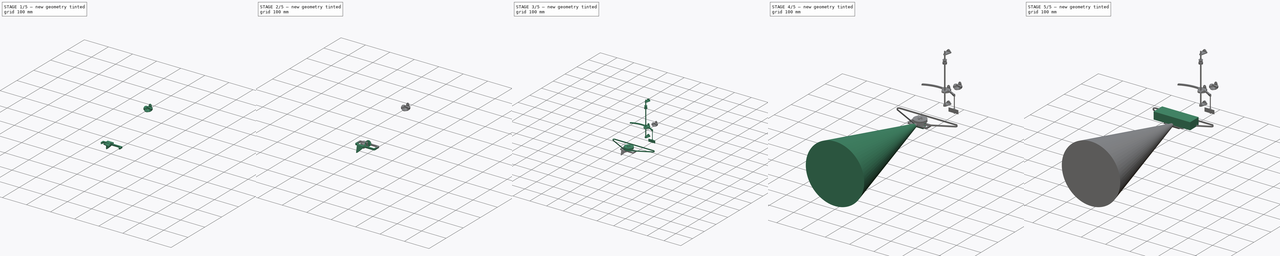
[diagram: build sequence overview — one tinted view per stage of 5, left to right]
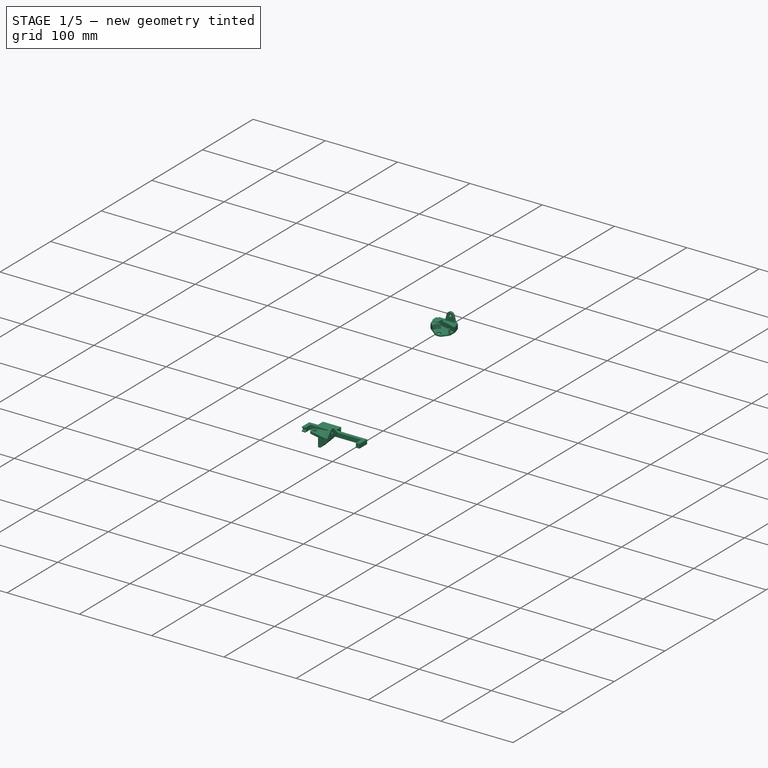
[diagram: stage 1 of 5 — iso view after this stage's code; geometry added in this stage tinted green]
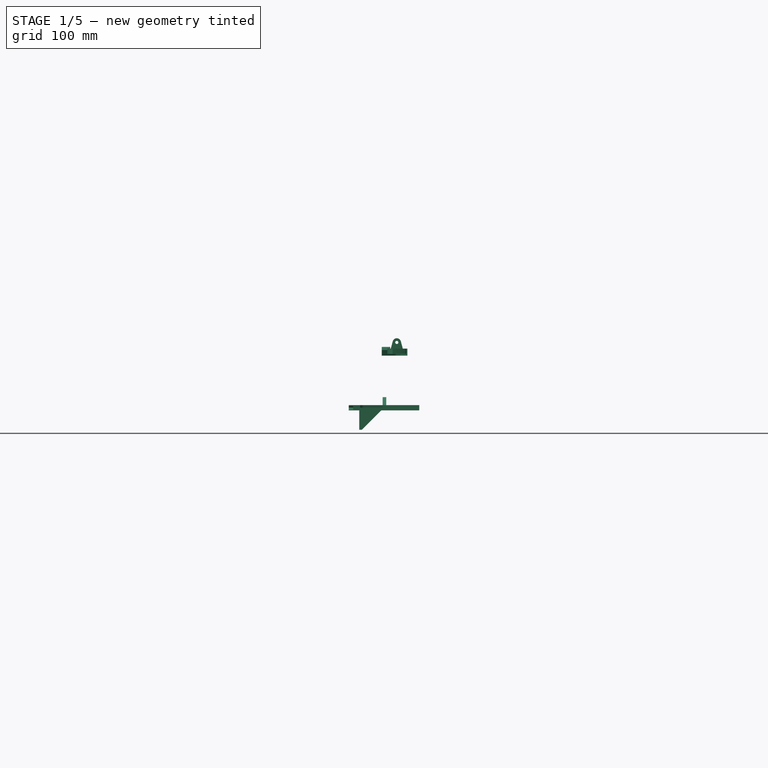
[diagram: stage 1 of 5 — front view after this stage's code; geometry added in this stage tinted green]
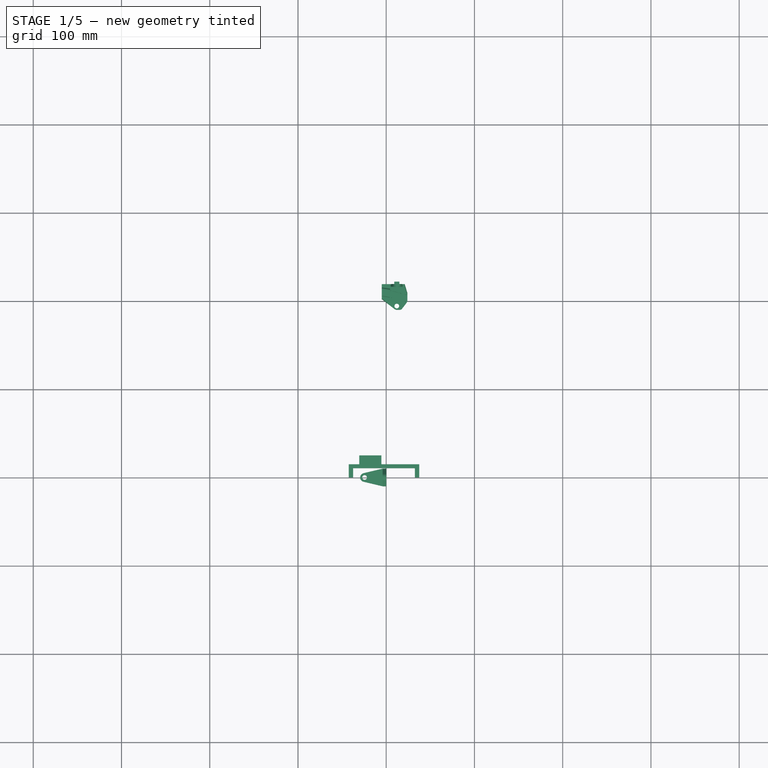
[diagram: stage 1 of 5 — top view after this stage's code; geometry added in this stage tinted green]
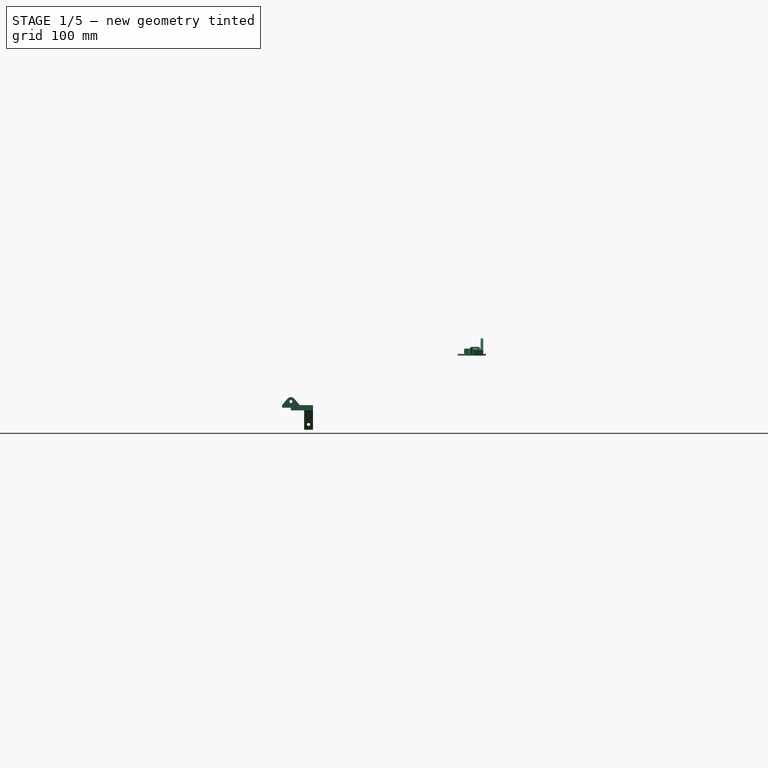
[diagram: stage 1 of 5 — right view after this stage's code; geometry added in this stage tinted green]
FCSTD DOCUMENT  (FreeCAD 1.1R20260414 (Git shallow))
Label: Pince_noisette
License: All rights reserved
LicenseURL: https://en.wikipedia.org/wiki/All_rights_reserved
objects: Sketcher::SketchObject×56, App::Point×42, Part::Feature×39, PartDesign::Pocket×26, PartDesign::Pad×22, PartDesign::Body×21, App::Part×21, PartDesign::Mirrored×16, App::LinkElement×8, PartDesign::Fillet×8, PartDesign::MultiTransform×7, App::Link×6, PartDesign::Chamfer×6, PartDesign::PolarPattern×5, PartDesign::Revolution×5, Part::FeaturePython×4, PartDesign::FeaturePython×2, Part::Part2DObjectPython×1, Part::Extrusion×1, PartDesign::Groove×1, +3 more types
note: 442 computed .brp shape members not serialized (recipe doc carries the construction recipe); baked Part::Feature solids carry a one-line shape summary decoded from their .brp

FEATURE [PartDesign::Body] Body093  label="Caisse de noisette"
  AllowCompound = false
  Group = -> [Sketch227,Pad114]
  Origin = -> Origin292
  Placement = pos=(55,0,-35) rot=(0,0,1;0rad)
  Tip = -> Pad114
FEATURE [PartDesign::FeaturePython] InternalInvoluteGear  label="InternalInvoluteGear002"  # WARN: FeaturePython — macro-defined, semantics opaque (R4)
  AttacherType = Attacher::AttachEngine3D
  AttachmentSupport = -> [Origin616]
  MapMode = 5
  Suppressed = false
  addendum_diameter = 258.8
  angular_backlash = 0
  backlash = 0
  clearance = 0.25
  double_helix = true
  head = -0.4
  head_fillet = 0
  height = 6
  helix_angle = 20
  module = 1
  num_teeth = 260
  numpoints = 20
  outside_diameter = 270
  pitch_diameter = 260
  pressure_angle = 20
  properties_from_tool = false
  reversed_backlash = false
  root_diameter = 262.5
  root_fillet = 0
  shift = 0
  simple = false
  thickness = 5
  transverse_pitch = 3.14159
  version = 1.3.0
  expr: angular_backlash = backlash / pitch_diameter * 360 ° / pi
FEATURE [PartDesign::FeaturePython] InvoluteGear002  label="InvoluteGear004"  # WARN: FeaturePython — macro-defined, semantics opaque (R4)
  AttacherType = Attacher::AttachEngine3D
  AttachmentOffset = pos=(0,0,0) rot=(1,0,0;3.14159rad)
  AttachmentSupport = -> [XZ_Plane383]
  MapMode = 5
  Placement = pos=(0,0,0) rot=(1,0,0;4.71239rad)
  Suppressed = false
  addendum_diameter = 22
  angular_backlash = 0
  axle_hole = true
  axle_holesize = 5.3
  backlash = 0
  clearance = 0.25
  double_helix = true
  head = 0
  head_fillet = 0
  height = 6
  helix_angle = 20
  module = 1
  num_teeth = 20
  numpoints = 20
  offset_hole = false
  offset_holeoffset = 0
  offset_holesize = 0
  pitch_diameter = 20
  pressure_angle = 20
  properties_from_tool = false
  reversed_backlash = false
  root_diameter = 17.5
  root_fillet = 0
  shift = 0
  simple = false
  transverse_pitch = 3.14159
  traverse_module = 1
  undercut = true
  version = 1.3.0
  expr: angular_backlash = backlash / pitch_diameter * 360 ° / pi
FEATURE [Sketcher::SketchObject] Sketch267
  ArcFitTolerance = 1e-06
  AttachmentSupport = -> [Origin620]
  ExternalTypes = [0]
  FullyConstrained = false
  MakeInternals = false
  MapMode = 5
  _ExternalGeoVersion = 1
  expr: Constraints[1] = 83 - 50
  expr: Constraints[2] = InternalInvoluteGear.addendum_diameter
  sketch-geometry (17):
    g0: Circle [constr] CenterX=-140 CenterY=-33 CenterZ=0 NormalX=0 NormalY=0 NormalZ=1 AngleXU=0 Radius=129.4
    g1: LineSegment StartX=0 StartY=12 StartZ=0 EndX=0 EndY=-17 EndZ=0
    g2: LineSegment StartX=0 StartY=-17 StartZ=0 EndX=-17 EndY=-17 EndZ=0
    g3: LineSegment StartX=-17 StartY=-17 StartZ=0 EndX=-28.1147 EndY=-2.59641 EndZ=0
    g4: LineSegment StartX=-29 StartY=5e-16 StartZ=0 EndX=-29 EndY=3.53275 EndZ=0
    g5: LineSegment StartX=-17.9414 StartY=12 StartZ=0 EndX=0 EndY=12 EndZ=0
    g6: GeomPoint X=-24.75 Y=0 Z=0
    g7: Circle CenterX=-24.75 CenterY=0 CenterZ=0 NormalX=0 NormalY=0 NormalZ=1 AngleXU=0 Radius=2.65
    g8: ArcOfCircle CenterX=-24.75 CenterY=0 CenterZ=0 NormalX=0 NormalY=0 NormalZ=1 AngleXU=0 Radius=4.25 StartAngle=3.14159 EndAngle=3.79881
    g9: GeomPoint [constr] X=-29 Y=-4 Z=0
    g10: ArcOfCircle [constr] CenterX=-22.0014 CenterY=5 CenterZ=0 NormalX=0 NormalY=0 NormalZ=1 AngleXU=0 Radius=7 StartAngle=1.5708 EndAngle=3.14159
    g11: GeomPoint [constr] X=-29 Y=12 Z=0
    g12: LineSegment StartX=-21.625 StartY=10.7361 StartZ=0 EndX=-27.8418 EndY=5.90081 EndZ=0
    g13: ArcOfCircle CenterX=-26 CenterY=3.53275 CenterZ=0 NormalX=0 NormalY=0 NormalZ=1 AngleXU=0 Radius=3 StartAngle=2.23184 EndAngle=3.14159
    g14: GeomPoint [constr] X=-29 Y=5 Z=0
    g15: ArcOfCircle CenterX=-17.9414 CenterY=6 CenterZ=0 NormalX=0 NormalY=0 NormalZ=1 AngleXU=0 Radius=6 StartAngle=1.5708 EndAngle=2.23184
    g16: GeomPoint [constr] X=-20 Y=12 Z=0
  constraints (38):
    c: DistanceX(g0,g-1) = 140
    c: DistanceY(g0,g-1) = 33
    c: Diameter(g0) = 258.8
    c: PointOnObject(g1,g-2)
    c: Coincident(g1,g2)
    c: Vertical(g4)
    c: DistanceY(g-1,g1) = 12
    c: DistanceX(g11,g1) = 29
    c: Horizontal(g5)
    c: Coincident(g5,g1)
    c: Coincident(g2,g3)
    c: Horizontal(g2)
    c: DistanceX(g6) = -24.75
    c: DistanceX(g2,g2) = 17
    c: DistanceY(g9,g6) = 4
    c: PointOnObject(g6,g-1)
    c: Diameter(g7) = 5.3
    c: Coincident(g7,g6)
    c: PointOnObject(g9,g4)
    c: Tangent(g4,g8) = 1.5708
    c: Coincident(g8,g6)
    c: PointOnObject(g11,g5)
    c: PointOnObject(g11,g4)
    c: DistanceY(g4,g14) = 5
    c: DistanceY(g1,g-1) = 17
    c: Vertical(g1)
    c: Tangent(g8,g3) = 1.5708
    c: PointOnObject(g14,g12)
    c: PointOnObject(g14,g4)
    c: Tangent(g12,g13) = -1.5708
    c: Tangent(g4,g13) = 1.5708
    c: Radius(g13) = 3
    c: PointOnObject(g16,g12)
    c: PointOnObject(g16,g5)
    c: Tangent(g12,g15) = -1.5708
    c: Tangent(g5,g15) = 1.5708
    c: Radius(g15) = 6
    c: DistanceX(g16,g-1) = 20
FEATURE [PartDesign::Pad] Pad135
  Direction = (0,0,1)
  Length = 8
  Length2 = 10
  Profile = -> Sketch267
  ReferenceAxis = -> Sketch267 [N_Axis]
  SideType = 0
  Suppressed = false
  Type = 0
  Type2 = 0
FEATURE [Sketcher::SketchObject] Sketch268
  ArcFitTolerance = 1e-06
  AttachmentSupport = -> [Pad135]
  ExternalGeometry = -> [Pad135]
  ExternalTypes = [0]
  FullyConstrained = true
  MakeInternals = false
  MapMode = 5
  Placement = pos=(0,0,8) rot=(0,0,1;0rad)
  _ExternalGeoVersion = 1
  expr: Constraints[2] = 83 - 50
  expr: Constraints[3] = InternalInvoluteGear.addendum_diameter + 0.3 mm + 11 mm
  expr: Constraints[4] = InternalInvoluteGear.addendum_diameter - 0.3 mm
  expr: Constraints[5] = InvoluteGear002.addendum_diameter + 0.3 mm
  sketch-geometry (5):
    g0: Circle CenterX=-140 CenterY=-33 CenterZ=0 NormalX=0 NormalY=0 NormalZ=1 AngleXU=0 Radius=135.05
    g1: ArcOfCircle CenterX=-140 CenterY=-33 CenterZ=0 NormalX=0 NormalY=0 NormalZ=1 AngleXU=0 Radius=129.25 StartAngle=0.33969 EndAngle=6.50124
    g2: ArcOfCircle CenterX=-24.75 CenterY=0 CenterZ=0 NormalX=0 NormalY=0 NormalZ=1 AngleXU=0 Radius=11.15 StartAngle=1.01538 EndAngle=5.82555
    g3: ArcOfCircle CenterX=-18.607 CenterY=9.8988 CenterZ=0 NormalX=0 NormalY=0 NormalZ=1 AngleXU=0 Radius=0.5 StartAngle=4.15698 EndAngle=6.62288
    g4: ArcOfCircle CenterX=-14.2988 CenterY=-5.14733 CenterZ=0 NormalX=0 NormalY=0 NormalZ=1 AngleXU=0 Radius=0.5 StartAngle=0.218055 EndAngle=2.68395
  constraints (13):
    c: Coincident(g1,g0)
    c: DistanceX(g0,g-1) = 140
    c: DistanceY(g0,g-1) = 33
    c: Diameter(g0) = 270.1
    c: Diameter(g1) = 258.5
    c: Diameter(g2) = 22.3
    c: Tangent(g1,g3) = -1.5708
    c: Tangent(g2,g3) = 1.5708
    c: Tangent(g2,g4) = 1.5708
    c: Tangent(g1,g4) = -1.5708
    c: Equal(g4,g3)
    c: Radius(g3) = 0.5
    c: Coincident(g2,g-3)
FEATURE [PartDesign::Pocket] Pocket038
  BaseFeature = -> Pad135
  Direction = (0,0,-1)
  Length = 6
  Length2 = 5
  Profile = -> Sketch268
  ReferenceAxis = -> Sketch268 [N_Axis]
  SideType = 0
  Suppressed = false
  Type = 0
  Type2 = 0
FEATURE [Sketcher::SketchObject] Sketch270
  ArcFitTolerance = 1e-06
  AttachmentSupport = -> [Origin620]
  ExternalTypes = [0]
  FullyConstrained = true
  MakeInternals = false
  MapMode = 5
  Placement = pos=(0,0,0) rot=(0.57735,0.57735,0.57735;2.0944rad)
  _ExternalGeoVersion = 1
  sketch-geometry (6):
    g0: LineSegment StartX=-6.79321 StartY=8 StartZ=0 EndX=-4.58815 EndY=16.2294 EndZ=0
    g1: LineSegment StartX=-6.79321 StartY=8 StartZ=0 EndX=-1.87e-14 EndY=8 EndZ=0
    g2: LineSegment StartX=-1.87e-14 StartY=8 StartZ=0 EndX=-3e-16 EndY=13.25 EndZ=0
    g3: ArcOfCircle CenterX=0 CenterY=15 CenterZ=0 NormalX=0 NormalY=0 NormalZ=1 AngleXU=0 Radius=1.75 StartAngle=1.5708 EndAngle=4.71239
    g4: ArcOfCircle CenterX=0 CenterY=15 CenterZ=0 NormalX=0 NormalY=0 NormalZ=1 AngleXU=0 Radius=4.75 StartAngle=1.5708 EndAngle=2.87979
    g5: LineSegment StartX=3e-16 StartY=19.75 StartZ=0 EndX=1e-16 EndY=16.75 EndZ=0
  constraints (17):
    c: PointOnObject(g0,g-3)
    c: Coincident(g1,g0)
    c: Symmetric(g-3,g-3,g1)
    c: Coincident(g2,g1)
    c: PointOnObject(g2,g-2)
    c: PointOnObject(g3,g-2)
    c: Coincident(g3,g2)
    c: PointOnObject(g3,g-2)
    c: Coincident(g4,g3)
    c: PointOnObject(g4,g-2)
    c: Coincident(g5,g4)
    c: Coincident(g5,g3)
    c: Tangent(g4,g0) = 1.5708
    c: Angle(g1,g0) = 1.309
    c: DistanceY(g5,g5) = 3
    c: Diameter(g3) = 3.5
    c: DistanceY(g-1,g3) = 15
FEATURE [PartDesign::Pad] Pad136
  BaseFeature = -> Pocket038
  Direction = (1,0,0)
  Length = 3
  Length2 = 10
  Profile = -> Sketch270
  ReferenceAxis = -> Sketch270 [N_Axis]
  Reversed = true
  SideType = 0
  Suppressed = false
  Type = 0
  Type2 = 0
FEATURE [PartDesign::Mirrored] Mirrored016
  BaseFeature = -> Pad136
  MirrorPlane = -> XZ_Plane386
  Originals = -> [Pad136]
  Refine = true
  Suppressed = false
  TransformMode = 0
FEATURE [App::Point] Origin628  label="Origine201"
  Role = Origin
FEATURE [Sketcher::SketchObject] Sketch
  ArcFitTolerance = 1e-06
  AttachmentSupport = -> [Origin627]
  ExternalTypes = [0]
  FullyConstrained = true
  MakeInternals = false
  MapMode = 5
  Placement = pos=(0,0,0) rot=(0.57735,-0.57735,-0.57735;2.0944rad)
  _ExternalGeoVersion = 1
  sketch-geometry (7):
    g0: Circle CenterX=0 CenterY=0 CenterZ=0 NormalX=0 NormalY=0 NormalZ=1 AngleXU=0 Radius=1.75
    g1: ArcOfCircle CenterX=0 CenterY=0 CenterZ=0 NormalX=0 NormalY=0 NormalZ=1 AngleXU=0 Radius=5 StartAngle=0.707515 EndAngle=2.43408
    g2: LineSegment StartX=-3.7999 StartY=3.24974 StartZ=0 EndX=-10 EndY=-4 EndZ=0
    g3: LineSegment StartX=-10 StartY=-4 StartZ=0 EndX=-10 EndY=-7 EndZ=0
    g4: LineSegment StartX=-10 StartY=-7 StartZ=0 EndX=10 EndY=-7 EndZ=0
    g5: LineSegment StartX=10 StartY=-7 StartZ=0 EndX=10 EndY=-4 EndZ=0
    g6: LineSegment StartX=10 StartY=-4 StartZ=0 EndX=3.7999 EndY=3.24974 EndZ=0
  constraints (18):
    c: Coincident(g0,g-1)
    c: Diameter(g0) = 3.5
    c: Coincident(g1,g0)
    c: Coincident(g3,g2)
    c: Vertical(g3)
    c: Coincident(g4,g3)
    c: Horizontal(g4)
    c: Coincident(g5,g4)
    c: Vertical(g5)
    c: Coincident(g6,g5)
    c: Tangent(g6,g1) = -1.5708
    c: Tangent(g2,g1) = -1.5708
    c: Equal(g2,g6)
    c: Horizontal(g2,g5)
    c: DistanceY(g2,g0) = 4
    c: Radius(g1) = 5
    c: DistanceX(g4,g4) = 20
    c: DistanceY(g3,g3) = 3
FEATURE [PartDesign::Pad] Pad
  Direction = (-1,0,0)
  Length = 4
  Length2 = 10
  Profile = -> Sketch
  ReferenceAxis = -> Sketch [N_Axis]
  SideType = 0
  Suppressed = false
  Type = 0
  Type2 = 0
FEATURE [Sketcher::SketchObject] Sketch278
  ArcFitTolerance = 1e-06
  AttachmentSupport = -> [Pad]
  ExternalGeometry = -> [Pad]
  ExternalTypes = [0]
  FullyConstrained = true
  MakeInternals = false
  MapMode = 5
  Placement = pos=(0,0,-7) rot=(1,0,0;3.14159rad)
  _ExternalGeoVersion = 1
  sketch-geometry (4):
    g0: LineSegment StartX=-4 StartY=10 StartZ=0 EndX=-25.6537 EndY=4.86508 EndZ=0
    g1: LineSegment StartX=-4 StartY=-10 StartZ=0 EndX=-25.6537 EndY=-4.86508 EndZ=0
    g2: ArcOfCircle CenterX=-24.5 CenterY=0 CenterZ=0 NormalX=0 NormalY=0 NormalZ=1 AngleXU=0 Radius=5 StartAngle=1.80363 EndAngle=4.47955
    g3: Circle CenterX=-24.5 CenterY=0 CenterZ=0 NormalX=0 NormalY=0 NormalZ=1 AngleXU=0 Radius=2.65
  constraints (9):
    c: Coincident(g0,g-3)
    c: Coincident(g1,g-3)
    c: PointOnObject(g2,g-1)
    c: Tangent(g2,g1) = 1.5708
    c: Tangent(g2,g0) = -1.5708
    c: DistanceX(g2,g-1) = 24.5
    c: Radius(g2) = 5
    c: Diameter(g3) = 5.3
    c: Coincident(g3,g2)
FEATURE [PartDesign::Pad] Pad143
  BaseFeature = -> Pad
  Direction = (0,0,-1)
  Length = 3
  Length2 = 10
  Profile = -> Sketch278
  ReferenceAxis = -> Sketch278 [N_Axis]
  Reversed = true
  SideType = 0
  Suppressed = false
  Type = 0
  Type2 = 0
FEATURE [PartDesign::Body] Body118  label="couroie"
  AllowCompound = false
  Group = -> [Sketch282,Pad145,Mirrored]
  Origin = -> Origin631
  Placement = pos=(0,0,6.5) rot=(0,0,-1;4.71239rad)
  Tip = -> Mirrored
FEATURE [App::Point] Origin634  label="Origine207"
  Role = Origin
FEATURE [App::Point] Origin636  label="Origine209"
  Role = Origin
FEATURE [Sketcher::SketchObject] Sketch283
  ArcFitTolerance = 1e-06
  AttachmentSupport = -> [Origin635]
  ExternalTypes = [0]
  FullyConstrained = true
  MakeInternals = false
  MapMode = 5
  _ExternalGeoVersion = 1
  sketch-geometry (8):
    g0: LineSegment StartX=-42.5 StartY=15 StartZ=0 EndX=-42.5 EndY=0 EndZ=0
    g1: LineSegment StartX=37.5 StartY=0 StartZ=0 EndX=37.5 EndY=15 EndZ=0
    g2: LineSegment StartX=37.5 StartY=15 StartZ=0 EndX=-42.5 EndY=15 EndZ=0
    g3: LineSegment StartX=-37.5 StartY=10.5 StartZ=0 EndX=-37.5 EndY=0 EndZ=0
    g4: LineSegment StartX=32.5 StartY=10.5 StartZ=0 EndX=-37.5 EndY=10.5 EndZ=0
    g5: LineSegment StartX=-42.5 StartY=0 StartZ=0 EndX=-37.5 EndY=0 EndZ=0
    g6: LineSegment StartX=37.5 StartY=0 StartZ=0 EndX=32.5 EndY=0 EndZ=0
    g7: LineSegment StartX=32.5 StartY=0 StartZ=0 EndX=32.5 EndY=10.5 EndZ=0
  constraints (24):
    c: Coincident(g1,g2)
    c: Coincident(g2,g0)
    c: Vertical(g1)
    c: Horizontal(g2)
    c: Distance(g0,g1) = 80
    c: Distance(g0,g2) = 15
    c: Coincident(g4,g3)
    c: Vertical(g3)
    c: Horizontal(g4)
    c: DistanceY(g3,g3) = 10.5
    c: PointOnObject(g0,g-1)
    c: Coincident(g5,g3)
    c: Horizontal(g5)
    c: Coincident(g0,g5)
    c: Vertical(g0)
    c: DistanceX(g3,g-1) = 37.5
    c: DistanceX(g5,g5) = 5
    c: PointOnObject(g6,g-1)
    c: PointOnObject(g6,g-1)
    c: Coincident(g7,g6)
    c: Vertical(g7)
    c: Coincident(g1,g6)
    c: Coincident(g4,g7)
    c: Equal(g6,g5)
FEATURE [PartDesign::Pad] Pad146
  Direction = (0,0,1)
  Length = 10
  Length2 = 10
  Profile = -> Sketch283
  ReferenceAxis = -> Sketch283 [N_Axis]
  Reversed = true
  SideType = 0
  Suppressed = false
  Type = 0
  Type2 = 0
FEATURE [App::Point] Origin638  label="Origine211"
  Role = Origin
FEATURE [Sketcher::SketchObject] Sketch284
  ArcFitTolerance = 1e-06
  AttachmentSupport = -> [Pad146]
  ExternalGeometry = -> [Pad146]
  ExternalTypes = [0]
  FullyConstrained = true
  MakeInternals = false
  MapMode = 5
  Placement = pos=(0,15,0) rot=(0,0.707107,0.707107;3.14159rad)
  _ExternalGeoVersion = 1
  sketch-geometry (6):
    g0: LineSegment StartX=5.5 StartY=0 StartZ=0 EndX=5.5 EndY=-10 EndZ=0
    g1: LineSegment StartX=5.5 StartY=-10 StartZ=0 EndX=27.5 EndY=-32 EndZ=0
    g2: LineSegment StartX=30.5 StartY=-32 StartZ=0 EndX=30.5 EndY=0 EndZ=0
    g3: LineSegment StartX=30.5 StartY=0 StartZ=0 EndX=5.5 EndY=0 EndZ=0
    g4: GeomPoint X=30.5 Y=-26 Z=0
    g5: LineSegment StartX=27.5 StartY=-32 StartZ=0 EndX=30.5 EndY=-32 EndZ=0
  constraints (17):
    c: PointOnObject(g0,g-1)
    c: Vertical(g0)
    c: Coincident(g0,g1)
    c: Vertical(g2)
    c: Coincident(g2,g3)
    c: Coincident(g3,g0)
    c: Horizontal(g3)
    c: DistanceX(g3,g3) = 25
    c: DistanceX(g-1,g2) = 30.5
    c: PointOnObject(g0,g-3)
    c: PointOnObject(g4,g2)
    c: DistanceY(g4,g-1) = 26
    c: Coincident(g5,g1)
    c: Coincident(g2,g5)
    c: Horizontal(g5)
    c: DistanceY(g2,g4) = 6
    c: DistanceX(g5,g5) = 3
FEATURE [PartDesign::Pad] Pad147
  BaseFeature = -> Pad146
  Direction = (0,1,-2e-16)
  Length = 10
  Length2 = 10
  Profile = -> Sketch284
  ReferenceAxis = -> Sketch284 [N_Axis]
  SideType = 0
  Suppressed = false
  Type = 0
  Type2 = 0
FEATURE [PartDesign::Body] Body120  label="support_mobile_servo_A"
  AllowCompound = false
  Group = -> [Sketch285,Pad148,Sketch286,Pocket047,Chamfer002,Fillet,Fillet007,Mirrored020]
  Origin = -> Origin639
  Placement = pos=(-31,0,-10) rot=(0,0,1;0rad)
  Tip = -> Mirrored020
FEATURE [Sketcher::SketchObject] Sketch290
  ArcFitTolerance = 1e-06
  AttachmentOffset = pos=(0,0,17) rot=(0,0,1;0rad)
  AttachmentSupport = -> [Origin620]
  ExternalGeometry = -> [Mirrored016]
  ExternalTypes = [0,0]
  FullyConstrained = true
  MakeInternals = false
  MapMode = 5
  Placement = pos=(0,-17,3.8e-15) rot=(1,0,0;1.5708rad)
  _ExternalGeoVersion = 1
  sketch-geometry (8):
    g0: ArcOfCircle CenterX=-5.90115 CenterY=8 CenterZ=0 NormalX=0 NormalY=0 NormalZ=1 AngleXU=0 Radius=2 StartAngle=2e-16 EndAngle=1.5708
    g1: ArcOfCircle CenterX=-11.7442 CenterY=8 CenterZ=0 NormalX=0 NormalY=0 NormalZ=1 AngleXU=0 Radius=2 StartAngle=1.5708 EndAngle=3.14159
    g2: LineSegment StartX=-5.90115 StartY=10 StartZ=0 EndX=-11.7442 EndY=10 EndZ=0
    g3: LineSegment StartX=-13.7442 StartY=8 StartZ=0 EndX=-11.7442 EndY=8 EndZ=0
    g4: LineSegment StartX=-11.7442 StartY=8 StartZ=0 EndX=-11.7442 EndY=8.3 EndZ=0
    g5: LineSegment StartX=-5.90115 StartY=8 StartZ=0 EndX=-5.90115 EndY=8.3 EndZ=0
    g6: LineSegment StartX=-11.7442 StartY=8.3 StartZ=0 EndX=-5.90115 EndY=8.3 EndZ=0
    g7: LineSegment StartX=-5.90115 StartY=8 StartZ=0 EndX=-3.90115 EndY=8 EndZ=0
  constraints (20):
    c: Tangent(g0,g2) = -1.5708
    c: Tangent(g1,g2) = -1.5708
    c: Coincident(g0,g-3)
    c: Coincident(g1,g-4)
    c: Radius(g0) = 2
    c: PointOnObject(g0,g-3)
    c: Equal(g0,g1)
    c: Coincident(g1,g3)
    c: Coincident(g7,g0)
    c: Coincident(g4,g1)
    c: Vertical(g4)
    c: Coincident(g5,g0)
    c: Coincident(g6,g4)
    c: Coincident(g6,g5)
    c: Horizontal(g6)
    c: Horizontal(g3)
    c: Coincident(g3,g4)
    c: Coincident(g7,g5)
    c: Vertical(g5)
    c: DistanceY(g4,g4) = 0.3
FEATURE [Part::DatumLine] DatumLine
  AttacherType = Attacher::AttachEngineLine
  AttachmentOffset = pos=(-140,-33,0) rot=(0,0,1;0rad)
  AttachmentSupport = -> [Origin620]
  MapMode = 18
  Placement = pos=(-140,-33,0) rot=(0,0,1;0rad)
FEATURE [PartDesign::Revolution] Revolution
  Angle = 4
  Angle2 = 0
  Axis = (0,0,1)
  Base = (-140,-33,0)
  BaseFeature = -> Mirrored016
  FuseOrder = 0
  Profile = -> Sketch290
  ReferenceAxis = -> DatumLine
  Suppressed = false
  Type = 0
FEATURE [PartDesign::Body] Body122  label="roulement_tige"
  AllowCompound = false
  Group = -> [Sketch293,Revolution004]
  Origin = -> Origin643
  Placement = pos=(115.5,83,5) rot=(0,0,1;0rad)
  Tip = -> Revolution004
FEATURE [PartDesign::Chamfer] Chamfer004
  Angle = 45
  Base = -> Revolution [Edge2]
  BaseFeature = -> Revolution
  ChamferType = 1
  FlipDirection = false
  Size = 10
  Size2 = 3
  SupportTransform = false
  Suppressed = false
  UseAllEdges = false
FEATURE [Sketcher::SketchObject] Sketch294
  ArcFitTolerance = 1e-06
  AttachmentSupport = -> [Pad147]
  ExternalTypes = [0]
  FullyConstrained = true
  MakeInternals = false
  MapMode = 5
  Placement = pos=(-42.5,0,0) rot=(0.57735,-0.57735,-0.57735;2.0944rad)
  _ExternalGeoVersion = 1
  sketch-geometry (4):
    g0: LineSegment StartX=0 StartY=0 StartZ=0 EndX=-30 EndY=0 EndZ=0
    g1: LineSegment StartX=-30 StartY=0 StartZ=0 EndX=-30 EndY=-4 EndZ=0
    g2: LineSegment StartX=-30 StartY=-4 StartZ=0 EndX=0 EndY=-4 EndZ=0
    g3: LineSegment StartX=0 StartY=-4 StartZ=0 EndX=0 EndY=0 EndZ=0
  constraints (11):
    c: Coincident(g0,g1)
    c: Coincident(g1,g2)
    c: Coincident(g2,g3)
    c: Coincident(g3,g0)
    c: Horizontal(g0)
    c: Horizontal(g2)
    c: Vertical(g1)
    c: Vertical(g3)
    c: Distance(g1,g3) = 30
    c: Distance(g0,g2) = 4
    c: Coincident(g0,g-1)
FEATURE [PartDesign::Pocket] Pocket051
  BaseFeature = -> Pad147
  Direction = (1,0,0)
  Length = 5
  Length2 = 5
  Profile = -> Sketch294
  ReferenceAxis = -> Sketch294 [N_Axis]
  SideType = 0
  Suppressed = false
  Type = 1
  Type2 = 0
FEATURE [PartDesign::Pocket] Pocket048  label="insert_tension"
  BaseFeature = -> Pocket051
  Direction = (1,0,0)
  Length = 5
  Length2 = 5
  Profile = -> Sketch287
  ReferenceAxis = -> Sketch287 [N_Axis]
  SideType = 0
  Suppressed = false
  Type = 0
  Type2 = 0
FEATURE [Sketcher::SketchObject] Sketch288
  ArcFitTolerance = 1e-06
  AttachmentSupport = -> [Pocket048]
  ExternalTypes = [0]
  FullyConstrained = true
  MakeInternals = false
  MapMode = 5
  Placement = pos=(-30.5,0,0) rot=(0.57735,-0.57735,-0.57735;2.0944rad)
  _ExternalGeoVersion = 1
  sketch-geometry (1):
    g0: Circle CenterX=-20 CenterY=-26 CenterZ=0 NormalX=0 NormalY=0 NormalZ=1 AngleXU=0 Radius=1.75
  constraints (3):
    c: Diameter(g0) = 3.5
    c: DistanceY(g0,g-1) = 26
    c: DistanceX(g0,g-1) = 20
FEATURE [PartDesign::Pocket] Pocket049  label="vis_support"
  BaseFeature = -> Pocket048
  Direction = (1,0,0)
  Length = 5
  Length2 = 5
  Profile = -> Sketch288
  ReferenceAxis = -> Sketch288 [N_Axis]
  SideType = 0
  Suppressed = false
  Type = 1
  Type2 = 0
FEATURE [PartDesign::Body] Body119  label="Support_servo_pince_noisette"
  AllowCompound = false
  Group = -> [Sketch283,Pad146,Sketch284,Pad147,Sketch287,Sketch294,Pocket051,Pocket048,Sketch288,Pocket049,Sketch289,Pocket050,Chamfer003,Fillet008,Fillet009,Mirrored021]
  Origin = -> Origin635
  Tip = -> Mirrored021
FEATURE [App::Part] Part044  label="Support_servo"
  Group = -> [Body119,Body120,Body123]
  Origin = -> Origin637
  Placement = pos=(0,0,-14) rot=(0,0,1;0rad)
FEATURE [App::Part] Part007  label="servo_DS3218MG001"
  Group = -> [Part__Feature003,Part__Feature004,Part__Feature005,Body010,Screw004,Body117,Body118,Part044]
  Origin = -> Origin017
  Placement = pos=(-73,75,157) rot=(0,-1,0;3.14159rad)
FEATURE [PartDesign::Fillet] Fillet010
  Base = -> Chamfer004 [Edge66,Edge18]
  BaseFeature = -> Chamfer004
  Radius = 2
  SupportTransform = false
  Suppressed = false
  UseAllEdges = false
FEATURE [Sketcher::SketchObject] Sketch297
  ArcFitTolerance = 1e-06
  AttachmentSupport = -> [Origin620]
  ExternalTypes = [0]
  FullyConstrained = true
  MakeInternals = false
  MapMode = 5
  Placement = pos=(0,0,0) rot=(0.57735,0.57735,0.57735;2.0944rad)
  _ExternalGeoVersion = 1
  sketch-geometry (4):
    g0: LineSegment StartX=-2.9 StartY=0 StartZ=0 EndX=2.9 EndY=0 EndZ=0
    g1: LineSegment StartX=2.9 StartY=0 StartZ=0 EndX=2.9 EndY=2 EndZ=0
    g2: LineSegment StartX=2.9 StartY=2 StartZ=0 EndX=-2.9 EndY=2 EndZ=0
    g3: LineSegment StartX=-2.9 StartY=2 StartZ=0 EndX=-2.9 EndY=0 EndZ=0
  constraints (11):
    c: Coincident(g0,g1)
    c: Coincident(g1,g2)
    c: Coincident(g2,g3)
    c: Coincident(g3,g0)
    c: Horizontal(g0)
    c: Vertical(g1)
    c: Vertical(g3)
    c: PointOnObject(g0,g-1)
    c: Symmetric(g1,g2,g-2)
    c: DistanceX(g2,g2) = 5.8
    c: DistanceY(g1,g1) = 2
FEATURE [PartDesign::Pad] Pad152
  BaseFeature = -> Fillet010
  Direction = (1,0,0)
  Length = 3
  Length2 = 10
  Profile = -> Sketch297
  ReferenceAxis = -> Sketch297 [N_Axis]
  SideType = 0
  Suppressed = false
  Type = 0
  Type2 = 0
FEATURE [PartDesign::Body] Body113  label="Support_bras_pince_noisette"
  AllowCompound = false
  Group = -> [Sketch267,Pad135,Sketch268,Pocket038,Sketch270,Pad136,Mirrored016,Sketch290,DatumLine,Revolution,Chamfer004,Fillet010,Sketch297,Pad152]
  Origin = -> Origin620
  Placement = pos=(140,83,52) rot=(0,0,1;0rad)
  Tip = -> Pad152
FEATURE [Part::FeaturePython] Clone001  label="Support_bras_pince_noisette_G"  # Draft clone (typed FeaturePython)
  AttacherType = Attacher::AttachEngine3D
  ForceCompound = false
  Fuse = false
  Objects = -> [Body113]
  Placement = pos=(12,218,52) rot=(0,0,-1;1.5708rad)
  Scale = (-1,1,1)
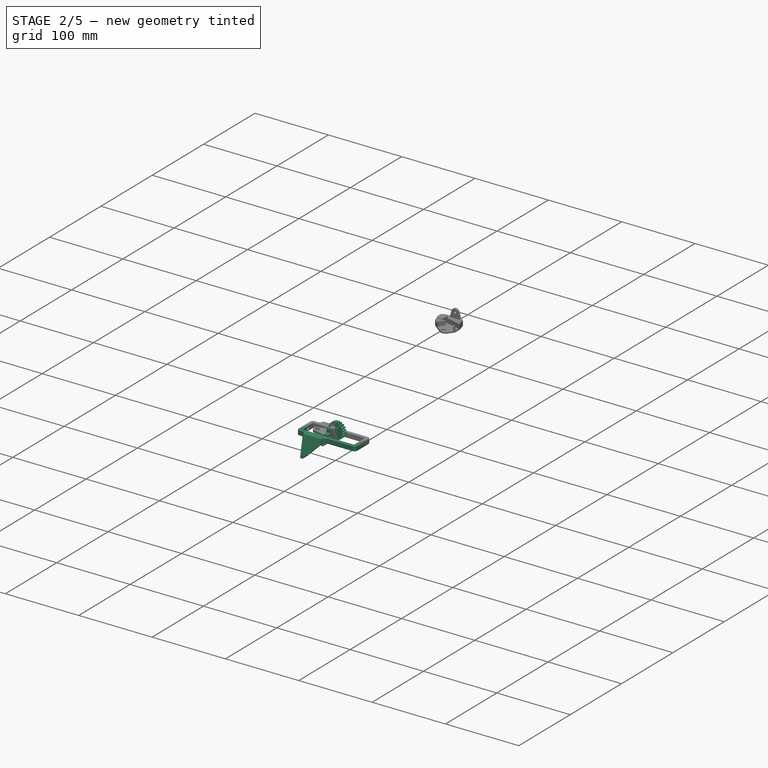
[diagram: stage 2 of 5 — iso view after this stage's code; geometry added in this stage tinted green]
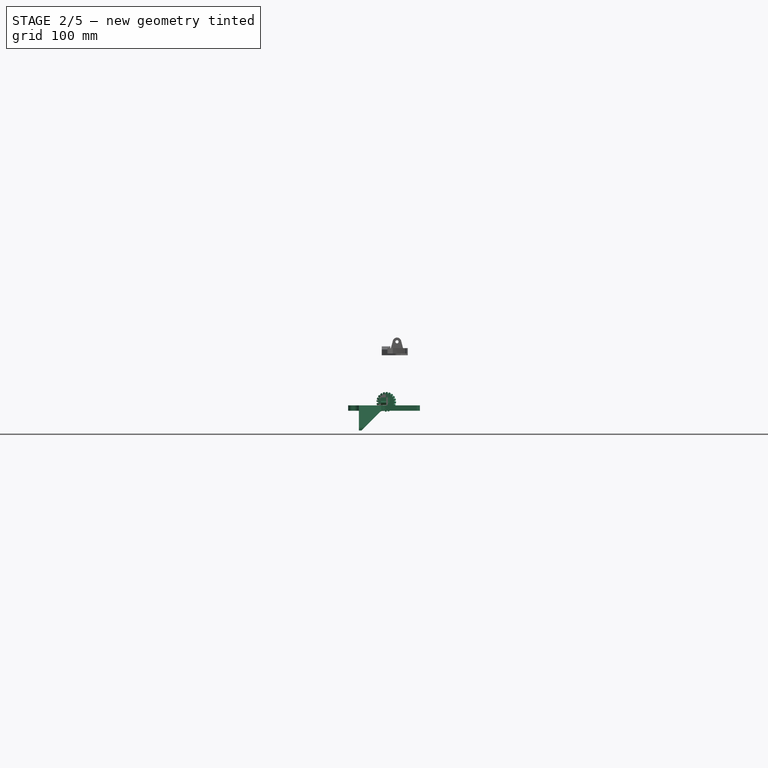
[diagram: stage 2 of 5 — front view after this stage's code; geometry added in this stage tinted green]
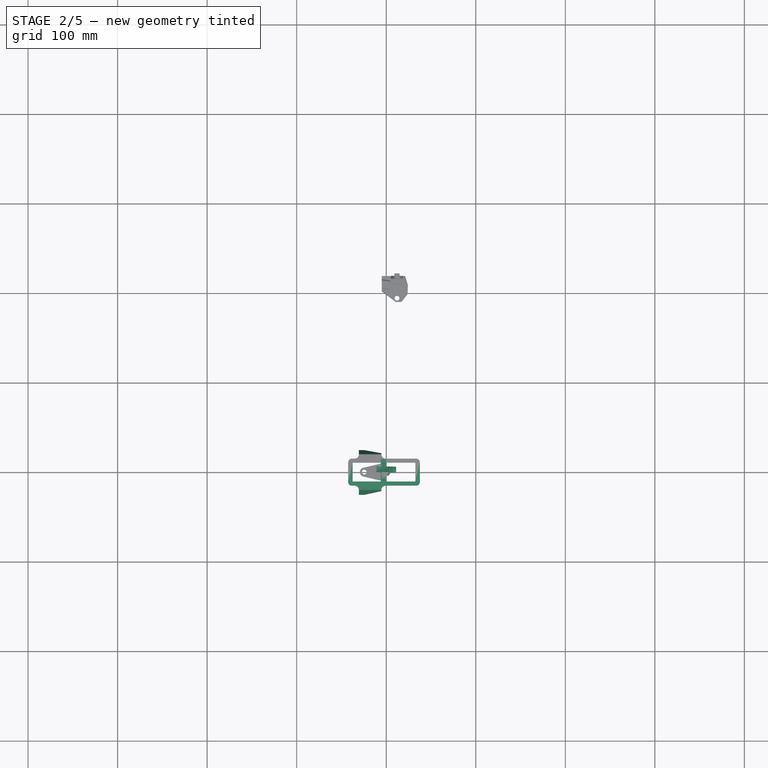
[diagram: stage 2 of 5 — top view after this stage's code; geometry added in this stage tinted green]
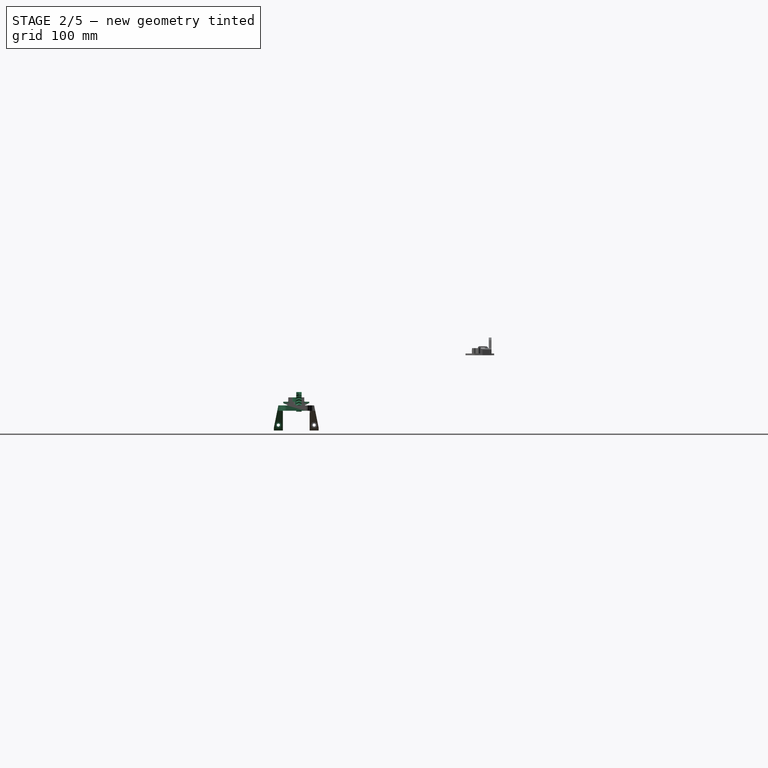
[diagram: stage 2 of 5 — right view after this stage's code; geometry added in this stage tinted green]
FEATURE [PartDesign::Body] Body114  label="plaque_bras"
  AllowCompound = false
  Group = -> [Sketch271,Pad137,Mirrored017,Sketch275,Pocket,Chamfer,Chamfer001]
  Origin = -> Origin622
  Placement = pos=(106,128.6,-52) rot=(0,0,1;0rad)
  Tip = -> Chamfer001
FEATURE [App::Part] Part027  label="Bras"
  Group = -> [Body112,Body114,Screw]
  Origin = -> Origin618
  Placement = pos=(0,0,54) rot=(0,0,1;0rad)
FEATURE [Sketcher::SketchObject] Sketch276
  ArcFitTolerance = 1e-06
  AttachmentSupport = -> [Origin614]
  ExternalTypes = [0]
  FullyConstrained = true
  MakeInternals = false
  MapMode = 5
  Placement = pos=(0,0,0) rot=(0.57735,-0.57735,-0.57735;2.0944rad)
  _ExternalGeoVersion = 1
  sketch-geometry (1):
    g0: Circle CenterX=-3 CenterY=0 CenterZ=0 NormalX=0 NormalY=0 NormalZ=1 AngleXU=0 Radius=1.75
  constraints (3):
    c: PointOnObject(g0,g-1)
    c: Diameter(g0) = 3.5
    c: DistanceX(g0,g-1) = 3
FEATURE [PartDesign::Pocket] Pocket042  label="vis"
  BaseFeature = -> InvoluteGear002
  Direction = (1,0,0)
  Length = 5
  Length2 = 5
  Placement = pos=(0,0,0) rot=(1,0,0;4.71239rad)
  Profile = -> Sketch276
  ReferenceAxis = -> Sketch276 [N_Axis]
  Reversed = true
  SideType = 0
  Suppressed = false
  Type = 1
  Type2 = 0
FEATURE [Sketcher::SketchObject] Sketch277
  ArcFitTolerance = 1e-06
  AttachmentOffset = pos=(0,0,11) rot=(0,0,1;0rad)
  AttachmentSupport = -> [Origin614]
  ExternalTypes = [0]
  FullyConstrained = true
  MakeInternals = false
  MapMode = 5
  Placement = pos=(-11,0,0) rot=(0.57735,-0.57735,-0.57735;2.0944rad)
  _ExternalGeoVersion = 1
  sketch-geometry (1):
    g0: Circle CenterX=-3 CenterY=0 CenterZ=0 NormalX=0 NormalY=0 NormalZ=1 AngleXU=0 Radius=2
  constraints (3):
    c: PointOnObject(g0,g-1)
    c: DistanceX(g0,g-1) = 3
    c: Diameter(g0) = 4
FEATURE [PartDesign::Pocket] Pocket043  label="insert"
  BaseFeature = -> Pocket042
  Direction = (1,0,0)
  Length = 9
  Length2 = 5
  Placement = pos=(0,0,0) rot=(1,0,0;4.71239rad)
  Profile = -> Sketch277
  ReferenceAxis = -> Sketch277 [N_Axis]
  SideType = 0
  Suppressed = false
  Type = 0
  Type2 = 0
FEATURE [App::Point] Origin640  label="Origine213"
  Role = Origin
FEATURE [Sketcher::SketchObject] Sketch285
  ArcFitTolerance = 1e-06
  AttachmentSupport = -> [Origin639]
  ExternalTypes = [0]
  FullyConstrained = true
  MakeInternals = false
  MapMode = 5
  Placement = pos=(0,0,0) rot=(0.57735,-0.57735,-0.57735;2.0944rad)
  _ExternalGeoVersion = 1
  sketch-geometry (7):
    g0: LineSegment StartX=-14.5 StartY=0 StartZ=0 EndX=-9 EndY=0 EndZ=0
    g1: LineSegment StartX=-9 StartY=0 StartZ=0 EndX=-9 EndY=5 EndZ=0
    g2: LineSegment StartX=-9 StartY=5 StartZ=0 EndX=0 EndY=5 EndZ=0
    g3: LineSegment StartX=0 StartY=0 StartZ=0 EndX=0 EndY=-3.5 EndZ=0
    g4: LineSegment StartX=0 StartY=-3.5 StartZ=0 EndX=-14.5 EndY=-3.5 EndZ=0
    g5: LineSegment StartX=-14.5 StartY=-3.5 StartZ=0 EndX=-14.5 EndY=0 EndZ=0
    g6: LineSegment StartX=0 StartY=5 StartZ=0 EndX=0 EndY=0 EndZ=0
  constraints (20):
    c: PointOnObject(g0,g-1)
    c: PointOnObject(g0,g-1)
    c: Coincident(g0,g1)
    c: Vertical(g1)
    c: Coincident(g1,g2)
    c: Horizontal(g2)
    c: Coincident(g-1,g3)
    c: PointOnObject(g3,g-2)
    c: Coincident(g3,g4)
    c: Horizontal(g4)
    c: Coincident(g4,g5)
    c: Coincident(g5,g0)
    c: Vertical(g5)
    c: DistanceY(g3,g3) = 3.5
    c: DistanceX(g4,g4) = 14.5
    c: DistanceX(g1,g-1) = 9
    c: Coincident(g6,g2)
    c: Coincident(g6,g3)
    c: Vertical(g6)
    c: DistanceY(g6,g6) = 5
FEATURE [PartDesign::Pad] Pad148
  Direction = (-1,0,0)
  Length = 6
  Length2 = 10
  Profile = -> Sketch285
  ReferenceAxis = -> Sketch285 [N_Axis]
  SideType = 0
  Suppressed = false
  Type = 0
  Type2 = 0
FEATURE [Sketcher::SketchObject] Sketch286
  ArcFitTolerance = 1e-06
  AttachmentSupport = -> [Pad148]
  ExternalTypes = [0,0]
  FullyConstrained = true
  MakeInternals = false
  MapMode = 5
  Placement = pos=(0,0,5) rot=(0,0,1;0rad)
  _ExternalGeoVersion = 1
  sketch-geometry (1):
    g0: Circle CenterX=-3 CenterY=5 CenterZ=0 NormalX=0 NormalY=0 NormalZ=1 AngleXU=0 Radius=2
  constraints (3):
    c: Diameter(g0) = 4
    c: DistanceY(g-1,g0) = 5
    c: DistanceX(g0,g-1) = 3
FEATURE [PartDesign::Pocket] Pocket047
  BaseFeature = -> Pad148
  Direction = (0,0,-1)
  Length = 13
  Length2 = 5
  Profile = -> Sketch286
  ReferenceAxis = -> Sketch286 [N_Axis]
  SideType = 0
  Suppressed = false
  Type = 0
  Type2 = 0
FEATURE [PartDesign::Chamfer] Chamfer002
  Angle = 45
  Base = -> Pocket047 [Edge5]
  BaseFeature = -> Pocket047
  ChamferType = 1
  FlipDirection = false
  Size = 2
  Size2 = 6
  SupportTransform = false
  Suppressed = false
  UseAllEdges = false
FEATURE [PartDesign::Fillet] Fillet
  Base = -> Chamfer002 [Edge5,Edge16]
  BaseFeature = -> Chamfer002
  Radius = 2
  SupportTransform = false
  Suppressed = false
  UseAllEdges = false
FEATURE [Sketcher::SketchObject] Sketch287
  ArcFitTolerance = 1e-06
  AttachmentSupport = -> [Pad147]
  ExternalTypes = [0]
  FullyConstrained = true
  MakeInternals = false
  MapMode = 5
  Placement = pos=(-42.5,0,0) rot=(0.57735,-0.57735,-0.57735;2.0944rad)
  _ExternalGeoVersion = 1
  sketch-geometry (1):
    g0: Circle CenterX=0 CenterY=-7 CenterZ=0 NormalX=0 NormalY=0 NormalZ=1 AngleXU=0 Radius=2
  constraints (3):
    c: Diameter(g0) = 4
    c: PointOnObject(g0,g-2)
    c: DistanceY(g0,g-1) = 7
FEATURE [PartDesign::Fillet] Fillet007
  Base = -> Fillet [Edge27]
  BaseFeature = -> Fillet
  Radius = 1
  SupportTransform = false
  Suppressed = false
  UseAllEdges = false
FEATURE [PartDesign::Mirrored] Mirrored020
  BaseFeature = -> Fillet007
  MirrorPlane = -> XZ_Plane396
  Refine = true
  Suppressed = false
  TransformMode = 1
FEATURE [App::Point] Origin644  label="Origine217"
  Role = Origin
FEATURE [Sketcher::SketchObject] Sketch293
  ArcFitTolerance = 1e-06
  AttachmentSupport = -> [Origin643]
  ExternalTypes = [0]
  FullyConstrained = true
  MakeInternals = false
  MapMode = 5
  Placement = pos=(0,0,0) rot=(1,0,0;1.5708rad)
  _ExternalGeoVersion = 1
  expr: Constraints[17] = 4.95 mm / 2
  expr: Constraints[18] = 5.2 mm / 2
  sketch-geometry (8):
    g0: LineSegment StartX=0 StartY=2 StartZ=0 EndX=0 EndY=-3 EndZ=0
    g1: LineSegment StartX=0 StartY=-3 StartZ=0 EndX=-2.475 EndY=-3 EndZ=0
    g2: LineSegment StartX=-2.475 StartY=-3 StartZ=0 EndX=-2.475 EndY=0 EndZ=0
    g3: LineSegment StartX=-2.475 StartY=0 StartZ=0 EndX=-4.6 EndY=0 EndZ=0
    g4: LineSegment StartX=-4.6 StartY=0 StartZ=0 EndX=-4.6 EndY=5 EndZ=0
    g5: LineSegment StartX=-4.6 StartY=5 StartZ=0 EndX=-2.6 EndY=5 EndZ=0
    g6: LineSegment StartX=-2.6 StartY=5 StartZ=0 EndX=-2.6 EndY=2 EndZ=0
    g7: LineSegment StartX=-2.6 StartY=2 StartZ=0 EndX=0 EndY=2 EndZ=0
  constraints (24):
    c: PointOnObject(g0,g-2)
    c: Coincident(g0,g1)
    c: Horizontal(g1)
    c: Coincident(g1,g2)
    c: PointOnObject(g2,g-1)
    c: Vertical(g2)
    c: Coincident(g2,g3)
    c: PointOnObject(g3,g-1)
    c: Coincident(g3,g4)
    c: Vertical(g4)
    c: Coincident(g4,g5)
    c: Horizontal(g5)
    c: Coincident(g5,g6)
    c: Coincident(g6,g7)
    c: Horizontal(g7)
    c: Coincident(g0,g7)
    c: PointOnObject(g0,g-2)
    c: DistanceX(g1,g1) = 2.475
    c: DistanceX(g7,g7) = 2.6
    c: DistanceX(g5,g5) = 2
    c: Vertical(g6)
    c: DistanceY(g-1,g0) = 2
    c: DistanceY(g2,g2) = 3
    c: DistanceY(g6,g6) = 3
FEATURE [PartDesign::Revolution] Revolution004
  Angle = 360
  Angle2 = 0
  Axis = (0,2e-16,1)
  Base = (0,0,0)
  FuseOrder = 0
  Profile = -> Sketch293
  ReferenceAxis = -> Sketch293 [V_Axis]
  Suppressed = false
  Type = 0
FEATURE [Sketcher::SketchObject] Sketch289
  ArcFitTolerance = 1e-06
  AttachmentOffset = pos=(0,0,-3) rot=(0,0,1;0rad)
  AttachmentSupport = -> [Pocket049]
  ExternalGeometry = -> [Pocket049]
  ExternalTypes = [0]
  FullyConstrained = true
  MakeInternals = false
  MapMode = 5
  Placement = pos=(-27.5,0,0) rot=(0.57735,-0.57735,-0.57735;2.0944rad)
  _ExternalGeoVersion = 1
  sketch-geometry (1):
    g0: Circle CenterX=-20 CenterY=-26 CenterZ=0 NormalX=0 NormalY=0 NormalZ=1 AngleXU=0 Radius=3.25
  constraints (2):
    c: Diameter(g0) = 6.5
    c: Coincident(g0,g-3)
FEATURE [PartDesign::Pocket] Pocket050  label="tete_vis_support"
  BaseFeature = -> Pocket049
  Direction = (1,0,0)
  Length = 5
  Length2 = 5
  Profile = -> Sketch289
  ReferenceAxis = -> Sketch289 [N_Axis]
  SideType = 0
  Suppressed = false
  Type = 1
  Type2 = 0
FEATURE [PartDesign::Chamfer] Chamfer003
  Angle = 45
  Base = -> Pocket050 [Edge13]
  BaseFeature = -> Pocket050
  ChamferType = 1
  FlipDirection = false
  Size = 5
  Size2 = 25
  SupportTransform = false
  Suppressed = false
  UseAllEdges = false
FEATURE [PartDesign::Fillet] Fillet008
  Base = -> Chamfer003 [Edge15,Edge24]
  BaseFeature = -> Chamfer003
  Radius = 5
  SupportTransform = false
  Suppressed = false
  UseAllEdges = false
FEATURE [App::Point] Origin646  label="Origine220"
  Role = Origin
FEATURE [Sketcher::SketchObject] Sketch295
  ArcFitTolerance = 1e-06
  AttachmentSupport = -> [Origin645]
  ExternalTypes = [0]
  FullyConstrained = true
  MakeInternals = false
  MapMode = 5
  Placement = pos=(0,0,0) rot=(0.57735,-0.57735,-0.57735;2.0944rad)
  _ExternalGeoVersion = 1
  sketch-geometry (4):
    g0: LineSegment StartX=-14.5 StartY=0 StartZ=0 EndX=0 EndY=0 EndZ=0
    g1: LineSegment StartX=0 StartY=0 StartZ=0 EndX=0 EndY=-3.5 EndZ=0
    g2: LineSegment StartX=0 StartY=-3.5 StartZ=0 EndX=-14.5 EndY=-3.5 EndZ=0
    g3: LineSegment StartX=-14.5 StartY=-3.5 StartZ=0 EndX=-14.5 EndY=0 EndZ=0
  constraints (11):
    c: PointOnObject(g0,g-1)
    c: Coincident(g-1,g1)
    c: PointOnObject(g1,g-2)
    c: Coincident(g1,g2)
    c: Horizontal(g2)
    c: Coincident(g2,g3)
    c: Coincident(g3,g0)
    c: Vertical(g3)
    c: DistanceY(g1,g1) = 3.5
    c: DistanceX(g2,g2) = 14.5
    c: Coincident(g0,g1)
FEATURE [PartDesign::Pad] Pad151
  Direction = (-1,0,0)
  Length = 6
  Length2 = 10
  Profile = -> Sketch295
  ReferenceAxis = -> Sketch295 [N_Axis]
  SideType = 0
  Suppressed = false
  Type = 0
  Type2 = 0
FEATURE [Sketcher::SketchObject] Sketch296
  ArcFitTolerance = 1e-06
  AttachmentSupport = -> [Pad151]
  ExternalTypes = [0,0]
  FullyConstrained = true
  MakeInternals = false
  MapMode = 5
  Placement = pos=(0,0,-3.5) rot=(1,0,0;3.14159rad)
  _ExternalGeoVersion = 1
  sketch-geometry (1):
    g0: Circle CenterX=-3 CenterY=-5 CenterZ=0 NormalX=0 NormalY=0 NormalZ=1 AngleXU=0 Radius=2
  constraints (3):
    c: Diameter(g0) = 4
    c: DistanceY(g0,g-1) = 5
    c: DistanceX(g0,g-1) = 3
FEATURE [PartDesign::Pocket] Pocket052
  BaseFeature = -> Pad151
  Direction = (0,0,1)
  Length = 13
  Length2 = 5
  Profile = -> Sketch296
  ReferenceAxis = -> Sketch296 [N_Axis]
  SideType = 0
  Suppressed = false
  Type = 0
  Type2 = 0
FEATURE [PartDesign::Chamfer] Chamfer005
  Angle = 45
  Base = -> Pocket052 [Edge6]
  BaseFeature = -> Pocket052
  ChamferType = 1
  FlipDirection = false
  Size = 2
  Size2 = 4.5
  SupportTransform = false
  Suppressed = false
  UseAllEdges = false
FEATURE [PartDesign::Mirrored] Mirrored022
  BaseFeature = -> Chamfer005
  MirrorPlane = -> XZ_Plane399
  Refine = true
  Suppressed = false
  TransformMode = 1
FEATURE [PartDesign::Body] Body123  label="support_mobile_servo_B"
  AllowCompound = false
  Group = -> [Sketch295,Pad151,Sketch296,Pocket052,Chamfer005,Mirrored022]
  Origin = -> Origin645
  Placement = pos=(-31,7e-16,-4) rot=(1,0,0;3.14159rad)
  Tip = -> Mirrored022
FEATURE [PartDesign::Fillet] Fillet009
  Base = -> Fillet008 [Edge14,Edge31]
  BaseFeature = -> Fillet008
  Radius = 4
  SupportTransform = false
  Suppressed = false
  UseAllEdges = false
FEATURE [PartDesign::Mirrored] Mirrored021
  BaseFeature = -> Fillet009
  MirrorPlane = -> XZ_Plane394
  Refine = true
  Suppressed = false
  TransformMode = 1
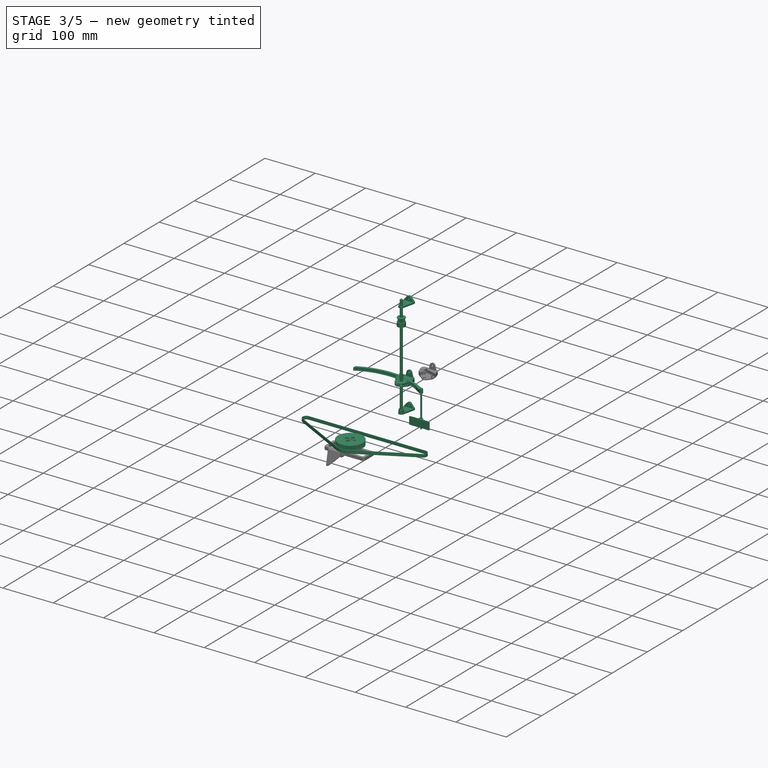
[diagram: stage 3 of 5 — iso view after this stage's code; geometry added in this stage tinted green]
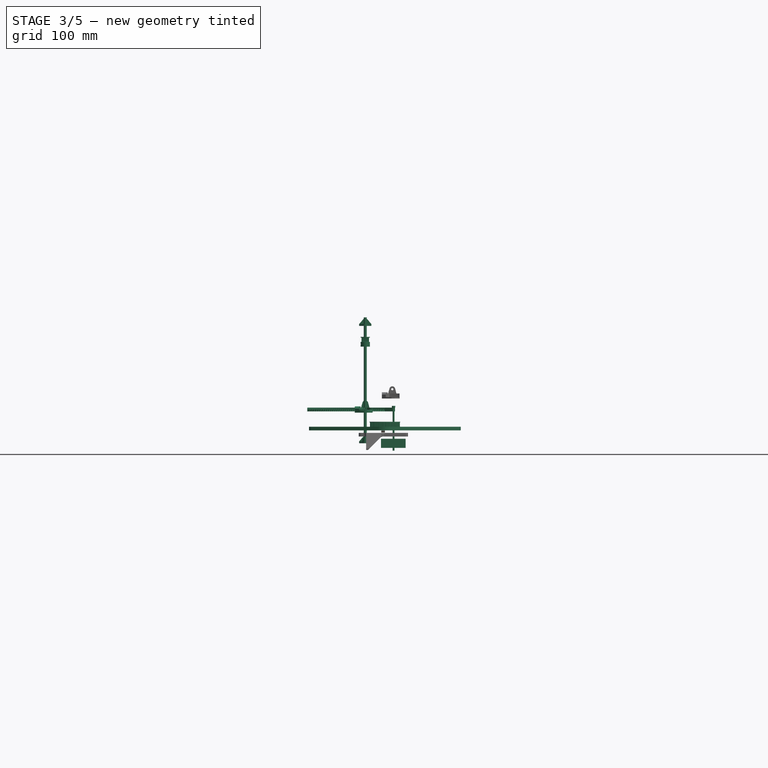
[diagram: stage 3 of 5 — front view after this stage's code; geometry added in this stage tinted green]
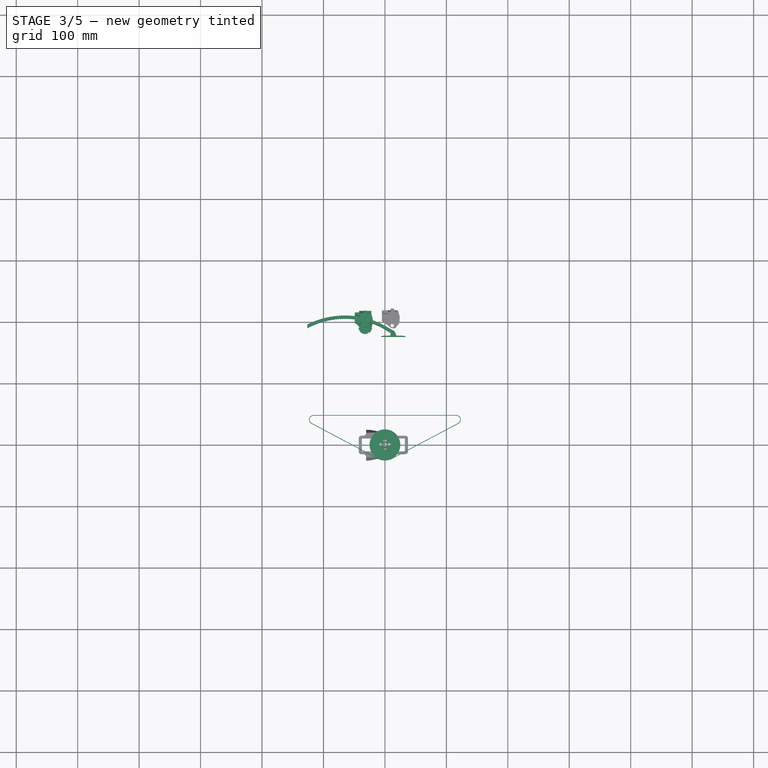
[diagram: stage 3 of 5 — top view after this stage's code; geometry added in this stage tinted green]
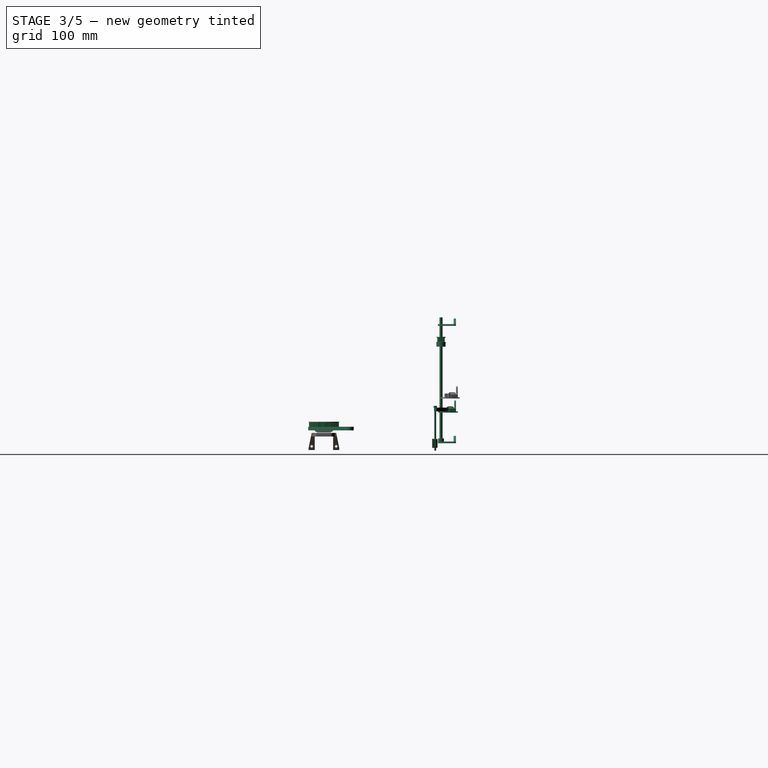
[diagram: stage 3 of 5 — right view after this stage's code; geometry added in this stage tinted green]
FEATURE [PartDesign::Body] Body010  label="Corps003"
  AllowCompound = false
  Group = -> [Sketch048,Revolution001,Sketch049,Pocket025,PolarPattern003]
  Origin = -> Origin018
  Placement = pos=(0,0,0.4) rot=(0,0,1;0rad)
  Tip = -> PolarPattern003
FEATURE [Sketcher::SketchObject] Sketch263
  ArcFitTolerance = 1e-06
  AttachmentSupport = -> [Origin608]
  ExternalTypes = [0]
  FullyConstrained = false
  MakeInternals = false
  MapMode = 5
  _ExternalGeoVersion = 1
  sketch-geometry (4):
    g0: ArcOfCircle CenterX=0 CenterY=50 CenterZ=0 NormalX=0 NormalY=0 NormalZ=1 AngleXU=0 Radius=135 StartAngle=5.59549 EndAngle=6.64269
    g1: LineSegment StartX=114.813 StartY=113.818 StartZ=0 EndX=132.148 EndY=89.3331 EndZ=0
    g2: LineSegment [constr] StartX=0 StartY=50 StartZ=0 EndX=126.37 EndY=97.4947 EndZ=0
    g3: LineSegment [constr] StartX=0 StartY=50 StartZ=0 EndX=104.316 EndY=-35.6919 EndZ=0
  constraints (11):
    c: Radius(g0) = 135
    c: PointOnObject(g0,g-2)
    c: DistanceY(g-1,g0) = 50
    c: Coincident(g2,g0)
    c: Coincident(g2,g0)
    c: Coincident(g3,g0)
    c: Coincident(g3,g0)
    c: Angle(g3,g2) = 1.0472
    c: PointOnObject(g0,g1)
    c: Distance(g1,g0) = 10
    c: Distance(g1,g0) = 20
FEATURE [PartDesign::Body] Body108  label="Test2D"
  AllowCompound = false
  Group = -> [Sketch263]
  Origin = -> Origin608
FEATURE [Sketcher::SketchObject] Sketch265
  ArcFitTolerance = 1e-06
  AttachmentSupport = -> [Origin612]
  ExternalTypes = [0]
  FullyConstrained = true
  MakeInternals = false
  MapMode = 5
  _ExternalGeoVersion = 1
  sketch-geometry (1):
    g0: Circle CenterX=0 CenterY=0 CenterZ=0 NormalX=0 NormalY=0 NormalZ=1 AngleXU=0 Radius=2.5
  constraints (2):
    c: Coincident(g0,g-1)
    c: Diameter(g0) = 5
FEATURE [PartDesign::Pad] Pad134
  Direction = (0,0,1)
  Length = 200
  Length2 = 10
  Profile = -> Sketch265
  ReferenceAxis = -> Sketch265 [N_Axis]
  SideType = 0
  Suppressed = false
  Type = 0
  Type2 = 0
FEATURE [PartDesign::Body] Body110  label="Tige M5"
  AllowCompound = false
  Group = -> [Sketch265,Pad134]
  Origin = -> Origin612
  Placement = pos=(115.5,83,7) rot=(0,0,1;0rad)
  Tip = -> Pad134
FEATURE [Sketcher::SketchObject] Sketch266
  ArcFitTolerance = 1e-06
  AttachmentSupport = -> [Origin616]
  ExternalTypes = [0]
  FullyConstrained = true
  MakeInternals = false
  MapMode = 5
  _ExternalGeoVersion = 1
  sketch-geometry (6):
    g0: ArcOfCircle CenterX=0 CenterY=0 CenterZ=0 NormalX=0 NormalY=0 NormalZ=1 AngleXU=0 Radius=140 StartAngle=0.523599 EndAngle=5.82838
    g1: ArcOfCircle CenterX=0 CenterY=0 CenterZ=0 NormalX=0 NormalY=0 NormalZ=1 AngleXU=0 Radius=123 StartAngle=0.523599 EndAngle=5.75959
    g2: LineSegment StartX=121.244 StartY=70 StartZ=0 EndX=106.521 EndY=61.5 EndZ=0
    g3: LineSegment StartX=106.521 StartY=-61.5 StartZ=0 EndX=125.769 EndY=-61.5 EndZ=0
    g4: LineSegment [constr] StartX=0 StartY=0 StartZ=0 EndX=106.521 EndY=61.5 EndZ=0
    g5: LineSegment [constr] StartX=106.521 StartY=-61.5 StartZ=0 EndX=0 EndY=0 EndZ=0
  constraints (16):
    c: Coincident(g0,g-1)
    c: Coincident(g1,g0)
    c: Coincident(g2,g0)
    c: Coincident(g2,g1)
    c: Coincident(g3,g1)
    c: Coincident(g3,g0)
    c: Coincident(g4,g0)
    c: Coincident(g4,g1)
    c: Coincident(g5,g1)
    c: Coincident(g5,g0)
    c: Radius(g1) = 123
    c: Radius(g0) = 140
    c: Horizontal(g3)
    c: Parallel(g2,g4)
    c: Angle(g5,g4) = 1.0472
    c: Angle(g-1,g4) = 0.523599
FEATURE [PartDesign::Pocket] Pocket037
  BaseFeature = -> InternalInvoluteGear
  Direction = (0,0,-1)
  Length = 10
  Length2 = 5
  Profile = -> Sketch266
  ReferenceAxis = -> Sketch266 [N_Axis]
  Reversed = true
  SideType = 0
  Suppressed = false
  Type = 0
  Type2 = 0
FEATURE [Sketcher::SketchObject] Sketch271
  ArcFitTolerance = 1e-06
  AttachmentSupport = -> [Origin622]
  ExternalTypes = [0]
  FullyConstrained = true
  MakeInternals = false
  MapMode = 5
  _ExternalGeoVersion = 1
  sketch-geometry (8):
    g0: LineSegment StartX=1.75 StartY=0 StartZ=0 EndX=3.75 EndY=0 EndZ=0
    g1: LineSegment StartX=-1.75 StartY=2e-16 StartZ=0 EndX=-5 EndY=0 EndZ=0
    g2: ArcOfCircle CenterX=0 CenterY=0 CenterZ=0 NormalX=0 NormalY=0 NormalZ=1 AngleXU=0 Radius=1.75 StartAngle=0 EndAngle=3.14159
    g3: ArcOfCircle CenterX=0 CenterY=0 CenterZ=0 NormalX=0 NormalY=0 NormalZ=1 AngleXU=0 Radius=3.75 StartAngle=0 EndAngle=1.23898
    g4: LineSegment StartX=1.22159 StartY=3.54545 StartZ=0 EndX=-3 EndY=5 EndZ=0
    g5: LineSegment StartX=-3 StartY=5 StartZ=0 EndX=-3 EndY=20 EndZ=0
    g6: LineSegment StartX=-3 StartY=20 StartZ=0 EndX=-5 EndY=20 EndZ=0
    g7: LineSegment StartX=-5 StartY=20 StartZ=0 EndX=-5 EndY=0 EndZ=0
  constraints (23):
    c: PointOnObject(g0,g-1)
    c: PointOnObject(g0,g-1)
    c: PointOnObject(g1,g-1)
    c: PointOnObject(g1,g-1)
    c: Coincident(g2,g-1)
    c: Coincident(g2,g1)
    c: Coincident(g2,g0)
    c: Coincident(g3,g2)
    c: Coincident(g3,g0)
    c: Tangent(g4,g3) = -1.5708
    c: Coincident(g5,g4)
    c: Vertical(g5)
    c: Coincident(g6,g5)
    c: Horizontal(g6)
    c: Coincident(g7,g6)
    c: Vertical(g7)
    c: Coincident(g1,g7)
    c: DistanceX(g6,g6) = 2
    c: DistanceY(g7,g7) = 20
    c: DistanceY(g5,g5) = 15
    c: DistanceX(g0,g0) = 2
    c: Diameter(g2) = 3.5
    c: DistanceX(g4,g2) = 3
FEATURE [PartDesign::Pad] Pad137
  Direction = (0,0,1)
  Length = 15
  Length2 = 10
  Profile = -> Sketch271
  ReferenceAxis = -> Sketch271 [N_Axis]
  SideType = 2
  Suppressed = false
  Type = 0
  Type2 = 0
FEATURE [PartDesign::Mirrored] Mirrored017
  BaseFeature = -> Pad137
  MirrorPlane = -> Sketch271 [H_Axis]
  Originals = -> [Pad137]
  Refine = true
  Suppressed = false
  TransformMode = 0
FEATURE [Sketcher::SketchObject] Sketch273
  ArcFitTolerance = 1e-06
  AttachmentSupport = -> [Origin616]
  ExternalGeometry = -> [Pocket037]
  ExternalTypes = [0,0]
  FullyConstrained = false
  MakeInternals = false
  MapMode = 5
  _ExternalGeoVersion = 1
  sketch-geometry (5):
    g0: Circle CenterX=107.176 CenterY=78.3649 CenterZ=0 NormalX=0 NormalY=0 NormalZ=1 AngleXU=0 Radius=1.7
    g1: ArcOfCircle CenterX=107.176 CenterY=78.3649 CenterZ=0 NormalX=0 NormalY=0 NormalZ=1 AngleXU=0 Radius=3 StartAngle=0.523599 EndAngle=3.69328
    g2: LineSegment StartX=109.775 StartY=79.8649 StartZ=0 EndX=116.913 EndY=67.5 EndZ=0
    g3: LineSegment StartX=104.622 StartY=76.7926 StartZ=0 EndX=112.064 EndY=64.7 EndZ=0
    g4: LineSegment StartX=112.064 StartY=64.7 StartZ=0 EndX=116.913 EndY=67.5 EndZ=0
  constraints (10):
    c: Coincident(g1,g0)
    c: Coincident(g4,g2)
    c: Coincident(g2,g-3)
    c: Tangent(g2,g1) = 1.5708
    c: Tangent(g3,g1) = -1.5708
    c: Diameter(g0) = 3.4
    c: Diameter(g1) = 6
    c: Coincident(g3,g4)
    c: Perpendicular(g2,g-3)
    c: Coincident(g3,g-3)
FEATURE [PartDesign::Pad] Pad138
  BaseFeature = -> Pocket037
  Direction = (0,0,1)
  Length = 6
  Length2 = 10
  Profile = -> Sketch273
  ReferenceAxis = -> Sketch273 [N_Axis]
  SideType = 0
  Suppressed = false
  Type = 0
  Type2 = 0
FEATURE [PartDesign::Body] Body115  label="FoV"
  AllowCompound = false
  Group = -> [Sketch274,Revolution002]
  Origin = -> Origin001
  Placement = pos=(0,-2.2,-2) rot=(0,0,1;0rad)
  Tip = -> Revolution002
FEATURE [App::Part] Part043  label="VL53L1XV2"
  Group = -> [Part__Feature008002002006938,Body115,Body008]
  Origin = -> Origin624
FEATURE [App::VarSet] VarSet001
  largeur_base = 34
FEATURE [App::Part] cache_profile_alu_2021  label="cache_profile_alu_2022"
  Origin = -> Origin296
  Placement = pos=(0,82.5,320) rot=(0,0,1;0rad)
FEATURE [App::Part] Profile_alu
  Group = -> [Profile_alu_20x021,cache_profile_alu_2021,Profile_alu_20x20_265m002]
  Origin = -> Origin298
FEATURE [App::Part] Structure
  Group = -> [Profile_alu,Plaques,Base_roulante]
  Origin = -> Origin336
FEATURE [App::Part] Robot_CRLG  label="Robot_CRLG_base"
  Group = -> [Structure,Part018,Part003,Part043,VarSet001]
  Origin = -> Origin362
  Placement = pos=(-115,75,-23) rot=(0,0,1;4.71239rad)
FEATURE [Part::FeaturePython] Screw  label="M3x70-Vis"  # WARN: FeaturePython — macro-defined, semantics opaque (R4)
  Diameter = 4
  Invert = false
  LeftHanded = false
  Length = 10
  LengthCustom = 70
  MatchOuter = false
  OffsetAngle = 0
  Placement = pos=(106,129,6) rot=(0,0,1;0rad)
  Thread = false
  Type = 75
FEATURE [Part::Feature] Part__Feature008002002006939  label="Gates_2GT_20T_Toothed_Pulley"
  shape: bbox 15 x 1.2 x 15 mm, 10 faces (baked)
FEATURE [Part::Feature] Part__Feature008002002006940  label="Gates_2GT_20T_Toothed_Pulley001"
  shape: bbox 12.16 x 16 x 12.16 mm, 153 faces (baked)
FEATURE [Part::Feature] Part__Feature008002002006941  label="Gates_2GT_20T_Toothed_Pulley002"
  shape: bbox 15 x 7.8 x 15 mm, 14 faces (baked)
FEATURE [App::Part] Gates_2GT_20T_Toothed_Pulley  label="Gates_2GT_20T_Toothed_Pulley003"
  Group = -> [Part__Feature008002002006939,Part__Feature008002002006940,Part__Feature008002002006941]
  Origin = -> Origin
  Placement = pos=(115.5,83,159.25) rot=(-1,0,0;4.71239rad)
  expr: .Placement.Base.x = <<Tige M5>>.Placement.Base.x
  expr: .Placement.Base.y = <<Tige M5>>.Placement.Base.y
FEATURE [App::Point] Origin626  label="Origine199"
  Role = Origin
FEATURE [Sketcher::SketchObject] Sketch275
  ArcFitTolerance = 1e-06
  AttachmentSupport = -> [Mirrored017]
  ExternalTypes = [0]
  FullyConstrained = true
  MakeInternals = false
  MapMode = 5
  Placement = pos=(0,0,-7.5) rot=(1,0,0;3.14159rad)
  _ExternalGeoVersion = 1
  sketch-geometry (1):
    g0: Circle CenterX=0 CenterY=0 CenterZ=0 NormalX=0 NormalY=0 NormalZ=1 AngleXU=0 Radius=2.1
  constraints (2):
    c: Coincident(g0,g-1)
    c: Diameter(g0) = 4.2
FEATURE [PartDesign::Pocket] Pocket
  BaseFeature = -> Mirrored017
  Direction = (0,0,1)
  Length = 6
  Length2 = 5
  Profile = -> Sketch275
  ReferenceAxis = -> Sketch275 [N_Axis]
  SideType = 0
  Suppressed = false
  Type = 0
  Type2 = 0
FEATURE [PartDesign::Chamfer] Chamfer
  Angle = 45
  Base = -> Pocket [Edge5,Edge7]
  BaseFeature = -> Pocket
  ChamferType = 0
  FlipDirection = false
  Size = 1
  Size2 = 1
  SupportTransform = false
  Suppressed = false
  UseAllEdges = false
FEATURE [PartDesign::Chamfer] Chamfer001
  Angle = 45
  Base = -> Chamfer [Edge50,Edge20]
  BaseFeature = -> Chamfer
  ChamferType = 1
  FlipDirection = false
  Size = 5
  Size2 = 1
  SupportTransform = false
  Suppressed = false
  UseAllEdges = false
FEATURE [PartDesign::Body] Body  label="support_tige"
  AllowCompound = false
  Group = -> [Sketch,Pad,Sketch278,Pad143]
  Origin = -> Origin627
  Placement = pos=(140,83,200) rot=(0,0,1;0rad)
  Tip = -> Pad143
FEATURE [PartDesign::PolarPattern] PolarPattern
  Angle = 360
  Axis = -> Y_Axis383
  BaseFeature = -> Pocket043
  Mode = 0
  Occurrences = 3
  Offset = 120
  Originals = -> [Pocket043]
  Placement = pos=(0,0,0) rot=(1,0,0;4.71239rad)
  SpacingPattern = [0]
  Spacings = [-1,-1]
  Suppressed = false
  TransformMode = 0
FEATURE [PartDesign::Body] Body111  label="Pignon001"
  AllowCompound = false
  Group = -> [InvoluteGear002,Sketch276,Pocket042,Sketch277,Pocket043,PolarPattern]
  Origin = -> Origin614
  Placement = pos=(115.5,83,54) rot=(-0.935113,0.250563,0.250563;4.64535rad)
  Tip = -> PolarPattern
  expr: .Placement.Base.x = <<Tige M5>>.Placement.Base.x
  expr: .Placement.Base.y = <<Tige M5>>.Placement.Base.y
FEATURE [App::Point] Origin630  label="Origine203"
  Role = Origin
FEATURE [Sketcher::SketchObject] Sketch279
  ArcFitTolerance = 1e-06
  AttachmentOffset = pos=(0,0,4.8) rot=(0,0,1;0rad)
  AttachmentSupport = -> [Origin629]
  ExternalTypes = [0]
  FullyConstrained = true
  MakeInternals = false
  MapMode = 5
  Placement = pos=(0,0,4.8) rot=(0,0,1;0rad)
  _ExternalGeoVersion = 1
  sketch-geometry (1):
    g0: Circle CenterX=0 CenterY=0 CenterZ=0 NormalX=0 NormalY=0 NormalZ=1 AngleXU=0 Radius=25
  constraints (2):
    c: Diameter(g0) = 50
    c: Coincident(g0,g-1)
FEATURE [PartDesign::Pad] Pad144
  Direction = (0,0,1)
  Length = 9.2
  Length2 = 10
  Profile = -> Sketch279
  ReferenceAxis = -> Sketch279 [N_Axis]
  SideType = 0
  Suppressed = false
  Type = 0
  Type2 = 0
FEATURE [Sketcher::SketchObject] Sketch280
  ArcFitTolerance = 1e-06
  AttachmentOffset = pos=(0,0,4.4) rot=(0,0,1;0rad)
  AttachmentSupport = -> [Origin629]
  ExternalTypes = [0]
  FullyConstrained = true
  MakeInternals = false
  MapMode = 5
  Placement = pos=(0,0,4.4) rot=(0,0,1;0rad)
  _ExternalGeoVersion = 1
  sketch-geometry (6):
    g0: Circle CenterX=0 CenterY=0 CenterZ=0 NormalX=0 NormalY=0 NormalZ=1 AngleXU=0 Radius=3
    g1: Circle [constr] CenterX=0 CenterY=0 CenterZ=0 NormalX=0 NormalY=0 NormalZ=1 AngleXU=0 Radius=7
    g2: Circle CenterX=0 CenterY=7 CenterZ=0 NormalX=0 NormalY=0 NormalZ=1 AngleXU=0 Radius=1.65
    g3: Circle CenterX=7 CenterY=0 CenterZ=0 NormalX=0 NormalY=0 NormalZ=1 AngleXU=0 Radius=1.65
    g4: Circle CenterX=0 CenterY=-7 CenterZ=0 NormalX=0 NormalY=0 NormalZ=1 AngleXU=0 Radius=1.65
    g5: Circle CenterX=-7 CenterY=0 CenterZ=0 NormalX=0 NormalY=0 NormalZ=1 AngleXU=0 Radius=1.65
  constraints (16):
    c: Diameter(g0) = 6
    c: Coincident(g0,g-1)
    c: Diameter(g1) = 14
    c: Coincident(g1,g0)
    c: Diameter(g2) = 3.3
    c: PointOnObject(g2,g1)
    c: PointOnObject(g3,g1)
    c: PointOnObject(g4,g1)
    c: PointOnObject(g5,g1)
    c: PointOnObject(g5,g-1)
    c: PointOnObject(g3,g-1)
    c: PointOnObject(g4,g-2)
    c: Equal(g2,g5)
    c: Equal(g5,g4)
    c: Equal(g4,g3)
    c: PointOnObject(g2,g-2)
FEATURE [Sketcher::SketchObject] Sketch004  label="SkGearTeethHalf"
  ArcFitTolerance = 0
  AttachmentOffset = pos=(0,0,-1) rot=(0,0,1;0rad)
  AttachmentSupport = -> [Pad144]
  ExternalTypes = [0]
  FullyConstrained = true
  MakeInternals = false
  MapMode = 5
  Placement = pos=(0,0,13) rot=(0,0,1;0rad)
  _ExternalGeoVersion = 0
  expr: .Constraints.MainRad = 360 / <<dd>>.TeethNumber
  expr: Constraints[0] = <<dd>>.TeethType * 0.56 / 2
  expr: Constraints[16] = <<dd>>.TeethType * 0.5
  expr: Constraints[17] = <<dd>>.TeethType * 0.254 / 2
  expr: Constraints[21] = <<dd>>.TeethType * 0.2
  expr: Constraints[25] = <<dd>>.TeethType * 3 / 40
  expr: Constraints[6] = <<dd>>.TeethType
  sketch-geometry (18):
    g0: ArcOfCircle CenterX=0 CenterY=24.0557 CenterZ=0 NormalX=0 NormalY=0 NormalZ=1 AngleXU=0 Radius=0.56 StartAngle=3.57129 EndAngle=4.71239
    g1: ArcOfCircle CenterX=-0.739089 CenterY=24.0809 CenterZ=0 NormalX=0 NormalY=0 NormalZ=1 AngleXU=0 Radius=0.15 StartAngle=0.137862 EndAngle=1.60148
    g2: ArcOfCircle CenterX=0 CenterY=0 CenterZ=0 NormalX=0 NormalY=0 NormalZ=1 AngleXU=0 Radius=24.2423 StartAngle=1.60148 EndAngle=1.6116
    g3: LineSegment [constr] StartX=-0.743691 StartY=24.2308 StartZ=0 EndX=-0.739089 EndY=24.0809 EndZ=0
    g4: ArcOfCircle CenterX=0.4 CenterY=24.239 CenterZ=0 NormalX=0 NormalY=0 NormalZ=1 AngleXU=0 Radius=1 StartAngle=3.27945 EndAngle=3.57129
    g5: LineSegment [constr] StartX=-1 StartY=24.4963 StartZ=0 EndX=1 EndY=24.4963 EndZ=0
    g6: LineSegment [constr] StartX=-0.590108 StartY=24.085 StartZ=0 EndX=-0.593782 EndY=24.235 EndZ=0
    g7: LineSegment [constr] StartX=-0.590108 StartY=24.085 StartZ=0 EndX=-0.739089 EndY=24.0809 EndZ=0
    g8: LineSegment [constr] StartX=-0.739089 StartY=24.0809 StartZ=0 EndX=-0.982689 EndY=24.0722 EndZ=0
    g9: LineSegment [constr] StartX=0.4 StartY=24.239 StartZ=0 EndX=-0.509091 EndY=23.8224 EndZ=0
    g10: LineSegment [constr] StartX=0 StartY=24.2423 StartZ=0 EndX=0 EndY=24.4963 EndZ=0
    g11: LineSegment [constr] StartX=0 StartY=24.0557 StartZ=0 EndX=0 EndY=23.4957 EndZ=0
    g12: LineSegment [constr] StartX=0 StartY=0 StartZ=0 EndX=-0.982689 EndY=24.0722 EndZ=0
    g13: LineSegment [constr] StartX=0.982689 StartY=24.0722 StartZ=0 EndX=-1e-16 EndY=0 EndZ=0
    g14: LineSegment [constr] StartX=-0.982689 StartY=24.0722 StartZ=0 EndX=-0.988807 EndY=24.2221 EndZ=0
    g15: LineSegment StartX=-0.988807 StartY=24.2221 StartZ=0 EndX=-1.0408 EndY=25.4957 EndZ=0
    g16: LineSegment StartX=-1.0408 StartY=25.4957 StartZ=0 EndX=-2e-16 EndY=25.4957 EndZ=0
    g17: LineSegment StartX=-1e-16 StartY=25.4957 StartZ=0 EndX=-1e-16 EndY=23.4957 EndZ=0
  constraints (58):
    c: Radius(g0) = 0.56
    c: Coincident(g3,g1)
    c: Coincident(g1,g3)
    c: Tangent(g4,g1) = 1.5708
    c: Tangent(g4,g0) = -1.5708
    c: PointOnObject(g4,g2)
    c: Distance(g5) = 2
    c: Angle(g-2,g5) = 1.5708
    c: Equal(g6,g3)
    c: PointOnObject(g6,g2)
    c: PointOnObject(g1,g6)
    c: Coincident(g7,g6)
    c: Coincident(g7,g1)
    c: Coincident(g8,g1)
    c: Coincident(g9,g4)
    c: Coincident(g9,g0)
    c: Distance(g9) = 1
    c: Distance(g10) = 0.254
    c: PointOnObject(g10,g2)
    c: Symmetric(g5,g5,g10)
    c: Angle(g10,g5) = 1.5708
    c: Distance(g4,g10) = 0.4
    c: Angle(g11,g10) = 0
    c: Coincident(g11,g0)
    c: Equal(g13,g12)
    c: Radius(g1) = 0.15
    c: Coincident(g14,g12)
    c: Angle(g14,g12) = 3.14159
    c: Coincident(g8,g12)
    c: PointOnObject(g5,g14)
    c: Angle(g13,g12) = 0.0815998  'MainRad'
    c: PointOnObject(g11,g0)
    c: Coincident(g1,g2)
    c: PointOnObject(g2,g6)
    c: PointOnObject(g2,g3)
    c: PointOnObject(g2,g-2)
    c: PointOnObject(g2,g-1)
    c: PointOnObject(g5,g13)
    c: PointOnObject(g11,g-2)
    c: Equal(g14,g3)
    c: Coincident(g2,g14)
    c: PointOnObject(g13,g-2)
    c: PointOnObject(g13,g-1)
    c: PointOnObject(g12,g13)
    c: PointOnObject(g12,g-1)
    c: PointOnObject(g10,g-2)
    c: PointOnObject(g0,g-2)
    c: DistanceY(g-1,g5) = 24.4963
    c: Radius(g2) = 24.2423  'RefTap'
    c: Distance(g0,g2) = 23.4957  'RefSink'
    c: Coincident(g15,g2)
    c: Coincident(g16,g15)
    c: Horizontal(g16)
    c: Coincident(g17,g16)
    c: Coincident(g17,g0)
    c: Vertical(g17)
    c: Parallel(g15,g12)
    c: DistanceY(g17,g17) = 2
FEATURE [App::FeaturePython] dd  # WARN: FeaturePython — macro-defined, semantics opaque (R4)
  DynamicData = Created with DynamicData (v2.47) workbench. | This is a simple container object built | for holding custom properties.
  GearHeight = 7.4
  HolderDia = 4
  InnerDia = 5
  ScrewsDia = 7
  ScrewsDiaList = [6,1.4,1.6,1.8,2,2.5,3,4,5,6,8,10,12,14,16,18,20,22,24]
  ScrewsLength = -0.5
  ScrewsThreaded = true
  TeethNumber = 77
  TeethType = 2
  TotalHeight = 16
  expr: ScrewsLength = (HolderDia - InnerDia) / 2
FEATURE [PartDesign::Pocket] Pocket044
  BaseFeature = -> Pad144
  Direction = (0,0,-1)
  Length = 7.2
  Length2 = 5
  Profile = -> Sketch004
  ReferenceAxis = -> Sketch004 [N_Axis]
  SideType = 0
  Suppressed = false
  Type = 0
  Type2 = 0
FEATURE [PartDesign::Mirrored] Mirror002
  MirrorPlane = -> Sketch004 [V_Axis]
  Suppressed = false
  TransformMode = 0
FEATURE [PartDesign::PolarPattern] Polar_Pattern
  Angle = 360
  Axis = -> Sketch004 [N_Axis]
  Mode = 0
  Occurrences = 77
  Offset = 120
  SpacingPattern = [0]
  Spacings = [-1,-1,-1,-1,-1,-1,-1,-1,-1,-1,-1,-1,-1,-1,-1,-1,-1,-1,-1,-1,-1,-1,-1,-1,-1,-1,-1,-1,-1,-1,-1,-1,-1,-1,-1,-1,-1,-1,-1,-1,-1,-1,-1,-1,-1,-1,-1,-1,-1,-1,-1,-1,-1,-1,-1,-1,-1,-1,-1,-1,-1,-1,-1,-1,-1,-1,-1,-1,-1,-1,-1,-1,-1,-1,-1,-1]
  Suppressed = false
  TransformMode = 0
  expr: Occurrences = <<dd>>.TeethNumber
FEATURE [PartDesign::MultiTransform] MultiTransform
  BaseFeature = -> Pocket044
  Originals = -> [Pocket044]
  Suppressed = false
  TransformMode = 0
  Transformations = -> [Mirror002,Polar_Pattern]
FEATURE [PartDesign::Pocket] Pocket045
  BaseFeature = -> MultiTransform
  Direction = (0,0,-1)
  Length = 5
  Length2 = 5
  Profile = -> Sketch280
  ReferenceAxis = -> Sketch280 [N_Axis]
  Reversed = true
  SideType = 0
  Suppressed = false
  Type = 1
  Type2 = 0
FEATURE [Sketcher::SketchObject] Sketch281
  ArcFitTolerance = 1e-06
  AttachmentSupport = -> [Pocket045]
  ExternalGeometry = -> [Pocket045]
  ExternalTypes = [0,0,0,0]
  FullyConstrained = true
  MakeInternals = false
  MapMode = 5
  Placement = pos=(0,0,14) rot=(0,0,1;0rad)
  _ExternalGeoVersion = 1
  sketch-geometry (4):
    g0: Circle CenterX=0 CenterY=7 CenterZ=0 NormalX=0 NormalY=0 NormalZ=1 AngleXU=0 Radius=3.3
    g1: Circle CenterX=-7 CenterY=0 CenterZ=0 NormalX=0 NormalY=0 NormalZ=1 AngleXU=0 Radius=3.3
    g2: Circle CenterX=0 CenterY=-7 CenterZ=0 NormalX=0 NormalY=0 NormalZ=1 AngleXU=0 Radius=3.3
    g3: Circle CenterX=7 CenterY=0 CenterZ=0 NormalX=0 NormalY=0 NormalZ=1 AngleXU=0 Radius=3.3
  constraints (8):
    c: Coincident(g0,g-3)
    c: Coincident(g1,g-6)
    c: Coincident(g2,g-5)
    c: Coincident(g3,g-4)
    c: Equal(g3,g2)
    c: Equal(g2,g1)
    c: Equal(g1,g0)
    c: Diameter(g0) = 6.6
FEATURE [PartDesign::Pocket] Pocket046
  BaseFeature = -> Pocket045
  Direction = (0,0,-1)
  Length = 7.2
  Length2 = 5
  Profile = -> Sketch281
  ReferenceAxis = -> Sketch281 [N_Axis]
  SideType = 0
  Suppressed = false
  Type = 0
  Type2 = 0
FEATURE [PartDesign::Body] Body117  label="Poulie_2GT"
  AllowCompound = false
  Group = -> [Sketch279,Pad144,Sketch280,Sketch004,Pocket044,MultiTransform,Mirror002,Polar_Pattern,Pocket045,Sketch281,Pocket046]
  Origin = -> Origin629
  Tip = -> Pocket046
FEATURE [App::Point] Origin632  label="Origine205"
  Role = Origin
FEATURE [Sketcher::SketchObject] Sketch282
  ArcFitTolerance = 1e-06
  AttachmentSupport = -> [Origin631]
  ExternalTypes = [0]
  FullyConstrained = true
  MakeInternals = false
  MapMode = 5
  _ExternalGeoVersion = 1
  sketch-geometry (10):
    g0: ArcOfCircle CenterX=116 CenterY=41 CenterZ=0 NormalX=0 NormalY=0 NormalZ=1 AngleXU=0 Radius=6.5 StartAngle=5.19896 EndAngle=7.85398
    g1: LineSegment StartX=119.039 StartY=35.2544 StartZ=0 EndX=11.4562 EndY=-21.6565 EndZ=0
    g2: LineSegment StartX=116 StartY=47.5 StartZ=0 EndX=0 EndY=47.5 EndZ=0
    g3: ArcOfCircle CenterX=0 CenterY=0 CenterZ=0 NormalX=0 NormalY=0 NormalZ=1 AngleXU=0 Radius=24.5 StartAngle=4.71239 EndAngle=5.19896
    g4: LineSegment StartX=0 StartY=47.5 StartZ=0 EndX=0 EndY=48.5 EndZ=0
    g5: LineSegment StartX=0 StartY=48.5 StartZ=0 EndX=116 EndY=48.5 EndZ=0
    g6: ArcOfCircle CenterX=116 CenterY=41 CenterZ=0 NormalX=0 NormalY=0 NormalZ=1 AngleXU=0 Radius=7.5 StartAngle=5.19896 EndAngle=7.85398
    g7: LineSegment StartX=119.507 StartY=34.3704 StartZ=0 EndX=11.9238 EndY=-22.5405 EndZ=0
    g8: ArcOfCircle CenterX=0 CenterY=0 CenterZ=0 NormalX=0 NormalY=0 NormalZ=1 AngleXU=0 Radius=25.5 StartAngle=4.71239 EndAngle=5.19896
    g9: LineSegment StartX=-4.5e-15 StartY=-24.5 StartZ=0 EndX=-4.7e-15 EndY=-25.5 EndZ=0
  constraints (25):
    c: DistanceX(g-1,g0) = 116
    c: DistanceY(g-1,g0) = 41
    c: Tangent(g2,g0) = -1.5708
    c: Tangent(g1,g0) = 1.5708
    c: Radius(g0) = 6.5
    c: PointOnObject(g2,g-2)
    c: Coincident(g3,g-1)
    c: PointOnObject(g3,g-2)
    c: Tangent(g3,g1) = 1.5708
    c: Radius(g3) = 24.5
    c: Coincident(g4,g2)
    c: PointOnObject(g4,g-2)
    c: Coincident(g5,g4)
    c: Coincident(g6,g0)
    c: Coincident(g8,g3)
    c: PointOnObject(g8,g-2)
    c: Coincident(g9,g3)
    c: Coincident(g9,g8)
    c: Tangent(g8,g7) = 1.5708
    c: DistanceY(g9,g9) = 1
    c: Equal(g4,g9)
    c: Parallel(g7,g1)
    c: Tangent(g7,g6) = 1.5708
    c: Tangent(g5,g6) = 1.5708
    c: Horizontal(g5)
FEATURE [PartDesign::Pad] Pad145
  Direction = (0,0,1)
  Length = 6
  Length2 = 10
  Profile = -> Sketch282
  ReferenceAxis = -> Sketch282 [N_Axis]
  SideType = 0
  Suppressed = false
  Type = 0
  Type2 = 0
FEATURE [PartDesign::Mirrored] Mirrored
  BaseFeature = -> Pad145
  MirrorPlane = -> Sketch282 [V_Axis]
  Originals = -> [Pad145]
  Suppressed = false
  TransformMode = 0
FEATURE [App::Link] Link040  label="support_tige001"
  LinkPlacement = pos=(0,0,-191) rot=(0,0,1;0rad)
  LinkTransform = true
  LinkedObject = -> Body
  Placement = pos=(0,0,-191) rot=(0,0,1;0rad)
FEATURE [App::Part] Part026  label="Pince_noisette_A"
  Group = -> [Body108,Body110,Gates_2GT_20T_Toothed_Pulley,Body111,Part027,Body113,Link040,Body,Body122]
  Origin = -> Origin606
  Placement = pos=(-115,75,-23) rot=(0,0,1;4.71239rad)
FEATURE [Part::FeaturePython] Clone  label="Pince_noisette_B"  # Draft clone (typed FeaturePython)
  AttacherType = Attacher::AttachEngine3D
  ForceCompound = false
  Fuse = false
  Objects = -> [Part026]
  Placement = pos=(-115,75,-23) rot=(0,0,-1;4.71239rad)
  Scale = (1,-1,1)
FEATURE [App::Part] Part  label="Pince_noisette"
  Group = -> [Part026,Clone,Part007]
  Origin = -> Origin633
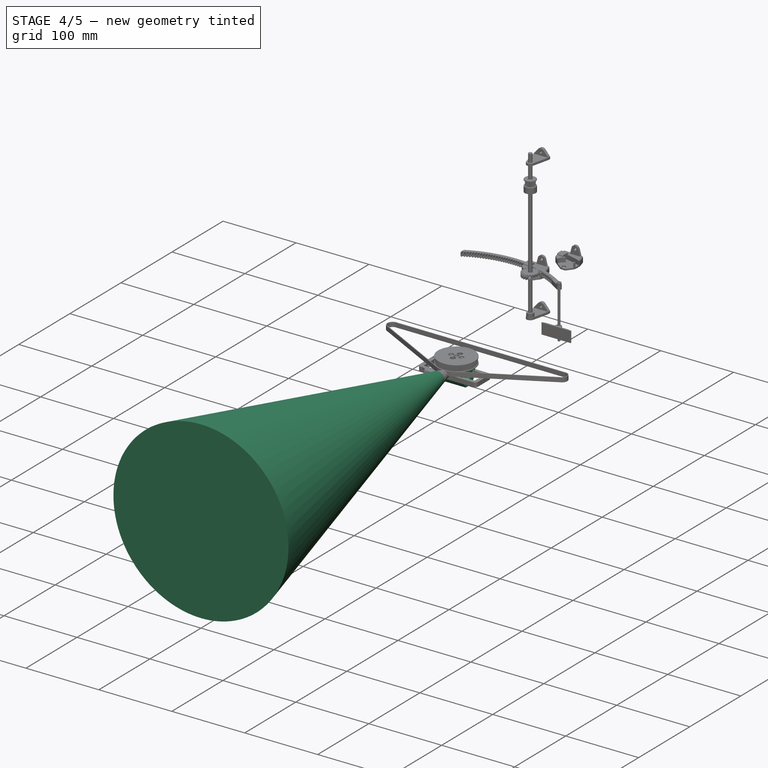
[diagram: stage 4 of 5 — iso view after this stage's code; geometry added in this stage tinted green]
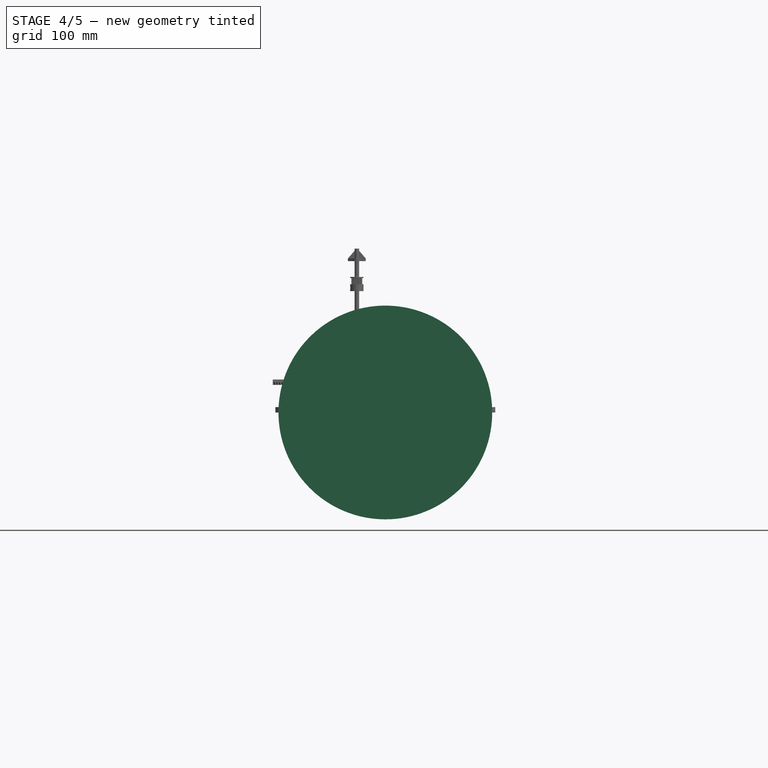
[diagram: stage 4 of 5 — front view after this stage's code; geometry added in this stage tinted green]
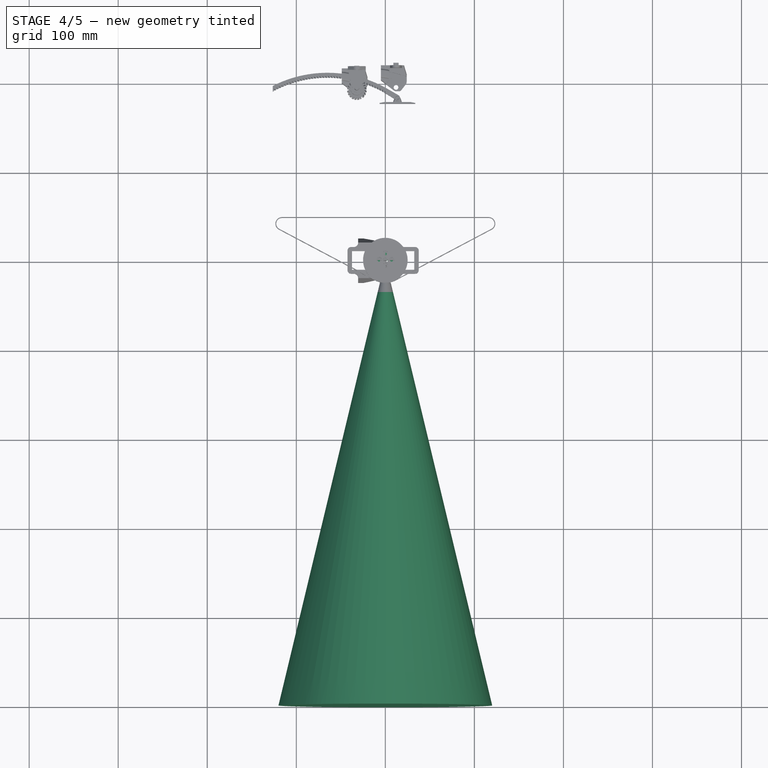
[diagram: stage 4 of 5 — top view after this stage's code; geometry added in this stage tinted green]
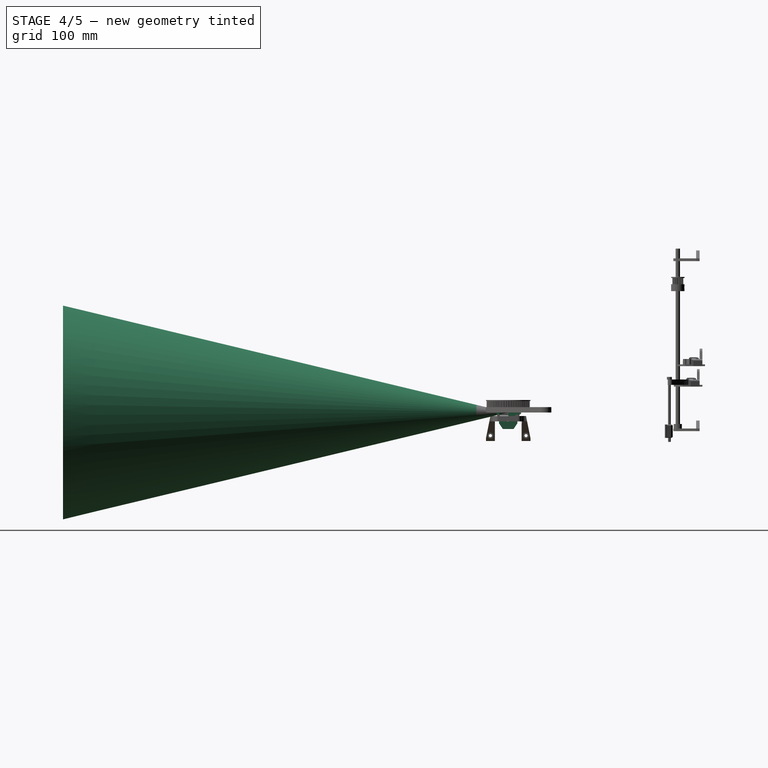
[diagram: stage 4 of 5 — right view after this stage's code; geometry added in this stage tinted green]
FEATURE [Part::Part2DObjectPython] Line  label="Line001"  # Draft 2D object (typed FeaturePython)
  Area = 0
  ChamferSize = 0
  Closed = false
  End = (-31,-3.82,-18)
  FilletRadius = 0
  Length = 63
  MakeFace = true
  Placement = pos=(30.6949,-3.33905,3e-15) rot=(0.707107,0.707107,0;3.14159rad)
  Points = (2) [(-0.480949,1.30514,18),(-0.480949,-61.6949,18)]
  Start = (32,-3.82,-18)
  Subdivisions = 0
FEATURE [Part::Extrusion] Extrude
  Base = -> Line
  Dir = (0,0,1)
  DirMode = 0
  FaceMakerClass = Part::FaceMakerBullseye
  FaceMakerMode = 3
  InnerWireTaper = 1
  LengthFwd = 40
  LengthRev = 0
  Solid = false
  Symmetric = false
FEATURE [App::Link] Link002  label="anneau013"
  LinkPlacement = pos=(-12,7.62876e-07,0) rot=(0,0,1;3.14159rad)
  LinkedObject = -> Body006
  Placement = pos=(-12,7.62876e-07,0) rot=(0,0,1;3.14159rad)
  expr: .Placement.Base.x = -(VarSet001.largeur_base / 2 - 5 mm)
FEATURE [App::LinkElement] Link031_i0
  LinkPlacement = pos=(121.5,-0.499992,-60) rot=(0,-1,0;1.5708rad)
  LinkedObject = -> Part003
  Placement = pos=(121.5,-0.499992,-60) rot=(0,-1,0;1.5708rad)
  _LinkOwner = 7688
FEATURE [App::LinkElement] Link031_i1
  LinkPlacement = pos=(-121.5,-0.499992,-60) rot=(0,-1,0;4.71239rad)
  LinkedObject = -> Part003
  Placement = pos=(-121.5,-0.499992,-60) rot=(0,-1,0;4.71239rad)
  _LinkOwner = 7688
  expr: .Placement.Base.x = -<<Link031_i0>>.Placement.Base.x
  expr: .Placement.Base.y = <<Link031_i0>>.Placement.Base.y
  expr: .Placement.Base.z = <<Link031_i0>>.Placement.Base.z
FEATURE [App::Link] Link031  label="support_2_axes_VL53"
  ElementCount = 2
  ElementList = -> [Link031_i0,Link031_i1]
  LinkPlacement = pos=(0,0,-2.28882e-05) rot=(0,0.707107,-0.707107;3.14159rad)
  LinkedObject = -> Part003
  Placement = pos=(0,0,-2.28882e-05) rot=(0,0.707107,-0.707107;3.14159rad)
FEATURE [App::LinkElement] Link038_i0
  LinkPlacement = pos=(-90,0,0) rot=(0,0,1;0rad)
  LinkedObject = -> Part003
  Placement = pos=(-90,0,0) rot=(0,0,1;0rad)
  _LinkOwner = 7826
FEATURE [App::LinkElement] Link038_i1
  LinkPlacement = pos=(90,0,0) rot=(0,0,1;0rad)
  LinkedObject = -> Part003
  Placement = pos=(90,0,0) rot=(0,0,1;0rad)
  _LinkOwner = 7826
FEATURE [App::Link] Link038  label="Capteurs_AV"
  ElementCount = 2
  ElementList = -> [Link038_i0,Link038_i1]
  LinkPlacement = pos=(-7.25609e-06,83,191) rot=(-1,0,0;3.14159rad)
  LinkedObject = -> Part003
  Placement = pos=(-7.25609e-06,83,191) rot=(-1,0,0;3.14159rad)
FEATURE [App::Link] Link039  label="VL53L1XV003"
  LinkPlacement = pos=(2e-16,0,-2) rot=(0,1,0;3.14159rad)
  LinkedObject = -> Part043
  Placement = pos=(2e-16,0,-2) rot=(0,1,0;3.14159rad)
FEATURE [PartDesign::Mirrored] Mirrored004
  MirrorPlane = -> YZ_Plane007
  Placement = pos=(0,0,0) rot=(1,1,1;2.0944rad)
  Suppressed = false
  TransformMode = 0
FEATURE [PartDesign::Mirrored] Mirrored005
  MirrorPlane = -> YZ_Plane009
  Placement = pos=(0,0,0) rot=(1,0,0;1.5708rad)
  Suppressed = false
  TransformMode = 0
FEATURE [PartDesign::Mirrored] Mirrored018
  MirrorPlane = -> YZ_Plane007
  Placement = pos=(0,0,0) rot=(1,1,1;2.0944rad)
  Suppressed = false
  TransformMode = 0
FEATURE [PartDesign::Mirrored] Mirrored019
  MirrorPlane = -> YZ_Plane011
  Placement = pos=(0,0,0) rot=(1,1,1;2.0944rad)
  Suppressed = false
  TransformMode = 0
FEATURE [App::Point] Origin003  label="Origine174"
  Role = Origin
FEATURE [App::Point] Origin020  label="Origine176"
  Role = Origin
FEATURE [App::Point] Origin021  label="Origine006"
  Role = Origin
FEATURE [App::Point] Origin022  label="Origine177"
  Role = Origin
FEATURE [App::Point] Origin023  label="Origine008"
  Role = Origin
FEATURE [App::Point] Origin024  label="Origine009"
  Role = Origin
FEATURE [App::Point] Origin025  label="Origine010"
  Role = Origin
FEATURE [App::Point] Origin027  label="Origine011"
  Role = Origin
FEATURE [App::Point] Origin380  label="Origine171"
  Role = Origin
FEATURE [App::Point] Origin381  label="Origine172"
  Role = Origin
FEATURE [App::Point] Origin382  label="Origine173"
  Role = Origin
FEATURE [App::Point] Origin555  label="Origine"
  Role = Origin
FEATURE [App::Point] Origin556  label="Origine189"
  Role = Origin
FEATURE [App::Point] Origin557  label="Origine190"
  Role = Origin
FEATURE [App::Point] Origin558  label="Origine191"
  Role = Origin
FEATURE [App::Point] Origin577  label="Origine192"
  Role = Origin
FEATURE [App::Point] Origin578  label="Origine193"
  Role = Origin
FEATURE [App::Point] Origin579  label="Origine194"
  Role = Origin
FEATURE [App::Point] Origin580  label="Origine195"
  Role = Origin
FEATURE [App::Point] Origin581  label="Origine196"
  Role = Origin
FEATURE [App::Point] Origin582  label="Origine197"
  Role = Origin
FEATURE [App::Point] Origin583  label="Origine198"
  Role = Origin
FEATURE [App::Point] Origin607  label="Origine153"
  Role = Origin
FEATURE [App::Point] Origin609  label="Origine155"
  Role = Origin
FEATURE [App::Point] Origin613  label="Origine159"
  Role = Origin
FEATURE [App::Point] Origin615  label="Origine162"
  Role = Origin
FEATURE [App::Point] Origin617  label="Origine163"
  Role = Origin
FEATURE [App::Point] Origin619  label="Origine165"
  Role = Origin
FEATURE [App::Point] Origin621  label="Origine167"
  Role = Origin
FEATURE [App::Point] Origin623  label="Origine169"
  Role = Origin
FEATURE [App::Point] Origin625  label="Origine175"
  Role = Origin
FEATURE [App::Part] Part042  label="Capteurs_AR"
  Group = -> [Link031]
  Origin = -> Origin241
  Placement = pos=(0,-87.5,190) rot=(1,0,0;1.5708rad)
FEATURE [App::Part] Part041  label="Capteurs_VL53"
  Group = -> [Part042,Link038]
  Origin = -> Origin240
FEATURE [App::Part] Part018  label="Capteurs001"
  Group = -> [Part041]
  Origin = -> Origin056
FEATURE [Part::Feature] Part__Feature  label="Profile_alu_20x20_33cm"
  Placement = pos=(150,-88,0) rot=(0,0,1;0rad)
  shape: bbox 20 x 20 x 330 mm, 71 faces (baked)
FEATURE [Part::Feature] Part__Feature003  label="Lever 25T001"
  Placement = pos=(0,0,0) rot=(-1,0,0;1.5708rad)
  shape: bbox 18.84 x 33.03 x 6.019 mm, 125 faces (baked)
FEATURE [Part::Feature] Part__Feature004  label="Axis Servo001"
  Placement = pos=(0,0,0) rot=(-1,0,0;1.5708rad)
  shape: bbox 5 x 5 x 8 mm, 5 faces (baked)
FEATURE [Part::Feature] Part__Feature005  label="Servo DS3218MG001"
  Placement = pos=(0,0,0) rot=(-1,0,0;1.5708rad)
  shape: bbox 55 x 20 x 41 mm, 772 faces (baked)
FEATURE [Part::Feature] Part__Feature008002002006403  label="Profile_alu_20x20_33cm001"
  Placement = pos=(-150,83,0) rot=(0,0,1;0rad)
  shape: bbox 20 x 20 x 330 mm, 71 faces (baked)
FEATURE [Part::Feature] Part__Feature008002002006404  label="Profile_alu_20x20_33cm002"
  Placement = pos=(150,83,0) rot=(0,0,1;0rad)
  shape: bbox 20 x 20 x 330 mm, 71 faces (baked)
FEATURE [Part::Feature] Part__Feature008002002006405  label="Profile_alu_20x20_33cm003"
  Placement = pos=(-150,-88,0) rot=(0,0,1;0rad)
  shape: bbox 20 x 20 x 330 mm, 71 faces (baked)
FEATURE [Part::Feature] Part__Feature008002002006410  label="Profile_alu_20x20_265m001"
  Placement = pos=(220,-87.5,0) rot=(0,0,1;0rad)
  shape: bbox 20 x 20 x 260 mm, 71 faces (baked)
FEATURE [Part::Feature] Part__Feature008002002006411  label="Profile_alu_20x20_265m002"
  Placement = pos=(220,82.5,0) rot=(0,0,1;0rad)
  shape: bbox 20 x 20 x 260 mm, 71 faces (baked)
FEATURE [Part::Feature] Part__Feature008002002006414  label="Plaque_lateral_2025_g"
  Placement = pos=(-160,-2.5,330) rot=(0.57735,-0.57735,-0.57735;2.0944rad)
  shape: bbox 3 x 188 x 330 mm, 26 faces (baked)
FEATURE [Part::Feature] Part__Feature008002002006417  label="Plaque_carte_elec"
  Placement = pos=(0,0,230) rot=(0,0,1;0rad)
  shape: bbox 275 x 180 x 5 mm, 6 faces (baked)
FEATURE [Part::Feature] Part__Feature008002002006866  label="BlocInf_2"
  Placement = pos=(-12.4772,-12.7311,-67) rot=(0,0,1;0rad)
  shape: bbox 60 x 20 x 134 mm, 104 faces (baked)
FEATURE [Part::Feature] Part__Feature008002002006867  label="MotoReducteur_Faulhaber_2657_26.1_12V.23"
  Placement = pos=(-12.4772,7.26895,-1.47) rot=(0,1,0;1.5708rad)
  shape: bbox 26.1 x 26.1 x 119.5 mm, 47 faces (baked)
FEATURE [Part::Feature] Part__Feature008002002006868  label="MotoReducteur_Faulhaber_2657_26.1_12V.024"
  Placement = pos=(-12.4772,7.26895,1.47) rot=(0,-1,0;1.5708rad)
  shape: bbox 26.1 x 26.1 x 119.5 mm, 47 faces (baked)
FEATURE [Part::Feature] Part__Feature008002002006869  label="ClocheReducteur"
  Placement = pos=(-12.4772,7.26895,-107.7) rot=(0.57735,-0.57735,0.57735;2.0944rad)
  shape: bbox 52 x 40 x 40.7 mm, 46 faces (baked)
FEATURE [Part::Feature] Part__Feature008002002006870  label="ClocheReducteur001"
  Placement = pos=(-12.4772,7.26895,107.7) rot=(-0.57735,0.57735,0.57735;2.0944rad)
  shape: bbox 52 x 40 x 40.7 mm, 46 faces (baked)
FEATURE [Part::Feature] Part__Feature008002002006871  label="Jante_1.10"
  Placement = pos=(-12.4772,7.26895,-122) rot=(0,-1,0;1.5708rad)
  shape: bbox 51.2 x 51.2 x 32 mm, 31 faces (baked)
FEATURE [Part::Feature] Part__Feature008002002006872  label="Jante_1.011"
  Placement = pos=(-12.4772,7.26895,122) rot=(0,1,0;1.5708rad)
  shape: bbox 51.2 x 51.2 x 32 mm, 31 faces (baked)
FEATURE [Part::Feature] Part__Feature008002002006873  label="BlocSup_2"
  Placement = pos=(-12.4772,27.2689,-67) rot=(0,0,1;3.14159rad)
  shape: bbox 60 x 20.3 x 52 mm, 84 faces (baked)
FEATURE [Part::Feature] Part__Feature008002002006874  label="BlocSup_003"
  Placement = pos=(-12.4772,27.2689,67) rot=(1,0,0;3.14159rad)
  shape: bbox 60 x 20.3 x 52 mm, 84 faces (baked)
FEATURE [Part::Feature] Part__Feature008002002006875  label="Codeur_GI320"
  Placement = pos=(-12.5772,-3.23105,-123) rot=(-0.694747,0.186157,0.694747;2.77349rad)
  shape: bbox 24 x 24 x 31 mm, 28 faces (baked)
FEATURE [Part::Feature] Part__Feature008002002006876  label="Codeur_GI321"
  Placement = pos=(-12.3772,-3.23105,123) rot=(0.643476,0.414582,0.643476;3.92762rad)
  shape: bbox 24 x 24 x 31 mm, 28 faces (baked)
FEATURE [Part::Feature] Part__Feature008002002006877  label="RoueCodeuse"
  Placement = pos=(-12.3772,-3.23105,155) rot=(0.206869,0.956248,-0.206869;1.61552rad)
  shape: bbox 40.4 x 40.4 x 9 mm, 26 faces (baked)
FEATURE [Part::Feature] Part__Feature008002002006878  label="RoueCodeuse001"
  Placement = pos=(-12.5772,-3.23105,-155) rot=(-0.561833,-0.607196,-0.561833;2.05021rad)
  shape: bbox 40.4 x 40.4 x 9 mm, 26 faces (baked)
FEATURE [Part::Feature] Part__Feature008002002006879  label="suspension_codeur_01"
  Placement = pos=(-32.4772,31.2689,67) rot=(0.57735,0.57735,-0.57735;2.0944rad)
  shape: bbox 64 x 5 x 132 mm, 70 faces (baked)
FEATURE [Part::Feature] Part__Feature008002002006880  label="suspension_codeur_02"
  Placement = pos=(-0.377162,-18.2311,146) rot=(0,1,0;3.14159rad)
  shape: bbox 28 x 50 x 10 mm, 55 faces (baked)
FEATURE [Part::Feature] Part__Feature008002002006881  label="suspension_codeur_03"
  Placement = pos=(7.52284,-17.7311,67) rot=(0.57735,-0.57735,-0.57735;4.18879rad)
  shape: bbox 64 x 17 x 74 mm, 63 faces (baked)
FEATURE [Part::Feature] Part__Feature008002002006882  label="suspension_codeur_004"
  Placement = pos=(7.52284,31.2689,-67) rot=(0.57735,-0.57735,0.57735;2.0944rad)
  shape: bbox 64 x 5 x 132 mm, 70 faces (baked)
FEATURE [Part::Feature] Part__Feature008002002006883  label="suspension_codeur_005"
  Placement = pos=(-24.5772,-18.2311,-146) rot=(0,0,1;0rad)
  shape: bbox 28 x 50 x 10 mm, 55 faces (baked)
FEATURE [Part::Feature] Part__Feature008002002006884  label="suspension_codeur_006"
  Placement = pos=(-32.4772,-17.7311,-67) rot=(0.57735,0.57735,0.57735;4.18879rad)
  shape: bbox 64 x 17 x 74 mm, 63 faces (baked)
FEATURE [Part::Feature] Part__Feature008002002006885  label="Pneu_2025"
  Placement = pos=(-12.48,7.27,103) rot=(0,0,1;0rad)
  shape: bbox 69.27 x 69.27 x 26 mm, 16 faces (baked)
FEATURE [Part::Feature] Part__Feature008002002006886  label="Pneu_2026"
  Placement = pos=(-12.48,7.27,-103) rot=(0,0,1;0rad)
  shape: bbox 69.27 x 69.27 x 26 mm, 16 faces (baked)
FEATURE [App::Part] Bloc_moteur_2017
  Group = -> [Part__Feature008002002006866,Part__Feature008002002006867,Part__Feature008002002006868,Part__Feature008002002006869,Part__Feature008002002006870,Part__Feature008002002006871,Part__Feature008002002006872,Part__Feature008002002006873,Part__Feature008002002006874,Part__Feature008002002006875,Part__Feature008002002006876,Part__Feature008002002006877,Part__Feature008002002006878,+8 more]
  Origin = -> Origin334
  Placement = pos=(2.9e-15,11.3,12.7) rot=(0.57735,0.57735,0.57735;2.0944rad)
FEATURE [Part::Feature] Part__Feature008002002006887  label="Plaque_AV_chassis001"
  Placement = pos=(0,-55,0) rot=(0,0,1;0rad)
  shape: bbox 277.9 x 68.03 x 2 mm, 32 faces (baked)
FEATURE [Part::Feature] Part__Feature008002002006888  label="Plaque_AR_chassis"
  Placement = pos=(0,31,0) rot=(0,0,1;0rad)
  shape: bbox 244.5 x 75.93 x 2 mm, 62 faces (baked)
FEATURE [Part::Feature] Part__Feature008002002006889  label="Chassis_Grobot_ALU_2025"
  Placement = pos=(0,6,-5) rot=(0,0,1;0rad)
  shape: bbox 320 x 205 x 5 mm, 338 faces (baked)
FEATURE [App::Part] Base_roulante
  Group = -> [Bloc_moteur_2017,Part__Feature008002002006887,Part__Feature008002002006888,Part__Feature008002002006889]
  Origin = -> Origin335
  Placement = pos=(0,-5,0) rot=(0,0,1;3.14159rad)
FEATURE [Part::Feature] Part__Feature008002002006938  label="GY-VL53L1XV2"
  Placement = pos=(0,0,0) rot=(1,0,0;4.71239rad)
  shape: bbox 25 x 11.9 x 10.6 mm, 311 faces (baked)
FEATURE [App::Part] Plaques
  Group = -> [Part__Feature008002002006414,Part__Feature008002002006417]
  Origin = -> Origin299
FEATURE [PartDesign::PolarPattern] PolarPattern004
  Angle = 180
  Axis = -> X_Axis007
  Mode = 0
  Occurrences = 13
  Offset = 120
  Placement = pos=(0,0,0) rot=(1,1,1;2.0944rad)
  SpacingPattern = [0]
  Spacings = [-1,-1,-1,-1,-1,-1,-1,-1,-1,-1,-1,-1]
  Suppressed = false
  TransformMode = 0
FEATURE [App::Part] Profile_alu_20x021
  Group = -> [Part__Feature,Part__Feature008002002006403,Part__Feature008002002006404,Part__Feature008002002006405]
  Origin = -> Origin295
FEATURE [App::Part] Profile_alu_20x20_265m002  label="Profile_alu_20x20_265m003"
  Group = -> [Part__Feature008002002006410,Part__Feature008002002006411]
  Origin = -> Origin297
  Placement = pos=(2.01166e-07,0,2.38419e-07) rot=(0,-1,0;1.5708rad)
FEATURE [Part::FeaturePython] Screw004  label="M2x5-Vis003"  # WARN: FeaturePython — macro-defined, semantics opaque (R4)
  BaseObject = -> Body010 [Edge10]
  Diameter = 2
  Invert = true
  LeftHanded = false
  Length = 10
  LengthCustom = 5
  MatchOuter = false
  OffsetAngle = 0
  Placement = pos=(0,1e-15,4.8) rot=(0,0,1;0rad)
  Thread = false
  Type = 76
FEATURE [Sketcher::SketchObject] Sketch005
  ArcFitTolerance = 0
  AttachmentSupport = -> [YZ_Plane007]
  ExternalTypes = [0]
  FullyConstrained = true
  MakeInternals = false
  MapMode = 5
  Placement = pos=(0,0,0) rot=(0.57735,0.57735,0.57735;2.0944rad)
  _ExternalGeoVersion = 0
  sketch-geometry (2):
    g0: ArcOfCircle CenterX=0 CenterY=0 CenterZ=0 NormalX=0 NormalY=0 NormalZ=1 AngleXU=0 Radius=13 StartAngle=1.5708 EndAngle=4.71239
    g1: LineSegment StartX=-2.4e-15 StartY=13 StartZ=0 EndX=-2.4e-15 EndY=-13 EndZ=0
  constraints (6):
    c: Diameter(g0) = 26
    c: Coincident(g0,g1)
    c: PointOnObject(g0,g-2)
    c: Vertical(g1)
    c: Coincident(g1,g0)
    c: Coincident(g0,g-1)
FEATURE [PartDesign::Pad] Pad140
  Direction = (1,0,0)
  Length = 12
  Length2 = 10
  Placement = pos=(0,0,0) rot=(1,1,1;2.0944rad)
  Profile = -> Sketch005
  ReferenceAxis = -> Sketch005 [N_Axis]
  SideType = 0
  Suppressed = false
  Type = 0
  Type2 = 0
  expr: Length = VarSet001.largeur_base / 2 - 5 mm
FEATURE [Sketcher::SketchObject] Sketch011
  ArcFitTolerance = 0
  AttachmentSupport = -> [XZ_Plane009]
  ExternalTypes = [0]
  FullyConstrained = true
  MakeInternals = false
  MapMode = 5
  Placement = pos=(0,0,0) rot=(1,0,0;1.5708rad)
  _ExternalGeoVersion = 0
  expr: Constraints[9] = Pad140.Length
  sketch-geometry (6):
    g0: LineSegment StartX=0 StartY=13 StartZ=0 EndX=12 EndY=13 EndZ=0
    g1: LineSegment StartX=0 StartY=0 StartZ=0 EndX=0 EndY=13 EndZ=0
    g2: LineSegment StartX=17 StartY=0 StartZ=0 EndX=17 EndY=8.5 EndZ=0
    g3: LineSegment StartX=17 StartY=8.5 StartZ=0 EndX=12 EndY=8.5 EndZ=0
    g4: LineSegment StartX=12 StartY=13 StartZ=0 EndX=12 EndY=8.5 EndZ=0
    g5: LineSegment StartX=0 StartY=0 StartZ=0 EndX=17 EndY=0 EndZ=0
  constraints (17):
    c: Coincident(g1,g0)
    c: Horizontal(g0)
    c: PointOnObject(g0,g-2)
    c: Coincident(g2,g3)
    c: Horizontal(g3)
    c: Vertical(g2)
    c: Coincident(g4,g0)
    c: Coincident(g4,g3)
    c: Vertical(g4)
    c: DistanceX(g0,g0) = 12
    c: DistanceX(g3,g3) = 5
    c: DistanceY(g4,g4) = 4.5
    c: Coincident(g5,g-1)
    c: Horizontal(g5)
    c: Coincident(g2,g5)
    c: DistanceY(g1,g1) = 13
    c: Coincident(g1,g5)
FEATURE [PartDesign::Mirrored] Mirrored001
  MirrorPlane = -> Sketch011 [V_Axis]
  Placement = pos=(0,0,0) rot=(1,0,0;1.5708rad)
  Suppressed = false
  TransformMode = 0
FEATURE [PartDesign::Revolution] Revolution003
  Angle = 180
  Angle2 = 60
  Axis = (1,0,0)
  Base = (0,0,0)
  FuseOrder = 1
  Placement = pos=(0,0,0) rot=(1,0,0;1.5708rad)
  Profile = -> Sketch011
  ReferenceAxis = -> Sketch011 [H_Axis]
  Reversed = true
  Suppressed = false
  Type = 0
FEATURE [PartDesign::Body] Body006  label="anneau012"
  AllowCompound = false
  Group = -> [Sketch012,Pad142,Fillet004]
  Origin = -> Origin013
  Placement = pos=(12,0,0) rot=(0,0,1;0rad)
  Tip = -> Fillet004
  expr: .Placement.Base.x = VarSet001.largeur_base / 2 - 5 mm
FEATURE [Sketcher::SketchObject] Sketch013
  ArcFitTolerance = 0
  AttachmentSupport = -> [YZ_Plane011]
  ExternalTypes = [0]
  FullyConstrained = true
  MakeInternals = false
  MapMode = 5
  Placement = pos=(0,0,0) rot=(0.57735,0.57735,0.57735;2.0944rad)
  _ExternalGeoVersion = 0
  sketch-geometry (5):
    g0: ArcOfCircle CenterX=0 CenterY=0 CenterZ=0 NormalX=0 NormalY=0 NormalZ=1 AngleXU=0 Radius=13.5 StartAngle=4.71239 EndAngle=5.36551
    g1: LineSegment StartX=6 StartY=-18.5 StartZ=0 EndX=10.0836 EndY=-12.5 EndZ=0
    g2: ArcOfCircle CenterX=9 CenterY=-11.7625 CenterZ=0 NormalX=0 NormalY=0 NormalZ=1 AngleXU=0 Radius=1.31071 StartAngle=5.6856 EndAngle=8.5071
    g3: LineSegment StartX=-2.5e-15 StartY=-13.5 StartZ=0 EndX=-2.5e-15 EndY=-18.5 EndZ=0
    g4: LineSegment StartX=-2.5e-15 StartY=-18.5 StartZ=0 EndX=6 EndY=-18.5 EndZ=0
  constraints (14):
    c: Coincident(g0,g-1)
    c: Tangent(g2,g1) = -1.5708
    c: Tangent(g2,g0) = 1.5708
    c: Diameter(g0) = 27
    c: DistanceY(g1,g1) = 6
    c: Coincident(g3,g0)
    c: PointOnObject(g3,g-2)
    c: Vertical(g3)
    c: Coincident(g4,g3)
    c: Coincident(g4,g1)
    c: DistanceY(g3,g3) = 5
    c: DistanceX(g4,g4) = 6
    c: Horizontal(g4)
    c: DistanceX(g3,g2) = 9
FEATURE [PartDesign::Mirrored] Mirrored002
  MirrorPlane = -> Sketch013 [V_Axis]
  Placement = pos=(0,0,0) rot=(1,1,1;2.0944rad)
  Suppressed = false
  TransformMode = 0
FEATURE [PartDesign::Pad] Pad005
  Direction = (1,0,0)
  Length = 17
  Length2 = 10
  Placement = pos=(0,0,0) rot=(1,1,1;2.0944rad)
  Profile = -> Sketch013
  ReferenceAxis = -> Sketch013 [N_Axis]
  SideType = 0
  Suppressed = false
  Type = 0
  Type2 = 0
  expr: Length = VarSet001.largeur_base / 2
FEATURE [Sketcher::SketchObject] Sketch014
  ArcFitTolerance = 0
  AttachmentOffset = pos=(0,0,17) rot=(0,0,1;0rad)
  AttachmentSupport = -> [YZ_Plane011]
  ExternalTypes = [0]
  FullyConstrained = true
  MakeInternals = false
  MapMode = 5
  Placement = pos=(17,0,0) rot=(0.57735,0.57735,0.57735;2.0944rad)
  _ExternalGeoVersion = 0
  expr: .AttachmentOffset.Base.z = Pad005.Length
  sketch-geometry (11):
    g0: ArcOfCircle CenterX=0 CenterY=0 CenterZ=0 NormalX=0 NormalY=0 NormalZ=1 AngleXU=0 Radius=10.15 StartAngle=4.71239 EndAngle=6.80678
    g1: ArcOfCircle CenterX=0 CenterY=0 CenterZ=0 NormalX=0 NormalY=0 NormalZ=1 AngleXU=0 Radius=13 StartAngle=5.98938 EndAngle=6.80678
    g2: ArcOfCircle CenterX=12.7739 CenterY=7.375 CenterZ=0 NormalX=0 NormalY=0 NormalZ=1 AngleXU=0 Radius=4.6 StartAngle=1.5708 EndAngle=3.66519
    g3: ArcOfCircle CenterX=12.7739 CenterY=7.375 CenterZ=0 NormalX=0 NormalY=0 NormalZ=1 AngleXU=0 Radius=1.75 StartAngle=1.5708 EndAngle=3.66519
    g4: ArcOfCircle CenterX=12.7739 CenterY=10.55 CenterZ=0 NormalX=0 NormalY=0 NormalZ=1 AngleXU=0 Radius=1.425 StartAngle=4.71239 EndAngle=7.85398
    g5: LineSegment StartX=-1.9e-15 StartY=-10.15 StartZ=0 EndX=0 EndY=-14.15 EndZ=0
    g6: LineSegment StartX=12.4429 StartY=-3.76473 StartZ=0 EndX=9.8 EndY=-12.5 EndZ=0
    g7: LineSegment [constr] StartX=0 StartY=0 StartZ=0 EndX=11.2583 EndY=6.5 EndZ=0
    g8: LineSegment [constr] StartX=12.7739 StartY=11.975 StartZ=0 EndX=12.7739 EndY=9.125 EndZ=0
    g9: LineSegment [constr] StartX=8.79016 StartY=5.075 StartZ=0 EndX=11.2583 EndY=6.5 EndZ=0
    g10: LineSegment StartX=9.8 StartY=-12.5 StartZ=0 EndX=0 EndY=-14.15 EndZ=0
  constraints (28):
    c: Coincident(g0,g-1)
    c: Coincident(g1,g0)
    c: Tangent(g4,g2) = -1.5708
    c: Tangent(g2,g0) = 1.5708
    c: Tangent(g4,g3) = 1.5708
    c: Tangent(g3,g1) = 1.5708
    c: Diameter(g0) = 20.3
    c: Diameter(g1) = 26
    c: PointOnObject(g0,g-2)
    c: Coincident(g5,g0)
    c: PointOnObject(g5,g-2)
    c: Coincident(g7,g0)
    c: Coincident(g7,g1)
    c: PointOnObject(g0,g7)
    c: Coincident(g8,g2)
    c: Coincident(g8,g3)
    c: Coincident(g9,g0)
    c: Equal(g9,g8)
    c: Coincident(g9,g1)
    c: Angle(g-1,g7) = 0.523599
    c: Vertical(g8)
    c: Diameter(g3) = 3.5
    c: Tangent(g6,g1) = 1.5708
    c: Coincident(g10,g6)
    c: Coincident(g10,g5)
    c: DistanceY(g5,g5) = 4
    c: DistanceX(g6) = 9.8
    c: DistanceY(g6) = -12.5
FEATURE [PartDesign::Pad] Pad006
  BaseFeature = -> Pad005
  Direction = (1,0,0)
  Length = 4.5
  Length2 = 10
  Placement = pos=(0,0,0) rot=(1,1,1;2.0944rad)
  Profile = -> Sketch014
  ReferenceAxis = -> Sketch014 [N_Axis]
  Refine = true
  Reversed = true
  SideType = 0
  Suppressed = false
  Type = 0
  Type2 = 0
FEATURE [Sketcher::SketchObject] Sketch015
  ArcFitTolerance = 0
  AttachmentSupport = -> [XY_Plane011]
  ExternalTypes = [0]
  FullyConstrained = true
  MakeInternals = false
  MapMode = 5
  _ExternalGeoVersion = 0
  sketch-geometry (1):
    g0: Circle CenterX=0 CenterY=0 CenterZ=0 NormalX=0 NormalY=0 NormalZ=1 AngleXU=0 Radius=2.75
  constraints (2):
    c: Coincident(g0,g-1)
    c: Diameter(g0) = 5.5
FEATURE [PartDesign::Pocket] Pocket005
  BaseFeature = -> Pad006
  Direction = (0,0,-1)
  Length = 5
  Length2 = 5
  Placement = pos=(0,0,0) rot=(1,1,1;2.0944rad)
  Profile = -> Sketch015
  ReferenceAxis = -> Sketch015 [N_Axis]
  SideType = 0
  Suppressed = false
  Type = 1
  Type2 = 0
FEATURE [Sketcher::SketchObject] Sketch016
  ArcFitTolerance = 0
  AttachmentSupport = -> [XY_Plane011]
  ExternalTypes = [0]
  FullyConstrained = true
  MakeInternals = false
  MapMode = 5
  _ExternalGeoVersion = 0
  sketch-geometry (1):
    g0: Circle CenterX=0 CenterY=0 CenterZ=0 NormalX=0 NormalY=0 NormalZ=1 AngleXU=0 Radius=5
  constraints (2):
    c: Coincident(g0,g-1)
    c: Diameter(g0) = 10
FEATURE [PartDesign::Pocket] Pocket006
  BaseFeature = -> Pocket005
  Direction = (0,0,-1)
  Length = 16.5
  Length2 = 5
  Placement = pos=(0,0,0) rot=(1,1,1;2.0944rad)
  Profile = -> Sketch016
  ReferenceAxis = -> Sketch016 [N_Axis]
  SideType = 0
  Suppressed = false
  Type = 0
  Type2 = 0
FEATURE [PartDesign::MultiTransform] MultiTransform004
  BaseFeature = -> Pocket006
  Originals = -> [Pad005,Pad006,Pocket005,Pocket006]
  Placement = pos=(0,0,0) rot=(1,1,1;2.0944rad)
  Refine = true
  Suppressed = false
  TransformMode = 0
  Transformations = -> [Mirrored002,Mirrored019]
FEATURE [Sketcher::SketchObject] Sketch017
  ArcFitTolerance = 0
  AttachmentSupport = -> [XZ_Plane009]
  ExternalTypes = [0]
  FullyConstrained = true
  MakeInternals = false
  MapMode = 5
  Placement = pos=(0,0,0) rot=(0,0.707107,0.707107;3.14159rad)
  _ExternalGeoVersion = 0
  sketch-geometry (7):
    g0: LineSegment StartX=-7 StartY=-8.375 StartZ=0 EndX=0 EndY=-8.375 EndZ=0
    g1: LineSegment StartX=0 StartY=-8.375 StartZ=0 EndX=0 EndY=-4.625 EndZ=0
    g2: LineSegment StartX=-7 StartY=-4.625 StartZ=0 EndX=0 EndY=-4.625 EndZ=0
    g3: ArcOfCircle CenterX=-7 CenterY=-7.375 CenterZ=0 NormalX=0 NormalY=0 NormalZ=1 AngleXU=0 Radius=1 StartAngle=3.14159 EndAngle=4.71239
    g4: ArcOfCircle CenterX=-7 CenterY=-5.625 CenterZ=0 NormalX=0 NormalY=0 NormalZ=1 AngleXU=0 Radius=1 StartAngle=1.5708 EndAngle=3.14159
    g5: LineSegment StartX=-8 StartY=-7.375 StartZ=0 EndX=-8 EndY=-5.625 EndZ=0
    g6: GeomPoint X=0 Y=-6.5 Z=0
  constraints (17):
    c: Coincident(g0,g1)
    c: Horizontal(g0)
    c: Vertical(g1)
    c: PointOnObject(g1,g-2)
    c: Horizontal(g2)
    c: Coincident(g1,g2)
    c: Tangent(g0,g3) = -1.5708
    c: DistanceY(g1,g1) = 3.75
    c: Tangent(g4,g2) = 1.5708
    c: Tangent(g4,g5) = 1.5708
    c: Tangent(g5,g3) = 1.5708
    c: Vertical(g5)
    c: Equal(g4,g3)
    c: Diameter(g4) = 2
    c: Symmetric(g1,g1,g6)
    c: DistanceY(g6,g-1) = 6.5
    c: DistanceX(g4,g-1) = 8
FEATURE [PartDesign::Pocket] Pocket007  label="passage_cable"
  BaseFeature = -> Revolution003
  Direction = (0,-1,2e-16)
  Length = 5
  Length2 = 5
  Placement = pos=(0,0,0) rot=(1,0,0;1.5708rad)
  Profile = -> Sketch017
  ReferenceAxis = -> Sketch017 [N_Axis]
  Reversed = true
  SideType = 0
  Suppressed = false
  Type = 1
  Type2 = 0
FEATURE [Sketcher::SketchObject] Sketch019
  ArcFitTolerance = 0
  AttachmentOffset = pos=(0,-2,0) rot=(0,0,1;0rad)
  AttachmentSupport = -> [XY_Plane007]
  ExternalTypes = [0]
  FullyConstrained = true
  MakeInternals = false
  MapMode = 5
  Placement = pos=(0,-2,0) rot=(0,0,1;0rad)
  _ExternalGeoVersion = 0
  sketch-geometry (4):
    g0: LineSegment StartX=-3 StartY=0 StartZ=0 EndX=-17.0042 EndY=-20 EndZ=0
    g1: LineSegment StartX=-17.0042 StartY=-20 StartZ=0 EndX=0 EndY=-20 EndZ=0
    g2: LineSegment StartX=0 StartY=-20 StartZ=0 EndX=0 EndY=0 EndZ=0
    g3: LineSegment StartX=-3 StartY=0 StartZ=0 EndX=0 EndY=0 EndZ=0
  constraints (11):
    c: PointOnObject(g0,g-1)
    c: Coincident(g1,g0)
    c: PointOnObject(g1,g-2)
    c: Coincident(g2,g1)
    c: Coincident(g2,g-1)
    c: Coincident(g3,g0)
    c: Coincident(g3,g2)
    c: DistanceX(g3,g3) = 3
    c: Horizontal(g1)
    c: Angle(g0,g2) = 0.610865
    c: DistanceY(g2,g2) = 20
FEATURE [Sketcher::SketchObject] Sketch020
  ArcFitTolerance = 0
  AttachmentOffset = pos=(0,0,-17) rot=(0,0,1;0rad)
  AttachmentSupport = -> [YZ_Plane007]
  ExternalTypes = [0]
  FullyConstrained = true
  MakeInternals = false
  MapMode = 5
  Placement = pos=(-17,0,0) rot=(0.57735,0.57735,0.57735;2.0944rad)
  _ExternalGeoVersion = 0
  expr: .AttachmentOffset.Base.z = -VarSet001.largeur_base / 2
  sketch-geometry (6):
    g0: LineSegment [constr] StartX=0 StartY=0 StartZ=0 EndX=0 EndY=6.5 EndZ=0
    g1: LineSegment StartX=0.3 StartY=8.5 StartZ=0 EndX=0.3 EndY=6.5 EndZ=0
    g2: LineSegment StartX=0.3 StartY=6.5 StartZ=0 EndX=-0.3 EndY=6.5 EndZ=0
    g3: LineSegment StartX=-0.3 StartY=6.5 StartZ=0 EndX=-0.3 EndY=8.5 EndZ=0
    g4: ArcOfCircle CenterX=0 CenterY=0 CenterZ=0 NormalX=0 NormalY=0 NormalZ=1 AngleXU=0 Radius=8.50529 StartAngle=1.53552 EndAngle=1.60608
    g5: LineSegment [constr] StartX=0.3 StartY=8.5 StartZ=0 EndX=-0.3 EndY=8.5 EndZ=0
  constraints (16):
    c: Coincident(g0,g-1)
    c: Coincident(g1,g2)
    c: Coincident(g2,g3)
    c: Coincident(g4,g3)
    c: Coincident(g4,g1)
    c: Perpendicular(g0,g2)
    c: Symmetric(g1,g2,g0)
    c: Perpendicular(g2,g3)
    c: Parallel(g1,g3)
    c: Coincident(g5,g1)
    c: Coincident(g5,g3)
    c: Coincident(g4,g0)
    c: Distance(g2) = 0.6
    c: Distance(g1) = 2
    c: Distance(g0) = 6.5
    c: Vertical(g0)
FEATURE [Sketcher::SketchObject] Sketch022
  ArcFitTolerance = 0
  AttachmentOffset = pos=(0,0,17) rot=(0,0,1;0rad)
  AttachmentSupport = -> [YZ_Plane009]
  ExternalTypes = [0]
  FullyConstrained = true
  MakeInternals = false
  MapMode = 5
  Placement = pos=(17,0,0) rot=(0.57735,0.57735,0.57735;2.0944rad)
  _ExternalGeoVersion = 0
  expr: .AttachmentOffset.Base.z = VarSet001.largeur_base / 2
  sketch-geometry (4):
    g0: LineSegment StartX=-0.3 StartY=6.5 StartZ=0 EndX=0.3 EndY=6.5 EndZ=0
    g1: LineSegment StartX=0.3 StartY=6.5 StartZ=0 EndX=0.3 EndY=8.5 EndZ=0
    g2: LineSegment StartX=0.3 StartY=8.5 StartZ=0 EndX=-0.3 EndY=8.5 EndZ=0
    g3: LineSegment StartX=-0.3 StartY=8.5 StartZ=0 EndX=-0.3 EndY=6.5 EndZ=0
  constraints (11):
    c: Coincident(g0,g1)
    c: Coincident(g1,g2)
    c: Coincident(g2,g3)
    c: Coincident(g3,g0)
    c: Horizontal(g2)
    c: Vertical(g1)
    c: Vertical(g3)
    c: Symmetric(g0,g0,g-2)
    c: DistanceY(g-1,g0) = 6.5
    c: DistanceY(g3,g3) = 2
    c: DistanceX(g2,g2) = 0.6
FEATURE [PartDesign::PolarPattern] PolarPattern001
  Angle = 180
  Axis = -> Sketch022 [N_Axis]
  Mode = 0
  Occurrences = 13
  Offset = 120
  Placement = pos=(0,0,0) rot=(1,0,0;1.5708rad)
  Reversed = true
  SpacingPattern = [0]
  Spacings = [-1,-1,-1,-1,-1,-1,-1,-1,-1,-1,-1,-1]
  Suppressed = false
  TransformMode = 0
FEATURE [Sketcher::SketchObject] Sketch023
  ArcFitTolerance = 0
  AttachmentOffset = pos=(0,0,29) rot=(0,0,1;0rad)
  AttachmentSupport = -> [YZ_Plane011]
  ExternalTypes = [0]
  FullyConstrained = true
  MakeInternals = false
  MapMode = 5
  Placement = pos=(29,0,0) rot=(0.57735,0.57735,0.57735;2.0944rad)
  _ExternalGeoVersion = 0
  sketch-geometry (4):
    g0: LineSegment StartX=-0.5 StartY=-20 StartZ=0 EndX=0.5 EndY=-20 EndZ=0
    g1: LineSegment StartX=0.5 StartY=-20 StartZ=0 EndX=0.5 EndY=-10 EndZ=0
    g2: LineSegment StartX=0.5 StartY=-10 StartZ=0 EndX=-0.5 EndY=-10 EndZ=0
    g3: LineSegment StartX=-0.5 StartY=-10 StartZ=0 EndX=-0.5 EndY=-20 EndZ=0
  constraints (11):
    c: Coincident(g0,g1)
    c: Coincident(g1,g2)
    c: Coincident(g2,g3)
    c: Coincident(g3,g0)
    c: Horizontal(g0)
    c: Vertical(g1)
    c: Vertical(g3)
    c: Symmetric(g1,g2,g-2)
    c: DistanceX(g2,g2) = 1
    c: DistanceY(g1,g-1) = 10
    c: DistanceY(g1,g1) = 10
FEATURE [PartDesign::Pocket] Pocket011
  BaseFeature = -> MultiTransform004
  Direction = (-1,0,0)
  Length = 0.2
  Length2 = 5
  Placement = pos=(0,0,0) rot=(1,1,1;2.0944rad)
  Profile = -> Sketch023
  ReferenceAxis = -> Sketch023 [N_Axis]
  SideType = 0
  Suppressed = false
  Type = 0
  Type2 = 0
FEATURE [PartDesign::Body] Body007  label="base006"
  AllowCompound = false
  Group = -> [Sketch013,Pad005,Sketch014,Pad006,Sketch015,Pocket005,Sketch016,Pocket006,MultiTransform004,Mirrored002,Mirrored019,Sketch023,Pocket011,Mirrored006]
  Origin = -> Origin014
  Tip = -> Mirrored006
FEATURE [Sketcher::SketchObject] Sketch024
  ArcFitTolerance = 1e-06
  AttachmentSupport = -> [Origin012]
  ExternalTypes = [0]
  FullyConstrained = true
  MakeInternals = false
  MapMode = 5
  Placement = pos=(0,0,0) rot=(1,0,0;1.5708rad)
  _ExternalGeoVersion = 1
  sketch-geometry (11):
    g0: LineSegment StartX=8 StartY=4.4 StartZ=0 EndX=0 EndY=4.4 EndZ=0
    g1: LineSegment StartX=0 StartY=4.4 StartZ=0 EndX=0 EndY=-8.4 EndZ=0
    g2: LineSegment StartX=0 StartY=-8.4 StartZ=0 EndX=8 EndY=-8.4 EndZ=0
    g3: LineSegment StartX=12.65 StartY=-3.75 StartZ=0 EndX=12.65 EndY=-0.25 EndZ=0
    g4: GeomPoint X=0 Y=-2 Z=0
    g5: ArcOfCircle [constr] CenterX=8 CenterY=-0.25 CenterZ=0 NormalX=0 NormalY=0 NormalZ=1 AngleXU=0 Radius=4.65 StartAngle=-8e-15 EndAngle=1.5708
    g6: GeomPoint [constr] X=12.65 Y=4.4 Z=0
    g7: LineSegment StartX=12.65 StartY=-0.25 StartZ=0 EndX=8 EndY=4.4 EndZ=0
    g8: ArcOfCircle [constr] CenterX=8 CenterY=-3.75 CenterZ=0 NormalX=0 NormalY=0 NormalZ=1 AngleXU=0 Radius=4.65 StartAngle=4.71239 EndAngle=6.28319
    g9: GeomPoint [constr] X=12.65 Y=-8.4 Z=0
    g10: LineSegment StartX=8 StartY=-8.4 StartZ=0 EndX=12.65 EndY=-3.75 EndZ=0
  constraints (25):
    c: Coincident(g0,g1)
    c: Coincident(g1,g2)
    c: Horizontal(g0)
    c: Horizontal(g2)
    c: Vertical(g1)
    c: Vertical(g3)
    c: DistanceX(g0,g6) = 12.65
    c: PointOnObject(g0,g-2)
    c: Symmetric(g1,g1,g4)
    c: DistanceY(g4,g-1) = 2
    c: DistanceY(g1,g1) = 12.8
    c: PointOnObject(g6,g0)
    c: PointOnObject(g6,g3)
    c: Tangent(g0,g5) = -1.5708
    c: Tangent(g3,g5) = -1.5708
    c: Coincident(g7,g0)
    c: Coincident(g7,g3)
    c: PointOnObject(g9,g3)
    c: PointOnObject(g9,g2)
    c: Tangent(g3,g8) = -1.5708
    c: Tangent(g2,g8) = -1.5708
    c: Coincident(g10,g3)
    c: Coincident(g10,g2)
    c: Equal(g10,g7)
    c: DistanceY(g3,g3) = 3.5
FEATURE [PartDesign::Pocket] Pocket041  label="logement_pcb001"
  BaseFeature = -> Pocket007
  Direction = (0,1,-2e-16)
  Length = 1.8
  Length2 = 5
  Placement = pos=(0,0,0) rot=(1,0,0;1.5708rad)
  Profile = -> Sketch024
  ReferenceAxis = -> Sketch024 [N_Axis]
  SideType = 0
  Suppressed = false
  Type = 0
  Type2 = 0
FEATURE [PartDesign::MultiTransform] MultiTransform003
  BaseFeature = -> Pocket041
  Originals = -> [Revolution003,Pocket007,Pocket041]
  Placement = pos=(0,0,0) rot=(1,0,0;1.5708rad)
  Refine = true
  Suppressed = false
  TransformMode = 0
  Transformations = -> [Mirrored001]
FEATURE [Sketcher::SketchObject] Sketch021
  ArcFitTolerance = 0
  AttachmentOffset = pos=(0,0,3) rot=(0,0,1;0rad)
  AttachmentSupport = -> [XZ_Plane009]
  ExternalGeometry = -> [MultiTransform003]
  ExternalTypes = [0]
  FullyConstrained = true
  MakeInternals = false
  MapMode = 5
  Placement = pos=(0,3,-7e-16) rot=(0,0.707107,0.707107;3.14159rad)
  _ExternalGeoVersion = 0
  sketch-geometry (4):
    g0: LineSegment StartX=-10 StartY=15 StartZ=0 EndX=10 EndY=15 EndZ=0
    g1: LineSegment StartX=10 StartY=15 StartZ=0 EndX=10 EndY=-15 EndZ=0
    g2: LineSegment StartX=10 StartY=-15 StartZ=0 EndX=-10 EndY=-15 EndZ=0
    g3: LineSegment StartX=-10 StartY=-15 StartZ=0 EndX=-10 EndY=15 EndZ=0
  constraints (11):
    c: Coincident(g0,g1)
    c: Coincident(g1,g2)
    c: Coincident(g2,g3)
    c: Coincident(g3,g0)
    c: Horizontal(g0)
    c: Horizontal(g2)
    c: Vertical(g1)
    c: Vertical(g3)
    c: Symmetric(g1,g0,g-1)
    c: DistanceY(g1,g1) = 30
    c: DistanceX(g-3,g0) = 2
FEATURE [PartDesign::Pocket] Pocket009
  BaseFeature = -> MultiTransform003
  Direction = (0,-1,2e-16)
  Length = 5
  Length2 = 5
  Placement = pos=(0,0,0) rot=(1,0,0;1.5708rad)
  Profile = -> Sketch021
  ReferenceAxis = -> Sketch021 [N_Axis]
  Reversed = true
  SideType = 0
  Suppressed = false
  Type = 1
  Type2 = 0
FEATURE [PartDesign::Pocket] Pocket010  label="graduation"
  BaseFeature = -> Pocket009
  Direction = (-1,0,0)
  Length = 0.3
  Length2 = 5
  Placement = pos=(0,0,0) rot=(1,0,0;1.5708rad)
  Profile = -> Sketch022
  ReferenceAxis = -> Sketch022 [N_Axis]
  SideType = 0
  Suppressed = false
  Type = 0
  Type2 = 0
FEATURE [PartDesign::Body] Body008  label="CJ-VL53L0XV2"
  AllowCompound = false
  Group = -> [Sketch037,Sketch038,Pad007,MultiTransform007,Mirror,Mirror001]
  Origin = -> Origin026
  Tip = -> MultiTransform007
FEATURE [Sketcher::SketchObject] Sketch048
  ArcFitTolerance = 0
  AttachmentSupport = -> [XZ_Plane018]
  ExternalTypes = [0]
  FullyConstrained = true
  MakeInternals = false
  MapMode = 5
  Placement = pos=(0,0,0) rot=(1,0,0;1.5708rad)
  _ExternalGeoVersion = 0
  expr: Constraints[19] = 19.8 / 2
  sketch-geometry (8):
    g0: LineSegment StartX=2.5 StartY=3.4 StartZ=0 EndX=2.5 EndY=0 EndZ=0
    g1: LineSegment StartX=2.5 StartY=0 StartZ=0 EndX=4.2 EndY=0 EndZ=0
    g2: LineSegment StartX=4.2 StartY=0 StartZ=0 EndX=4.2 EndY=2 EndZ=0
    g3: LineSegment StartX=4.2 StartY=2 StartZ=0 EndX=9.9 EndY=2 EndZ=0
    g4: LineSegment StartX=9.9 StartY=2 StartZ=0 EndX=9.9 EndY=4.4 EndZ=0
    g5: LineSegment StartX=9.9 StartY=4.4 StartZ=0 EndX=1.5 EndY=4.4 EndZ=0
    g6: LineSegment StartX=1.5 StartY=4.4 StartZ=0 EndX=1.5 EndY=3.4 EndZ=0
    g7: LineSegment StartX=1.5 StartY=3.4 StartZ=0 EndX=2.5 EndY=3.4 EndZ=0
  constraints (24):
    c: PointOnObject(g0,g-1)
    c: Vertical(g0)
    c: Coincident(g1,g0)
    c: PointOnObject(g1,g-1)
    c: Coincident(g2,g1)
    c: Vertical(g2)
    c: Coincident(g3,g2)
    c: Horizontal(g3)
    c: Coincident(g4,g3)
    c: Vertical(g4)
    c: Coincident(g5,g4)
    c: Horizontal(g5)
    c: Coincident(g6,g5)
    c: Coincident(g7,g6)
    c: Coincident(g7,g0)
    c: Horizontal(g7)
    c: Vertical(g6)
    c: DistanceY(g4,g4) = 2.4
    c: DistanceY(g2,g2) = 2
    c: DistanceX(g-1,g4) = 9.9
    c: DistanceX(g-1,g6) = 1.5
    c: DistanceY(g0,g0) = 3.4
    c: DistanceX(g-1,g0) = 2.5
    c: DistanceX(g1,g1) = 1.7
FEATURE [PartDesign::Revolution] Revolution001
  Angle = 360
  Angle2 = 60
  Axis = (0,2e-16,1)
  Base = (0,0,0)
  FuseOrder = 0
  Placement = pos=(0,0,0) rot=(1,0,0;1.5708rad)
  Profile = -> Sketch048
  ReferenceAxis = -> Sketch048 [V_Axis]
  Reversed = true
  Suppressed = false
  Type = 0
FEATURE [Sketcher::SketchObject] Sketch049
  ArcFitTolerance = 0
  AttachmentSupport = -> [XY_Plane018]
  ExternalTypes = [0]
  FullyConstrained = true
  MakeInternals = false
  MapMode = 5
  _ExternalGeoVersion = 0
  sketch-geometry (1):
    g0: Circle CenterX=-7 CenterY=0 CenterZ=0 NormalX=0 NormalY=0 NormalZ=1 AngleXU=0 Radius=1.2
  constraints (3):
    c: PointOnObject(g0,g-1)
    c: Diameter(g0) = 2.4
    c: DistanceX(g0,g-1) = 7
FEATURE [PartDesign::Pocket] Pocket025
  BaseFeature = -> Revolution001
  Direction = (0,0,-1)
  Length = 5
  Length2 = 5
  Placement = pos=(0,0,0) rot=(1,0,0;1.5708rad)
  Profile = -> Sketch049
  ReferenceAxis = -> Sketch049 [N_Axis]
  SideType = 0
  Suppressed = false
  Type = 1
  Type2 = 0
FEATURE [PartDesign::PolarPattern] PolarPattern003
  Angle = 360
  Axis = -> Sketch049 [N_Axis]
  BaseFeature = -> Pocket025
  Mode = 0
  Occurrences = 4
  Offset = 120
  Originals = -> [Pocket025]
  Placement = pos=(0,0,0) rot=(1,0,0;1.5708rad)
  SpacingPattern = [0]
  Spacings = [-1,-1,-1]
  Suppressed = false
  TransformMode = 0
FEATURE [PartDesign::Body] Body112  label="cremaillere_bras"
  AllowCompound = false
  Group = -> [InternalInvoluteGear,Sketch266,Pocket037,Sketch273,Pad138]
  Origin = -> Origin616
  Placement = pos=(0,50,0) rot=(0,0,1;0rad)
  Tip = -> Pad138
FEATURE [Sketcher::SketchObject] Sketch274
  ArcFitTolerance = 0
  AttachmentSupport = -> [YZ_Plane389]
  ExternalTypes = [0]
  FullyConstrained = true
  MakeInternals = false
  MapMode = 5
  Placement = pos=(0,0,0) rot=(0.57735,0.57735,0.57735;2.0944rad)
  _ExternalGeoVersion = 0
  sketch-geometry (3):
    g0: LineSegment StartX=0 StartY=0 StartZ=0 EndX=-500 EndY=120.039 EndZ=0
    g1: LineSegment StartX=-500 StartY=120.039 StartZ=0 EndX=-500 EndY=0 EndZ=0
    g2: LineSegment StartX=-500 StartY=0 StartZ=0 EndX=0 EndY=0 EndZ=0
  constraints (8):
    c: Coincident(g0,g-1)
    c: Coincident(g1,g0)
    c: PointOnObject(g1,g-1)
    c: Vertical(g1)
    c: Coincident(g2,g1)
    c: Coincident(g2,g0)
    c: Angle(g0,g2) = 0.235619
    c: DistanceX(g2,g2) = 500
FEATURE [PartDesign::Revolution] Revolution002
  Angle = 360
  Angle2 = 60
  Axis = (0,1,0)
  Base = (0,0,0)
  FuseOrder = 1
  Placement = pos=(0,0,0) rot=(1,1,1;2.0944rad)
  Profile = -> Sketch274
  ReferenceAxis = -> Sketch274 [H_Axis]
  Suppressed = false
  Type = 0
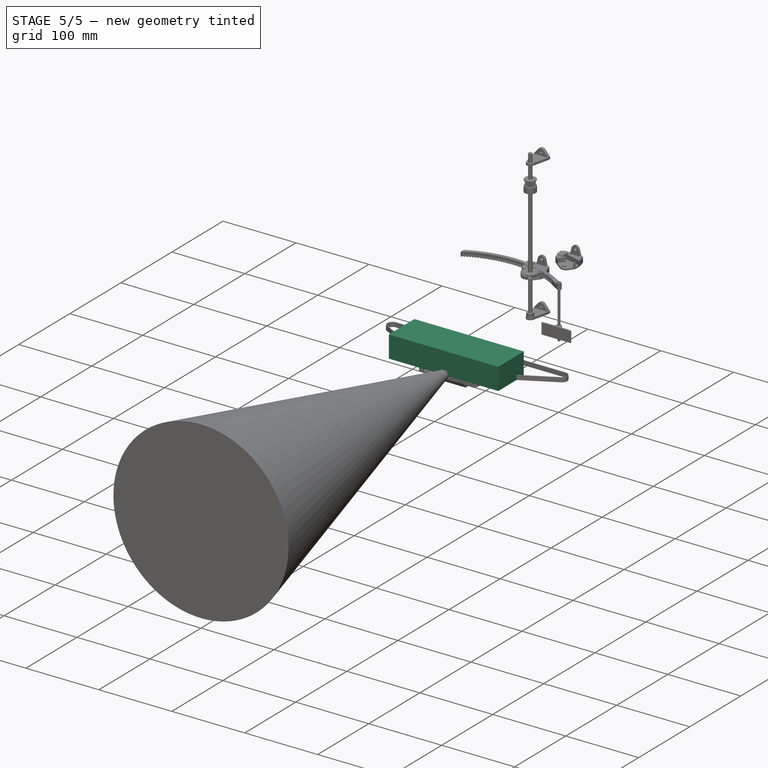
[diagram: stage 5 of 5 — iso view after this stage's code; geometry added in this stage tinted green]
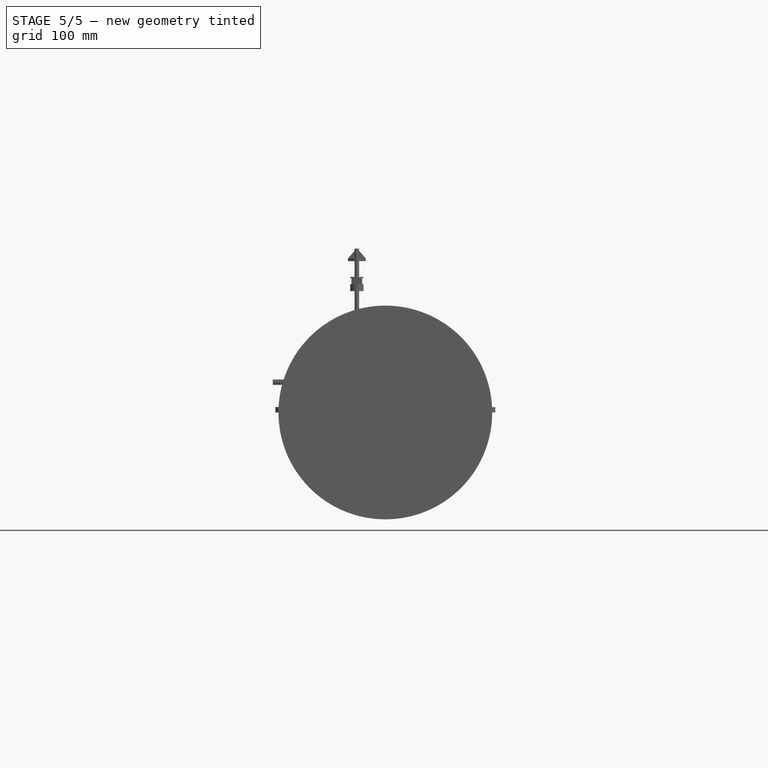
[diagram: stage 5 of 5 — front view after this stage's code; geometry added in this stage tinted green]
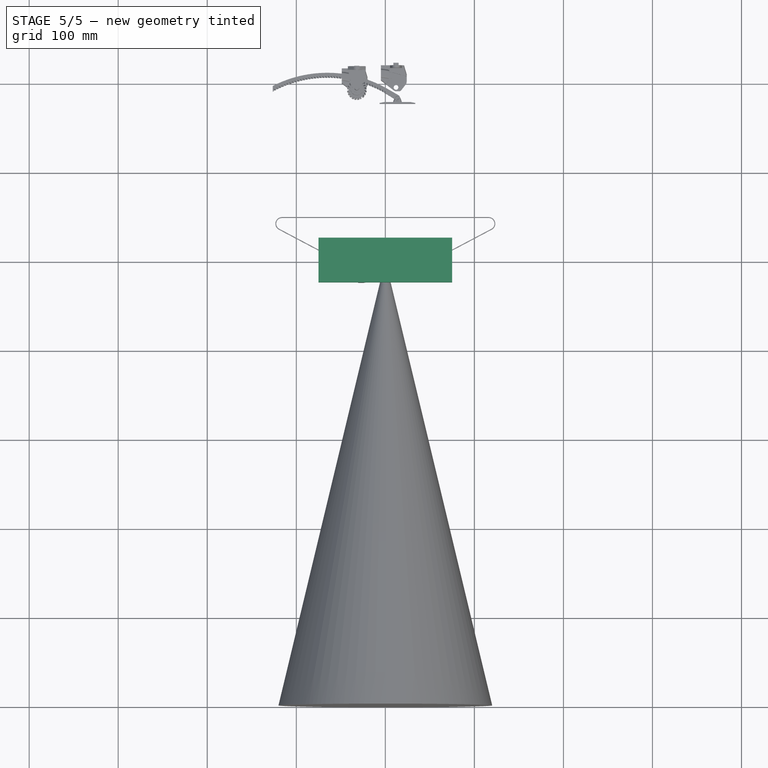
[diagram: stage 5 of 5 — top view after this stage's code; geometry added in this stage tinted green]
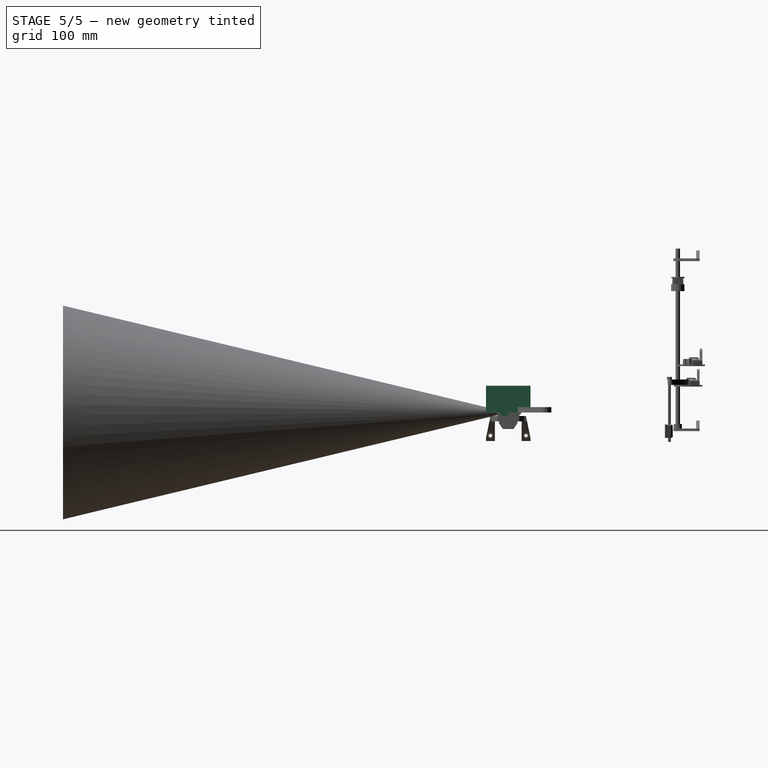
[diagram: stage 5 of 5 — right view after this stage's code; geometry added in this stage tinted green]
FEATURE [App::LinkElement] Link_i0
  LinkedObject = -> Body093
  _LinkOwner = 142
FEATURE [App::LinkElement] Link_i1
  LinkPlacement = pos=(0,50,0) rot=(0,0,1;0rad)
  LinkedObject = -> Body093
  Placement = pos=(0,50,0) rot=(0,0,1;0rad)
  _LinkOwner = 142
FEATURE [App::LinkElement] Link_i2
  LinkPlacement = pos=(0,100,0) rot=(0,0,1;0rad)
  LinkedObject = -> Body093
  Placement = pos=(0,100,0) rot=(0,0,1;0rad)
  _LinkOwner = 142
FEATURE [App::LinkElement] Link_i3
  LinkPlacement = pos=(0,150,0) rot=(0,0,1;0rad)
  LinkedObject = -> Body093
  Placement = pos=(0,150,0) rot=(0,0,1;0rad)
  _LinkOwner = 142
FEATURE [App::Link] Link  label="Caisse de noisette001"
  ElementCount = 4
  ElementList = -> [Link_i0,Link_i1,Link_i2,Link_i3]
  LinkPlacement = pos=(55,0,-35) rot=(0,0,1;0rad)
  LinkedObject = -> Body093
  Placement = pos=(55,0,-35) rot=(0,0,1;0rad)
FEATURE [App::Point] Origin554  label="Origine188"
  Role = Origin
FEATURE [Sketcher::SketchObject] Sketch227
  ArcFitTolerance = 1e-06
  AttachmentSupport = -> [XY_Plane289]
  ExternalTypes = [0]
  FullyConstrained = true
  MakeInternals = false
  MapMode = 5
  _ExternalGeoVersion = 0
  sketch-geometry (4):
    g0: LineSegment StartX=-75 StartY=25 StartZ=0 EndX=-75 EndY=-25 EndZ=0
    g1: LineSegment StartX=-75 StartY=-25 StartZ=0 EndX=75 EndY=-25 EndZ=0
    g2: LineSegment StartX=75 StartY=-25 StartZ=0 EndX=75 EndY=25 EndZ=0
    g3: LineSegment StartX=75 StartY=25 StartZ=0 EndX=-75 EndY=25 EndZ=0
  constraints (11):
    c: Coincident(g0,g1)
    c: Coincident(g1,g2)
    c: Coincident(g2,g3)
    c: Coincident(g3,g0)
    c: Vertical(g0)
    c: Vertical(g2)
    c: Horizontal(g1)
    c: Horizontal(g3)
    c: Symmetric(g0,g1,g-1)
    c: DistanceX(g3,g3) = 150
    c: DistanceY(g2,g2) = 50
FEATURE [PartDesign::Pad] Pad114
  Direction = (0,0,1)
  Length = 30
  Length2 = 10
  Profile = -> Sketch227
  ReferenceAxis = -> Sketch227 [N_Axis]
  SideType = 0
  Suppressed = false
  Type = 0
  Type2 = 0
FEATURE [Sketcher::SketchObject] Sketch006
  ArcFitTolerance = 0
  AttachmentOffset = pos=(0,0,12) rot=(0,0,1;0rad)
  AttachmentSupport = -> [YZ_Plane007]
  ExternalTypes = [0]
  FullyConstrained = true
  MakeInternals = false
  MapMode = 5
  Placement = pos=(12,0,0) rot=(0.57735,0.57735,0.57735;2.0944rad)
  _ExternalGeoVersion = 0
  expr: .AttachmentOffset.Base.z = <<Pad140>>.Length
  sketch-geometry (2):
    g0: ArcOfCircle CenterX=0 CenterY=0 CenterZ=0 NormalX=0 NormalY=0 NormalZ=1 AngleXU=0 Radius=8.5 StartAngle=1.5708 EndAngle=4.71239
    g1: LineSegment StartX=2.09785e-11 StartY=8.5 StartZ=0 EndX=2.09785e-11 EndY=-8.5 EndZ=0
  constraints (6):
    c: Coincident(g0,g-1)
    c: Vertical(g1)
    c: Coincident(g0,g1)
    c: Coincident(g0,g1)
    c: PointOnObject(g0,g-2)
    c: Diameter(g0) = 17
FEATURE [PartDesign::Pad] Pad141
  BaseFeature = -> Pad140
  Direction = (1,0,0)
  Length = 5
  Length2 = 10
  Placement = pos=(0,0,0) rot=(1,1,1;2.0944rad)
  Profile = -> Sketch006
  ReferenceAxis = -> Sketch006 [N_Axis]
  SideType = 0
  Suppressed = false
  Type = 0
  Type2 = 0
FEATURE [Sketcher::SketchObject] Sketch007
  ArcFitTolerance = 0
  AttachmentSupport = -> [XZ_Plane007]
  ExternalTypes = [0]
  FullyConstrained = true
  MakeInternals = false
  MapMode = 5
  Placement = pos=(0,0,0) rot=(0,0.707107,0.707107;3.14159rad)
  _ExternalGeoVersion = 0
  sketch-geometry (11):
    g0: LineSegment StartX=-8 StartY=4.4 StartZ=0 EndX=0 EndY=4.4 EndZ=0
    g1: LineSegment StartX=0 StartY=4.4 StartZ=0 EndX=0 EndY=-8.4 EndZ=0
    g2: LineSegment StartX=0 StartY=-8.4 StartZ=0 EndX=-8 EndY=-8.4 EndZ=0
    g3: LineSegment StartX=-12.65 StartY=-3.75 StartZ=0 EndX=-12.65 EndY=-0.25 EndZ=0
    g4: GeomPoint X=-12.65 Y=-2 Z=0
    g5: ArcOfCircle [constr] CenterX=-8 CenterY=-0.25 CenterZ=0 NormalX=0 NormalY=0 NormalZ=1 AngleXU=0 Radius=4.65 StartAngle=1.5708 EndAngle=3.14159
    g6: GeomPoint [constr] X=-12.65 Y=4.4 Z=0
    g7: LineSegment StartX=-8 StartY=4.4 StartZ=0 EndX=-12.65 EndY=-0.25 EndZ=0
    g8: ArcOfCircle [constr] CenterX=-8 CenterY=-3.75 CenterZ=0 NormalX=0 NormalY=0 NormalZ=1 AngleXU=0 Radius=4.65 StartAngle=3.14159 EndAngle=4.71239
    g9: GeomPoint [constr] X=-12.65 Y=-8.4 Z=0
    g10: LineSegment StartX=-12.65 StartY=-3.75 StartZ=0 EndX=-8 EndY=-8.4 EndZ=0
  constraints (25):
    c: Coincident(g0,g1)
    c: Coincident(g1,g2)
    c: Horizontal(g0)
    c: Horizontal(g2)
    c: Vertical(g1)
    c: Vertical(g3)
    c: DistanceX(g6,g0) = 12.65
    c: Symmetric(g9,g6,g4)
    c: DistanceY(g4,g-1) = 2
    c: DistanceY(g1,g1) = 12.8
    c: PointOnObject(g0,g-2)
    c: PointOnObject(g6,g0)
    c: PointOnObject(g6,g3)
    c: Tangent(g0,g5) = 1.5708
    c: Tangent(g3,g5) = 1.5708
    c: Coincident(g7,g0)
    c: Coincident(g7,g3)
    c: PointOnObject(g9,g3)
    c: PointOnObject(g9,g2)
    c: Tangent(g3,g8) = 1.5708
    c: Tangent(g2,g8) = 1.5708
    c: Coincident(g10,g3)
    c: Coincident(g10,g2)
    c: Equal(g10,g7)
    c: DistanceY(g3,g3) = 3.5
FEATURE [PartDesign::Pocket] Pocket001  label="logement_pcb"
  BaseFeature = -> Pad141
  Direction = (0,-1,2e-16)
  Length = 1.3
  Length2 = 5
  Placement = pos=(0,0,0) rot=(1,1,1;2.0944rad)
  Profile = -> Sketch007
  ReferenceAxis = -> Sketch007 [N_Axis]
  SideType = 0
  Suppressed = false
  Type = 0
  Type2 = 0
FEATURE [Sketcher::SketchObject] Sketch008
  ArcFitTolerance = 0
  AttachmentSupport = -> [XZ_Plane007]
  ExternalTypes = [0]
  FullyConstrained = true
  MakeInternals = false
  MapMode = 5
  Placement = pos=(0,0,0) rot=(1,0,0;1.5708rad)
  _ExternalGeoVersion = 0
  sketch-geometry (4):
    g0: LineSegment StartX=-2.5 StartY=1.5 StartZ=0 EndX=-2.5 EndY=-1.5 EndZ=0
    g1: LineSegment StartX=-2.5 StartY=-1.5 StartZ=0 EndX=2.5 EndY=-1.5 EndZ=0
    g2: LineSegment StartX=2.5 StartY=-1.5 StartZ=0 EndX=2.5 EndY=1.5 EndZ=0
    g3: LineSegment StartX=2.5 StartY=1.5 StartZ=0 EndX=-2.5 EndY=1.5 EndZ=0
  constraints (11):
    c: Coincident(g0,g1)
    c: Coincident(g1,g2)
    c: Coincident(g2,g3)
    c: Coincident(g3,g0)
    c: Vertical(g0)
    c: Vertical(g2)
    c: Horizontal(g1)
    c: Horizontal(g3)
    c: Symmetric(g2,g0,g-1)
    c: DistanceX(g3,g3) = 5
    c: DistanceY(g0,g0) = 3
FEATURE [PartDesign::Pocket] Pocket002
  BaseFeature = -> Pocket001
  Direction = (0,1,-2e-16)
  Length = 5
  Length2 = 5
  Placement = pos=(0,0,0) rot=(1,1,1;2.0944rad)
  Profile = -> Sketch008
  ReferenceAxis = -> Sketch008 [N_Axis]
  Reversed = true
  SideType = 0
  Suppressed = false
  Type = 1
  Type2 = 0
FEATURE [Sketcher::SketchObject] Sketch010
  ArcFitTolerance = 0
  AttachmentSupport = -> [YZ_Plane007]
  ExternalTypes = [0]
  FullyConstrained = true
  MakeInternals = false
  MapMode = 5
  Placement = pos=(0,0,0) rot=(0.57735,-0.57735,-0.57735;2.0944rad)
  _ExternalGeoVersion = 0
  sketch-geometry (2):
    g0: ArcOfCircle CenterX=1 CenterY=-5.75 CenterZ=0 NormalX=0 NormalY=0 NormalZ=1 AngleXU=0 Radius=2.25 StartAngle=4.71239 EndAngle=7.85398
    g1: LineSegment StartX=1 StartY=-3.5 StartZ=0 EndX=1 EndY=-8 EndZ=0
  constraints (7):
    c: Coincident(g1,g0)
    c: Coincident(g1,g0)
    c: Vertical(g1)
    c: Diameter(g0) = 4.5
    c: Vertical(g0,g0)
    c: DistanceX(g-1,g0) = 1
    c: DistanceY(g0,g-1) = 5.75
FEATURE [PartDesign::Pocket] Pocket004
  BaseFeature = -> Pocket002
  Direction = (1,0,0)
  Length = 8
  Length2 = 5
  Placement = pos=(0,0,0) rot=(1,1,1;2.0944rad)
  Profile = -> Sketch010
  ReferenceAxis = -> Sketch010 [N_Axis]
  SideType = 0
  Suppressed = false
  Type = 0
  Type2 = 0
FEATURE [Sketcher::SketchObject] Sketch012
  ArcFitTolerance = 0
  AttachmentSupport = -> [YZ_Plane010]
  ExternalTypes = [0]
  FullyConstrained = true
  MakeInternals = false
  MapMode = 5
  Placement = pos=(0,0,0) rot=(0.57735,0.57735,0.57735;2.0944rad)
  _ExternalGeoVersion = 0
  sketch-geometry (2):
    g0: Circle CenterX=0 CenterY=0 CenterZ=0 NormalX=0 NormalY=0 NormalZ=1 AngleXU=0 Radius=8.7
    g1: Circle CenterX=0 CenterY=0 CenterZ=0 NormalX=0 NormalY=0 NormalZ=1 AngleXU=0 Radius=9.85
  constraints (4):
    c: Coincident(g0,g-1)
    c: Coincident(g1,g0)
    c: Diameter(g0) = 17.4
    c: Diameter(g1) = 19.7
FEATURE [PartDesign::Pad] Pad142
  Direction = (1,0,0)
  Length = 5
  Length2 = 10
  Placement = pos=(0,0,0) rot=(1,1,1;2.0944rad)
  Profile = -> Sketch012
  ReferenceAxis = -> Sketch012 [N_Axis]
  SideType = 0
  Suppressed = false
  Type = 0
  Type2 = 0
FEATURE [PartDesign::Fillet] Fillet004
  Base = -> Pad142 [Edge3]
  BaseFeature = -> Pad142
  Placement = pos=(0,0,0) rot=(1,1,1;2.0944rad)
  Radius = 0.5
  SupportTransform = false
  Suppressed = false
  UseAllEdges = false
FEATURE [PartDesign::Mirrored] Mirrored006
  BaseFeature = -> Pocket011
  MirrorPlane = -> YZ_Plane011
  Originals = -> [Pocket011]
  Placement = pos=(0,0,0) rot=(1,1,1;2.0944rad)
  Suppressed = false
  TransformMode = 0
FEATURE [PartDesign::MultiTransform] MultiTransform006
  BaseFeature = -> Pocket010
  Originals = -> [Pocket010]
  Placement = pos=(0,0,0) rot=(1,0,0;1.5708rad)
  Suppressed = false
  TransformMode = 0
  Transformations = -> [PolarPattern001,Mirrored005]
FEATURE [PartDesign::Fillet] Fillet006
  Base = -> MultiTransform006 [Edge314,Edge315]
  BaseFeature = -> MultiTransform006
  Placement = pos=(0,0,0) rot=(1,0,0;1.5708rad)
  Radius = 1.9
  SupportTransform = false
  Suppressed = false
  UseAllEdges = false
FEATURE [PartDesign::Body] Body005  label="arriere006"
  AllowCompound = false
  Group = -> [Sketch011,Revolution003,Sketch017,Pocket007,Sketch024,Pocket041,MultiTransform003,Mirrored001,Sketch021,Pocket009,Sketch022,Pocket010,MultiTransform006,PolarPattern001,Mirrored005,Fillet006]
  Origin = -> Origin012
  Tip = -> Fillet006
FEATURE [Sketcher::SketchObject] Sketch025
  ArcFitTolerance = 1e-06
  AttachmentSupport = -> [Pocket004]
  ExternalTypes = [0]
  FullyConstrained = true
  MakeInternals = false
  MapMode = 5
  Placement = pos=(0,-1.3,1.3e-15) rot=(0.57735,0.57735,0.57735;4.18879rad)
  _ExternalGeoVersion = 1
  sketch-geometry (1):
    g0: Circle CenterX=-2 CenterY=10 CenterZ=0 NormalX=0 NormalY=0 NormalZ=1 AngleXU=0 Radius=1.375
  constraints (3):
    c: DistanceY(g-1,g0) = 10
    c: DistanceX(g0,g-1) = 2
    c: Diameter(g0) = 2.75
FEATURE [PartDesign::Pad] Pad139
  BaseFeature = -> Pocket004
  Direction = (0,1,0)
  Length = 1.3
  Length2 = 10
  Placement = pos=(0,0,0) rot=(1,1,1;2.0944rad)
  Profile = -> Sketch025
  ReferenceAxis = -> Sketch025 [N_Axis]
  SideType = 0
  Suppressed = false
  Type = 0
  Type2 = 0
FEATURE [PartDesign::MultiTransform] MultiTransform002
  BaseFeature = -> Pad139
  Originals = -> [Pad140,Pad141,Pocket001,Pocket002,Pocket004,Pad139]
  Placement = pos=(0,0,0) rot=(1,1,1;2.0944rad)
  Refine = true
  Suppressed = false
  TransformMode = 0
  Transformations = -> [Mirrored018]
FEATURE [PartDesign::Groove] Groove
  Angle = 360
  Angle2 = 60
  Axis = (0,1,0)
  Base = (0,-2,0)
  BaseFeature = -> MultiTransform002
  Placement = pos=(0,0,0) rot=(1,1,1;2.0944rad)
  Profile = -> Sketch019
  ReferenceAxis = -> Sketch019 [V_Axis]
  Reversed = true
  Suppressed = false
  Type = 0
FEATURE [PartDesign::Fillet] Fillet005
  Base = -> Groove [Edge25]
  BaseFeature = -> Groove
  Placement = pos=(0,0,0) rot=(1,1,1;2.0944rad)
  Radius = 4
  SupportTransform = false
  Suppressed = false
  UseAllEdges = false
FEATURE [PartDesign::Pocket] Pocket008
  BaseFeature = -> Fillet005
  Direction = (-1,0,0)
  Length = 0.3
  Length2 = 5
  Placement = pos=(0,0,0) rot=(1,1,1;2.0944rad)
  Profile = -> Sketch020
  ReferenceAxis = -> Sketch020 [N_Axis]
  Reversed = true
  SideType = 0
  Suppressed = false
  Type = 0
  Type2 = 0
FEATURE [PartDesign::MultiTransform] MultiTransform005
  BaseFeature = -> Pocket008
  Originals = -> [Pocket008]
  Placement = pos=(0,0,0) rot=(1,1,1;2.0944rad)
  Suppressed = false
  TransformMode = 0
  Transformations = -> [PolarPattern004,Mirrored004]
FEATURE [PartDesign::Body] Body116  label="avant006"
  AllowCompound = false
  Group = -> [Sketch005,Pad140,Sketch006,Pad141,Sketch007,Pocket001,Sketch008,Pocket002,Sketch010,Pocket004,Sketch025,Pad139,MultiTransform002,Mirrored018,Sketch019,Groove,Fillet005,Sketch020,Pocket008,MultiTransform005,PolarPattern004,Mirrored004]
  Origin = -> Origin010
  Tip = -> MultiTransform005
FEATURE [App::Part] Part004  label="partie_mobile006"
  Group = -> [Body116,Body005,Body006,Link002,Line,Extrude]
  Origin = -> Origin015
FEATURE [App::Part] Part003  label="support_2_axes_VL53L1XV2"
  Group = -> [Body007,Part004,Link039]
  Origin = -> Origin011
  Placement = pos=(0,-4e-16,-2) rot=(0,1,0;3.14159rad)
FEATURE [Sketcher::SketchObject] Sketch037
  ArcFitTolerance = 1e-06
  AttachmentSupport = -> [Origin026]
  ExternalTypes = [0]
  FullyConstrained = true
  MakeInternals = false
  MapMode = 5
  _ExternalGeoVersion = 1
FEATURE [Sketcher::SketchObject] Sketch038
  ArcFitTolerance = 1e-06
  AttachmentSupport = -> [Origin026]
  ExternalTypes = [0]
  FullyConstrained = true
  MakeInternals = false
  MapMode = 5
  Placement = pos=(0,0,0) rot=(1,0,0;1.5708rad)
  _ExternalGeoVersion = 1
  expr: Constraints[12] = 25 / 2
  expr: Constraints[13] = 12.6 / 2
  expr: Constraints[15] = 15.7 / 2
  sketch-geometry (8):
    g0: LineSegment StartX=0 StartY=6.3 StartZ=0 EndX=0 EndY=0 EndZ=0
    g1: LineSegment StartX=0 StartY=0 StartZ=0 EndX=-8.5 EndY=0 EndZ=0
    g2: ArcOfCircle CenterX=-10 CenterY=-2e-16 CenterZ=0 NormalX=0 NormalY=0 NormalZ=1 AngleXU=0 Radius=2.5 StartAngle=1.5708 EndAngle=3.14159
    g3: LineSegment StartX=-10 StartY=2.5 StartZ=0 EndX=-7.85 EndY=2.5 EndZ=0
    g4: LineSegment StartX=-7.85 StartY=2.5 StartZ=0 EndX=-7.85 EndY=6.3 EndZ=0
    g5: LineSegment StartX=-7.85 StartY=6.3 StartZ=0 EndX=0 EndY=6.3 EndZ=0
    g6: ArcOfCircle CenterX=-10 CenterY=-2e-16 CenterZ=0 NormalX=0 NormalY=0 NormalZ=1 AngleXU=0 Radius=1.5 StartAngle=1e-16 EndAngle=3.14159
    g7: LineSegment StartX=-11.5 StartY=1e-16 StartZ=0 EndX=-12.5 EndY=1e-16 EndZ=0
  constraints (22):
    c: PointOnObject(g0,g-2)
    c: Coincident(g0,g-1)
    c: Coincident(g0,g1)
    c: PointOnObject(g7,g-1)
    c: Perpendicular(g7,g2) = 1.5708
    c: Tangent(g2,g3) = 1.5708
    c: Coincident(g3,g4)
    c: Vertical(g4)
    c: Coincident(g4,g5)
    c: Coincident(g5,g0)
    c: Horizontal(g5)
    c: DistanceX(g2,g-1) = 10
    c: DistanceX(g7,g1) = 12.5
    c: DistanceY(g0,g0) = 6.3
    c: Horizontal(g3)
    c: DistanceX(g5,g5) = 7.85
    c: Coincident(g6,g2)
    c: Coincident(g6,g7)
    c: Coincident(g6,g1)
    c: Horizontal(g7)
    c: Horizontal(g1)
    c: Radius(g6) = 1.5
FEATURE [PartDesign::Mirrored] Mirror
  MirrorPlane = -> Sketch038 [V_Axis]
  Suppressed = false
  TransformMode = 0
FEATURE [PartDesign::Mirrored] Mirror001
  MirrorPlane = -> Sketch038 [H_Axis]
  Suppressed = false
  TransformMode = 0
FEATURE [PartDesign::Pad] Pad007
  Direction = (0,-1,2e-16)
  Length = 1.6
  Length2 = 10
  Profile = -> Sketch038
  ReferenceAxis = -> Sketch038 [N_Axis]
  SideType = 2
  Suppressed = false
  Type = 0
  Type2 = 0
FEATURE [PartDesign::MultiTransform] MultiTransform007
  BaseFeature = -> Pad007
  Originals = -> [Pad007]
  Suppressed = false
  TransformMode = 0
  Transformations = -> [Mirror,Mirror001]
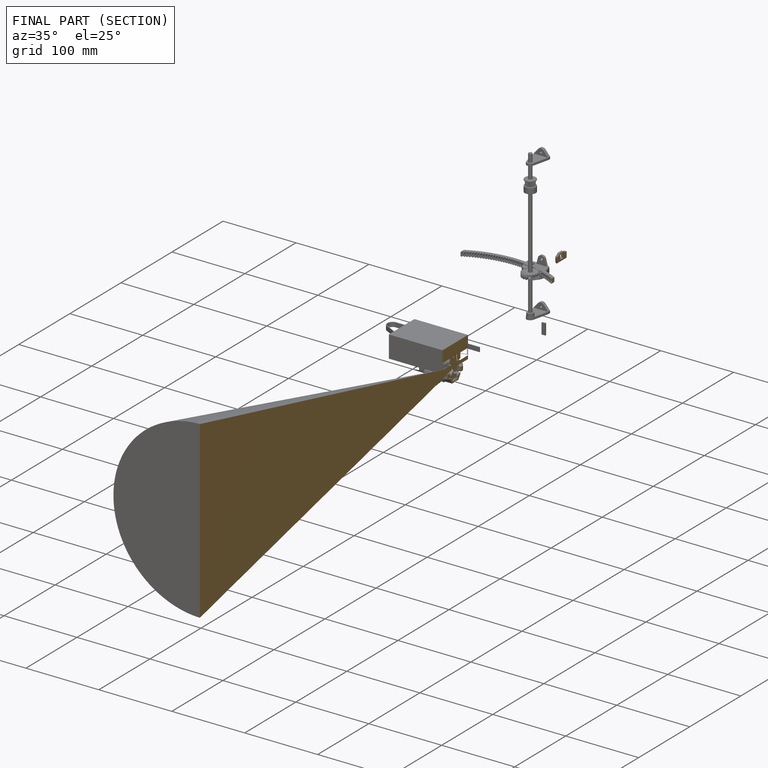
[diagram: finished part — half-section view (interior)]
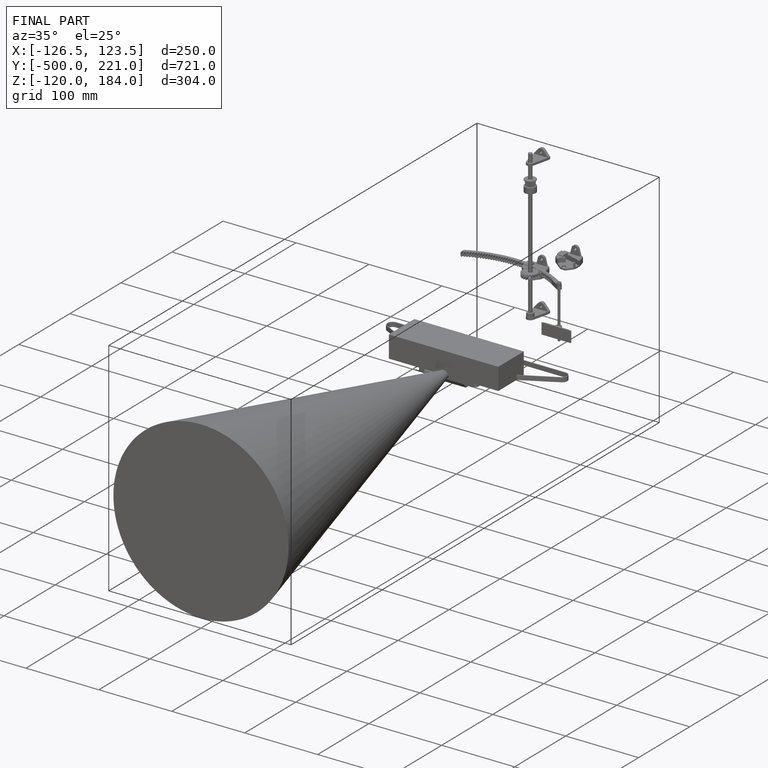
[diagram: finished part — iso view with bounding-box wireframe]
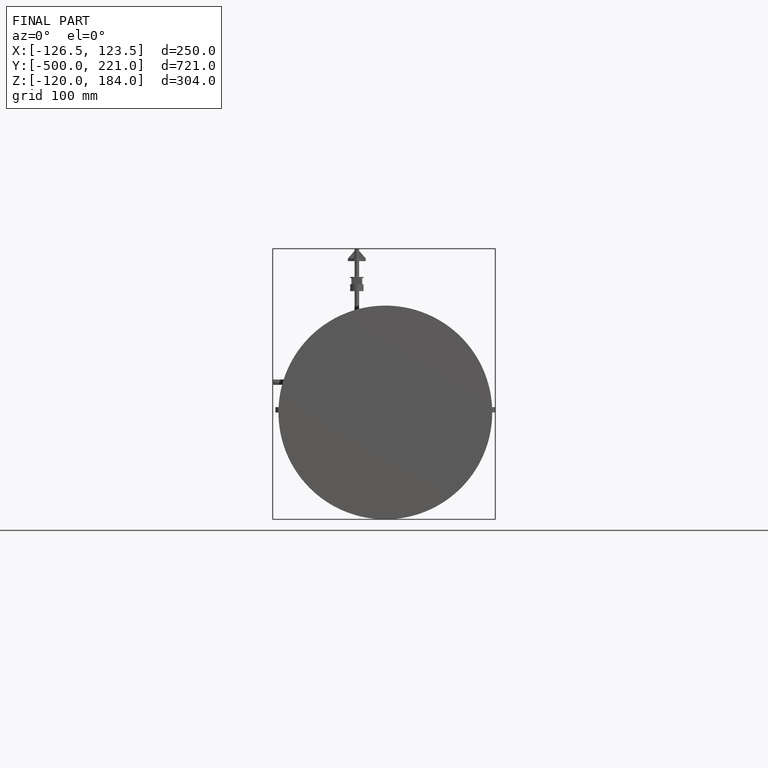
[diagram: finished part — front view with bounding-box wireframe]
